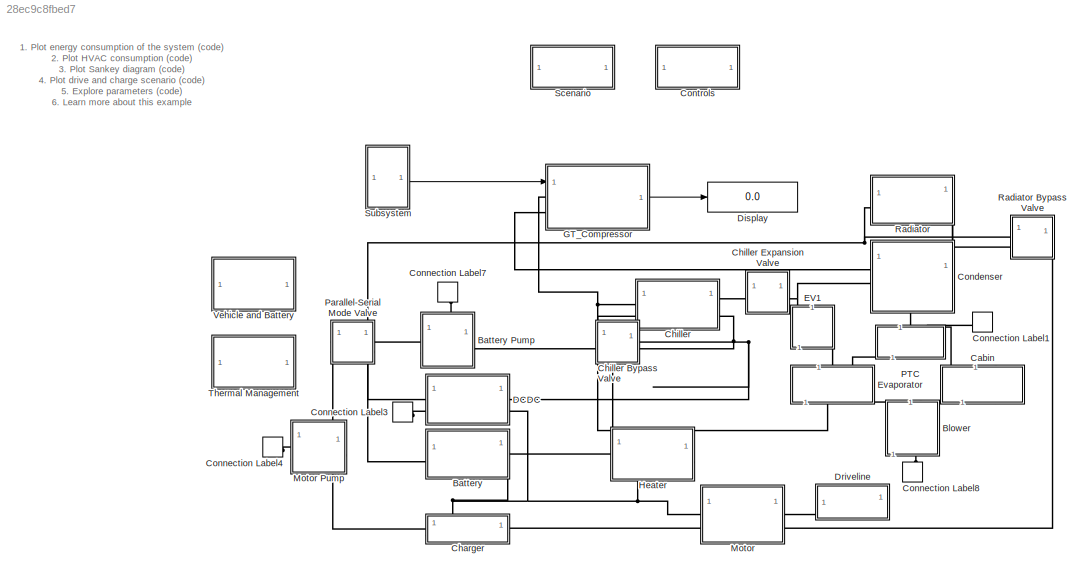
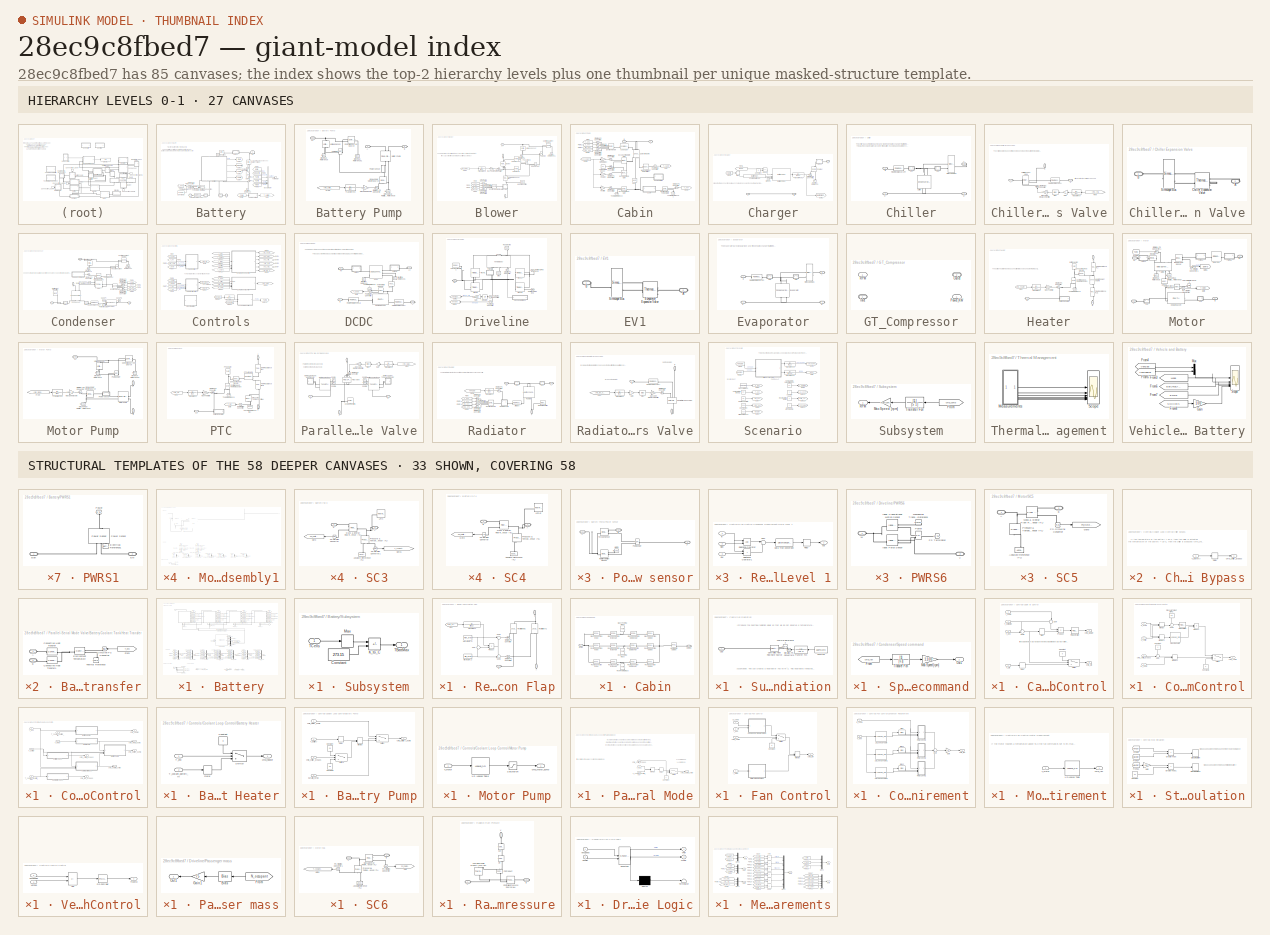
[diagram: thumbnail index - top-2 hierarchy levels (27 canvases) + 33 structural-template representatives of the remaining 58 canvases]
MODEL slx_28ec9c8fbed7
KIND model
CONFIG AbsTol = 1e-3
CONFIG EnableMultiTasking = off
CONFIG FixedStep = auto
CONFIG MaxStep = 5
CONFIG MinStep = auto
CONFIG RelTol = 1e-3
CONFIG SampleTimeConstraint = Unconstrained
CONFIG SolverName = daessc
CONFIG StartTime = 0.0
CONFIG StopTime = Inf
WORKSPACE source: external: MATLAB File  (data not in archive)
BLOCK [SubSystem] Battery
  NameLocation = top
  PortSchema = {"entries":[{"content":{"sides":[{"content":{"connectorIds":["LConn1"]},"type":"ConnectorPlacement.EquallySpacedRectSide","uuid":"d0257152-2060-4b54-a9f0-7a8eb6934377"},{"content":{"connectorIds":["RConn1"],"side":"RIGHT"},"type":"ConnectorPlacement.EquallySpacedRectSide","uuid":"d9958794-9262-4b97-905c-a420312c67f4"},{"content":{"side":"TOP"},"type":"ConnectorPlacement.EquallySpacedRectSide","uui...<+379ch>
  VariantControl = Lump
BLOCK [SubSystem] Battery Pump
  PortSchema = {"entries":[{"content":{"sides":[{"content":{"connectorIds":["LConn1"]},"type":"ConnectorPlacement.EquallySpacedRectSide","uuid":"6f564afe-534c-4fb7-ab3d-e7a67ca04849"},{"content":{"connectorIds":["RConn1"],"side":"RIGHT"},"type":"ConnectorPlacement.EquallySpacedRectSide","uuid":"159a21ca-d93c-4f03-9d58-49b012672b20"},{"content":{"connectorIds":["LConn2"],"side":"TOP"},"type":"ConnectorPlacement.E...<+253ch>
  Tag = PublishSubsystem
BLOCK [PMIOPort] Battery Pump/A
  Side = Left
BLOCK [PMIOPort] Battery Pump/B
  Port = 3
  Side = Right
BLOCK [Reference] Battery Pump/Battery Pump  REF=SimscapeFluids_lib/Thermal Liquid/Pumps & Motors/Fixed-Displacement
Pump (TL)
  NameLocation = right
  SourceBlock = SimscapeFluids_lib/Thermal Liquid/Pumps & Motors/Fixed-Displacement\nPump (TL)
  SourceType = Fixed-Displacement\nPump (TL)
BLOCK [Reference] Battery Pump/Controlled Current Source  REF=fl_lib/Electrical/Electrical Sources/Controlled Current
Source
  SourceBlock = fl_lib/Electrical/Electrical Sources/Controlled Current\nSource
  SourceType = Controlled Current\nSource
BLOCK [Reference] Battery Pump/Electrical Reference  REF=fl_lib/Electrical/Electrical Elements/Electrical Reference
  NameLocation = right
  SourceBlock = fl_lib/Electrical/Electrical Elements/Electrical Reference
  SourceType = Electrical Reference
BLOCK [Reference] Battery Pump/Electrical Reference1  REF=fl_lib/Electrical/Electrical Elements/Electrical Reference
  NameLocation = right
  SourceBlock = fl_lib/Electrical/Electrical Elements/Electrical Reference
  SourceType = Electrical Reference
BLOCK [From] Battery Pump/From
  GotoTag = cmd_battery_pump
  TagVisibility = global
BLOCK [Reference] Battery Pump/Ideal Angular Velocity Source  REF=fl_lib/Mechanical/Mechanical Sources/Ideal Angular
Velocity Source
  NameLocation = left
  SourceBlock = fl_lib/Mechanical/Mechanical Sources/Ideal Angular\nVelocity Source
  SourceType = Ideal Angular\nVelocity Source
BLOCK [PMIOPort] Battery Pump/LV
  Port = 2
  Side = Left
BLOCK [Gain] Battery Pump/Max Speed [rpm]
  Gain = pump_speed_max
BLOCK [Reference] Battery Pump/Mechanical Rotational Reference  REF=fl_lib/Mechanical/Rotational Elements/Mechanical
Rotational Reference
  NameLocation = right
  SourceBlock = fl_lib/Mechanical/Rotational Elements/Mechanical\nRotational Reference
  SourceType = Mechanical\nRotational Reference
BLOCK [Reference] Battery Pump/PS Divide  REF=fl_lib/Physical Signals/Functions/PS Divide
  SourceBlock = fl_lib/Physical Signals/Functions/PS Divide
  SourceType = PS Divide
BLOCK [SubSystem] Battery Pump/Power sensor
  NameLocation = left
  PortSchema = {"entries":[{"content":{"sides":[{"content":{"connectorIds":["LConn1"]},"type":"ConnectorPlacement.EquallySpacedRectSide","uuid":"14aacb84-4d2c-4fe3-9667-966fc9affdc2"},{"content":{"connectorIds":["RConn1"],"side":"RIGHT"},"type":"ConnectorPlacement.EquallySpacedRectSide","uuid":"5f04cc75-bf75-44ff-ad13-d2b18990cf19"},{"content":{"connectorIds":["LConn2"],"side":"TOP"},"type":"ConnectorPlacement.E...<+253ch>  <repeated x3 — deduplicated; at blocks: Power sensor>
BLOCK [PMIOPort] Battery Pump/Power sensor/A
  Side = Left
BLOCK [PMIOPort] Battery Pump/Power sensor/B
  Port = 3
  Side = Right
BLOCK [Reference] Battery Pump/Power sensor/MRR3  REF=fl_lib/Mechanical/Rotational Elements/Mechanical
Rotational Reference
  NameLocation = top
  SourceBlock = fl_lib/Mechanical/Rotational Elements/Mechanical\nRotational Reference
  SourceType = Mechanical\nRotational Reference
BLOCK [PMIOPort] Battery Pump/Power sensor/P
  NameLocation = top
  Port = 2
  Side = Left
BLOCK [Reference] Battery Pump/Power sensor/Pump power  REF=fl_lib/Physical Signals/Functions/PS Product
  SourceBlock = fl_lib/Physical Signals/Functions/PS Product
  SourceType = PS Product
BLOCK [Reference] Battery Pump/Power sensor/Rotational Motion Sensor  REF=fl_lib/Mechanical/Mechanical Sensors/Ideal Rotational
Motion Sensor
  SourceBlock = fl_lib/Mechanical/Mechanical Sensors/Ideal Rotational\nMotion Sensor
  SourceType = Ideal Rotational\nMotion Sensor
BLOCK [Reference] Battery Pump/Power sensor/Torque Sensor  REF=fl_lib/Mechanical/Mechanical Sensors/Ideal Torque Sensor
  SourceBlock = fl_lib/Mechanical/Mechanical Sensors/Ideal Torque Sensor
  SourceType = Ideal Torque Sensor
BLOCK [Reference] Battery Pump/Simulink-PS Converter  REF=nesl_utility/Simulink-PS
Converter
  SourceBlock = nesl_utility/Simulink-PS\nConverter
  SourceType = Simulink-PS\nConverter
BLOCK [TransferFcn] Battery Pump/Transfer Fcn
  Denominator = [5 1]
BLOCK [Reference] Battery Pump/Voltage Sensor  REF=fl_lib/Electrical/Electrical Sensors/Voltage Sensor
  NameLocation = left
  SourceBlock = fl_lib/Electrical/Electrical Sensors/Voltage Sensor
  SourceType = Voltage Sensor
BLOCK [PMIOPort] Battery/A
  Port = 2
  Side = Right
BLOCK [PMIOPort] Battery/B
  Side = Left
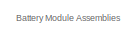
[diagram: Battery/Battery - part 1/6, top left region]
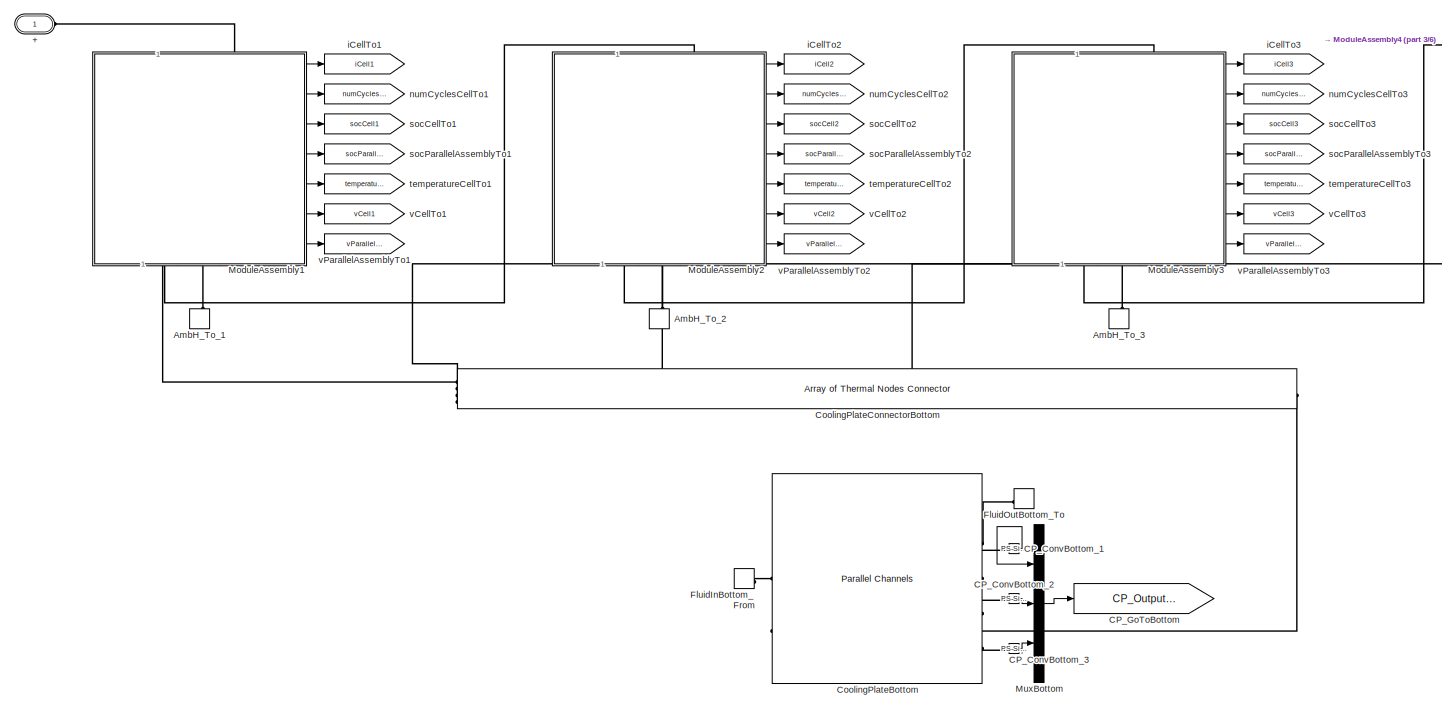
[diagram: Battery/Battery - part 2/6, central region]
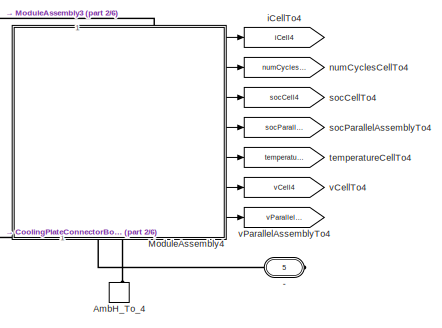
[diagram: Battery/Battery - part 3/6, top right region]
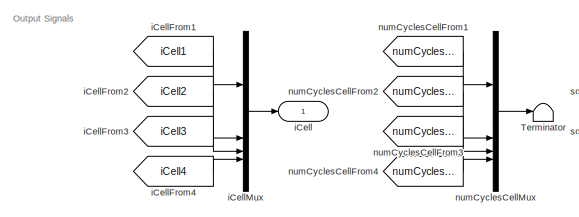
[diagram: Battery/Battery - part 4/6, bottom left region]
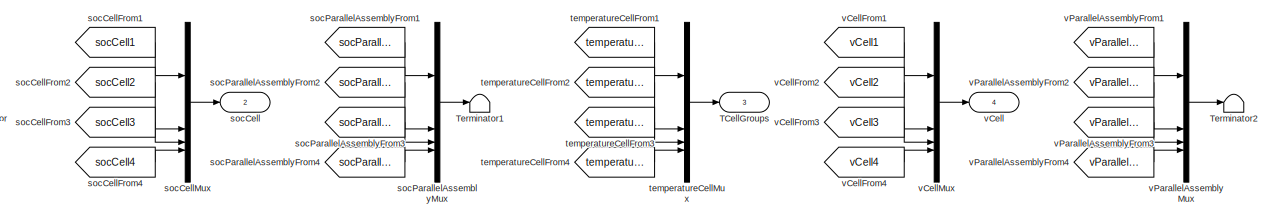
[diagram: Battery/Battery - part 5/6, bottom center region]
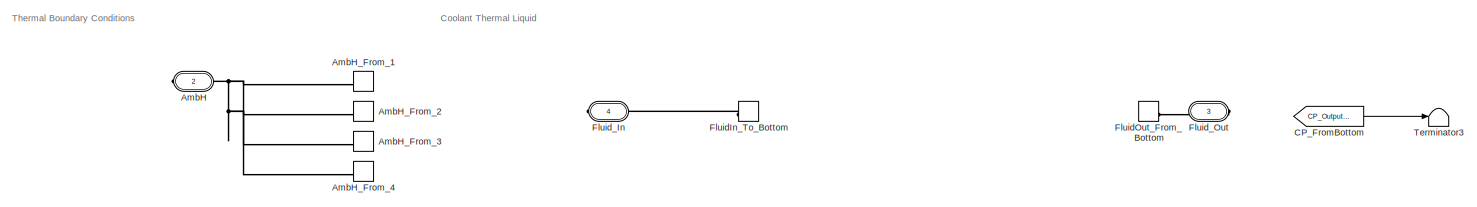
[diagram: Battery/Battery - part 6/6, bottom center region]
BLOCK [SubSystem] Battery/Battery
  CopyFcn = battery_builder_rtmsupport('copyfcn',gcbh);
  LoadFcn = battery_builder_rtmsupport('loadfcn',gcbh);
  PortSchema = {"entries":[{"content":{"sides":[{"content":{"connectorIds":["LConn1"]},"type":"ConnectorPlacement.EquallySpacedRectSide","uuid":"8a0155c1-3cd1-4aec-9003-10a53aa2331a"},{"content":{"connectorIds":["RConn1","RConn2","RConn3","RConn4"],"side":"RIGHT"},"type":"ConnectorPlacement.EquallySpacedRectSide","uuid":"2983d915-2e05-41ac-b04b-c24aafae32ed"},{"content":{"side":"TOP"},"type":"ConnectorPlacement....<+425ch>
  PreCopyFcn = battery_builder_rtmsupport('precopyfcn',gcbh);
  PreDeleteFcn = battery_builder_rtmsupport('predeletefcn',gcbh);
BLOCK [Reference] Battery/Battery Convection Outside  REF=fl_lib/Thermal/Thermal Elements/Convective Heat
Transfer
  SourceBlock = fl_lib/Thermal/Thermal Elements/Convective Heat\nTransfer
  SourceType = Convective Heat\nTransfer
BLOCK [Reference] Battery/Battery current  REF=fl_lib/Electrical/Electrical Sensors/Current Sensor
  SourceBlock = fl_lib/Electrical/Electrical Sensors/Current Sensor
  SourceType = Current Sensor
BLOCK [Reference] Battery/Battery voltage  REF=fl_lib/Electrical/Electrical Sensors/Voltage Sensor
  NameLocation = right
  SourceBlock = fl_lib/Electrical/Electrical Sensors/Voltage Sensor
  SourceType = Voltage Sensor
BLOCK [PMIOPort] Battery/Battery/+
  Side = Left
BLOCK [PMIOPort] Battery/Battery/-
  Port = 5
  Side = Right
BLOCK [PMIOPort] Battery/Battery/AmbH
  ConnectionType = Connection: foundation.thermal.thermal
  Port = 2
  Side = Right
BLOCK [ConnectionLabel] Battery/Battery/AmbH_From_1
  Label = ambH_1
BLOCK [ConnectionLabel] Battery/Battery/AmbH_From_2
  Label = ambH_2
BLOCK [ConnectionLabel] Battery/Battery/AmbH_From_3
  Label = ambH_3
BLOCK [ConnectionLabel] Battery/Battery/AmbH_From_4
  Label = ambH_4
BLOCK [ConnectionLabel] Battery/Battery/AmbH_To_1
  Label = ambH_1
  NameLocation = right
BLOCK [ConnectionLabel] Battery/Battery/AmbH_To_2
  Label = ambH_2
  NameLocation = right
BLOCK [ConnectionLabel] Battery/Battery/AmbH_To_3
  Label = ambH_3
  NameLocation = right
BLOCK [ConnectionLabel] Battery/Battery/AmbH_To_4
  Label = ambH_4
  NameLocation = right
BLOCK [Reference] Battery/Battery/CP_ConvBottom_1  REF=nesl_utility/PS-Simulink
Converter
  SourceBlock = nesl_utility/PS-Simulink\nConverter
  SourceType = PS-Simulink\nConverter
BLOCK [Reference] Battery/Battery/CP_ConvBottom_2  REF=nesl_utility/PS-Simulink
Converter
  SourceBlock = nesl_utility/PS-Simulink\nConverter
  SourceType = PS-Simulink\nConverter
BLOCK [Reference] Battery/Battery/CP_ConvBottom_3  REF=nesl_utility/PS-Simulink
Converter
  SourceBlock = nesl_utility/PS-Simulink\nConverter
  SourceType = PS-Simulink\nConverter
BLOCK [From] Battery/Battery/CP_FromBottom
  GotoTag = CP_OutputsBottom
BLOCK [Goto] Battery/Battery/CP_GoToBottom
  GotoTag = CP_OutputsBottom
BLOCK [Reference] Battery/Battery/CoolingPlateBottom  REF=batt_lib/Thermal/Parallel Channels
  SourceBlock = batt_lib/Thermal/Parallel Channels
  SourceType = Parallel Channels
BLOCK [Reference] Battery/Battery/CoolingPlateConnectorBottom  REF=batt_lib/Thermal/Array of Thermal
Nodes Connector
  SourceBlock = batt_lib/Thermal/Array of Thermal\nNodes Connector
  SourceType = Array of Thermal\nNodes Connector
BLOCK [ConnectionLabel] Battery/Battery/FluidInBottom_From
  Label = FluidIn_To_Bottom
BLOCK [ConnectionLabel] Battery/Battery/FluidIn_To_Bottom
  Label = FluidIn_To_Bottom
BLOCK [ConnectionLabel] Battery/Battery/FluidOutBottom_To
  Label = FluidOut_From_Bottom
BLOCK [ConnectionLabel] Battery/Battery/FluidOut_From_Bottom
  Label = FluidOut_From_Bottom
BLOCK [PMIOPort] Battery/Battery/Fluid_In
  ConnectionType = Connection: foundation.thermal_liquid.thermal_liquid
  Port = 4
  Side = Right
BLOCK [PMIOPort] Battery/Battery/Fluid_Out
  ConnectionType = Connection: foundation.thermal_liquid.thermal_liquid
  Port = 3
  Side = Right
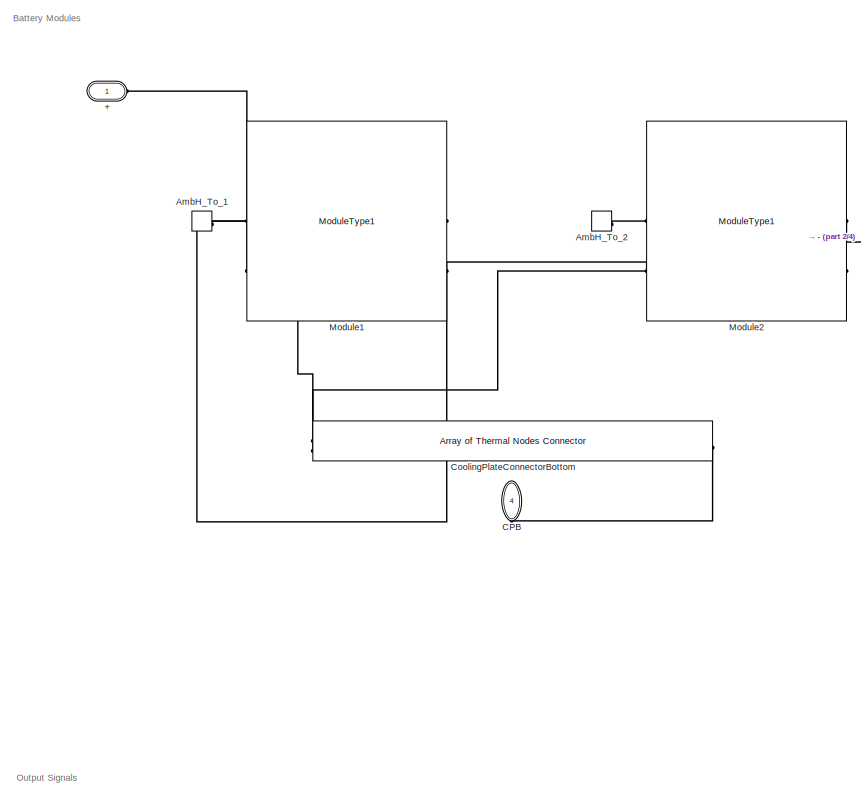
[diagram: Battery/Battery/ModuleAssembly1 - part 1/4, top left region]
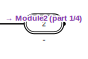
[diagram: Battery/Battery/ModuleAssembly1 - part 2/4, top right region]
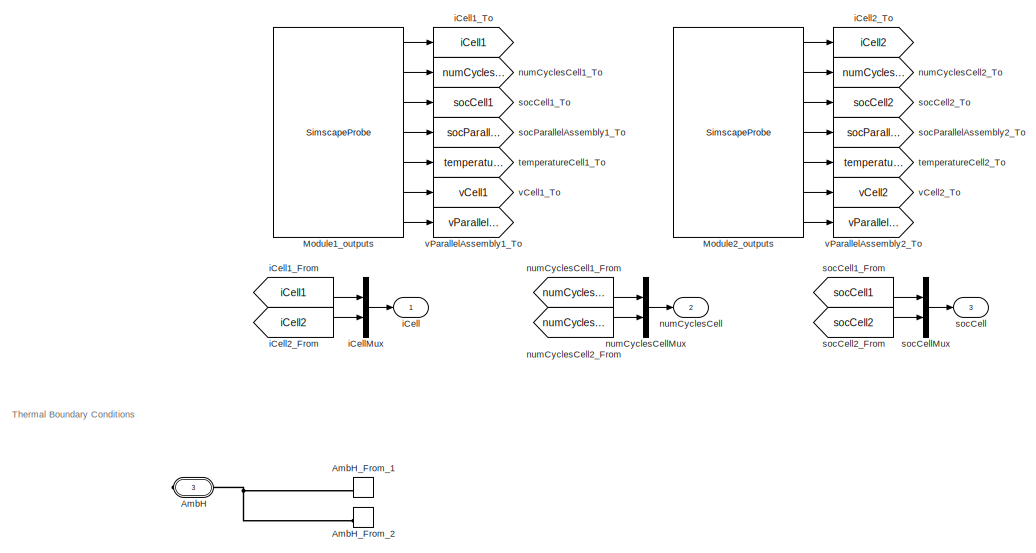
[diagram: Battery/Battery/ModuleAssembly1 - part 3/4, bottom left region]
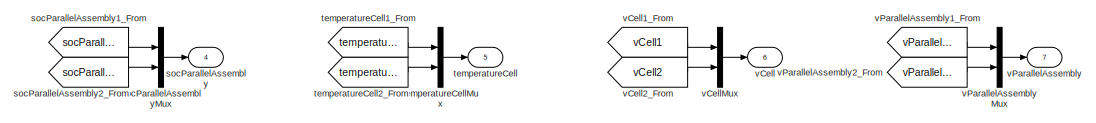
[diagram: Battery/Battery/ModuleAssembly1 - part 4/4, bottom center region]
BLOCK [SubSystem] Battery/Battery/ModuleAssembly1
  CopyFcn = battery_builder_rtmsupport('copyfcn',gcbh);
  LoadFcn = battery_builder_rtmsupport('loadfcn',gcbh);
  PortSchema = {"entries":[{"content":{"sides":[{"content":{"connectorIds":["LConn1"]},"type":"ConnectorPlacement.EquallySpacedRectSide","uuid":"45d8946d-9657-45c6-91fd-32340c22d20f"},{"content":{"connectorIds":["RConn1","RConn2","RConn3"],"side":"RIGHT"},"type":"ConnectorPlacement.EquallySpacedRectSide","uuid":"88578276-0691-4cb8-9ec5-7c9fd9430684"},{"content":{"side":"TOP"},"type":"ConnectorPlacement.EquallySp...<+437ch>  <repeated x4 — deduplicated; at blocks: ModuleAssembly1, ModuleAssembly2, ModuleAssembly3, ModuleAssembly4>
  PreCopyFcn = battery_builder_rtmsupport('precopyfcn',gcbh);
  PreDeleteFcn = battery_builder_rtmsupport('predeletefcn',gcbh);
BLOCK [PMIOPort] Battery/Battery/ModuleAssembly1/+
  Side = Left
BLOCK [PMIOPort] Battery/Battery/ModuleAssembly1/-
  Port = 2
  Side = Right
BLOCK [PMIOPort] Battery/Battery/ModuleAssembly1/AmbH
  ConnectionType = Connection: foundation.thermal.thermal
  Port = 3
  Side = Right
BLOCK [ConnectionLabel] Battery/Battery/ModuleAssembly1/AmbH_From_1
  Label = ambH_1
BLOCK [ConnectionLabel] Battery/Battery/ModuleAssembly1/AmbH_From_2
  Label = ambH_2
BLOCK [ConnectionLabel] Battery/Battery/ModuleAssembly1/AmbH_To_1
  Label = ambH_1
BLOCK [ConnectionLabel] Battery/Battery/ModuleAssembly1/AmbH_To_2
  Label = ambH_2
BLOCK [PMIOPort] Battery/Battery/ModuleAssembly1/CPB
  ConnectionType = Connection: foundation.thermal.thermal
  Port = 4
  Side = Right
BLOCK [Reference] Battery/Battery/ModuleAssembly1/CoolingPlateConnectorBottom  REF=batt_lib/Thermal/Array of Thermal
Nodes Connector
  SourceBlock = batt_lib/Thermal/Array of Thermal\nNodes Connector
  SourceType = Array of Thermal\nNodes Connector
BLOCK [Reference] Battery/Battery/ModuleAssembly1/Module1  REF=cylPackParChnlsLumped_lib/Modules/ModuleType1
  SourceBlock = cylPackParChnlsLumped_lib/Modules/ModuleType1
  SourceType = ModuleType1
BLOCK [SimscapeProbe] Battery/Battery/ModuleAssembly1/Module1_outputs
  BoundBlock = 7705
  Variables = {iCell, numCyclesCell, socCell, socParallelAssembly, temperatureCell, vCell, vParallelAssembly}
BLOCK [Reference] Battery/Battery/ModuleAssembly1/Module2  REF=cylPackParChnlsLumped_lib/Modules/ModuleType1
  SourceBlock = cylPackParChnlsLumped_lib/Modules/ModuleType1
  SourceType = ModuleType1
BLOCK [SimscapeProbe] Battery/Battery/ModuleAssembly1/Module2_outputs
  BoundBlock = 7707
  Variables = {iCell, numCyclesCell, socCell, socParallelAssembly, temperatureCell, vCell, vParallelAssembly}
BLOCK [Outport] Battery/Battery/ModuleAssembly1/iCell
BLOCK [From] Battery/Battery/ModuleAssembly1/iCell1_From
  GotoTag = iCell1
BLOCK [Goto] Battery/Battery/ModuleAssembly1/iCell1_To
  GotoTag = iCell1
BLOCK [From] Battery/Battery/ModuleAssembly1/iCell2_From
  GotoTag = iCell2
BLOCK [Goto] Battery/Battery/ModuleAssembly1/iCell2_To
  GotoTag = iCell2
BLOCK [Mux] Battery/Battery/ModuleAssembly1/iCellMux
  DisplayOption = bar
  Inputs = 2
BLOCK [Outport] Battery/Battery/ModuleAssembly1/numCyclesCell
  Port = 2
BLOCK [From] Battery/Battery/ModuleAssembly1/numCyclesCell1_From
  GotoTag = numCyclesCell1
BLOCK [Goto] Battery/Battery/ModuleAssembly1/numCyclesCell1_To
  GotoTag = numCyclesCell1
BLOCK [From] Battery/Battery/ModuleAssembly1/numCyclesCell2_From
  GotoTag = numCyclesCell2
BLOCK [Goto] Battery/Battery/ModuleAssembly1/numCyclesCell2_To
  GotoTag = numCyclesCell2
BLOCK [Mux] Battery/Battery/ModuleAssembly1/numCyclesCellMux
  DisplayOption = bar
  Inputs = 2
BLOCK [Outport] Battery/Battery/ModuleAssembly1/socCell
  Port = 3
BLOCK [From] Battery/Battery/ModuleAssembly1/socCell1_From
  GotoTag = socCell1
BLOCK [Goto] Battery/Battery/ModuleAssembly1/socCell1_To
  GotoTag = socCell1
BLOCK [From] Battery/Battery/ModuleAssembly1/socCell2_From
  GotoTag = socCell2
BLOCK [Goto] Battery/Battery/ModuleAssembly1/socCell2_To
  GotoTag = socCell2
BLOCK [Mux] Battery/Battery/ModuleAssembly1/socCellMux
  DisplayOption = bar
  Inputs = 2
BLOCK [Outport] Battery/Battery/ModuleAssembly1/socParallelAssembly
  Port = 4
BLOCK [From] Battery/Battery/ModuleAssembly1/socParallelAssembly1_From
  GotoTag = socParallelAssembly1
BLOCK [Goto] Battery/Battery/ModuleAssembly1/socParallelAssembly1_To
  GotoTag = socParallelAssembly1
BLOCK [From] Battery/Battery/ModuleAssembly1/socParallelAssembly2_From
  GotoTag = socParallelAssembly2
BLOCK [Goto] Battery/Battery/ModuleAssembly1/socParallelAssembly2_To
  GotoTag = socParallelAssembly2
BLOCK [Mux] Battery/Battery/ModuleAssembly1/socParallelAssemblyMux
  DisplayOption = bar
  Inputs = 2
BLOCK [Outport] Battery/Battery/ModuleAssembly1/temperatureCell
  Port = 5
BLOCK [From] Battery/Battery/ModuleAssembly1/temperatureCell1_From
  GotoTag = temperatureCell1
BLOCK [Goto] Battery/Battery/ModuleAssembly1/temperatureCell1_To
  GotoTag = temperatureCell1
BLOCK [From] Battery/Battery/ModuleAssembly1/temperatureCell2_From
  GotoTag = temperatureCell2
BLOCK [Goto] Battery/Battery/ModuleAssembly1/temperatureCell2_To
  GotoTag = temperatureCell2
BLOCK [Mux] Battery/Battery/ModuleAssembly1/temperatureCellMux
  DisplayOption = bar
  Inputs = 2
BLOCK [Outport] Battery/Battery/ModuleAssembly1/vCell
  Port = 6
BLOCK [From] Battery/Battery/ModuleAssembly1/vCell1_From
  GotoTag = vCell1
BLOCK [Goto] Battery/Battery/ModuleAssembly1/vCell1_To
  GotoTag = vCell1
BLOCK [From] Battery/Battery/ModuleAssembly1/vCell2_From
  GotoTag = vCell2
BLOCK [Goto] Battery/Battery/ModuleAssembly1/vCell2_To
  GotoTag = vCell2
BLOCK [Mux] Battery/Battery/ModuleAssembly1/vCellMux
  DisplayOption = bar
  Inputs = 2
BLOCK [Outport] Battery/Battery/ModuleAssembly1/vParallelAssembly
  Port = 7
BLOCK [From] Battery/Battery/ModuleAssembly1/vParallelAssembly1_From
  GotoTag = vParallelAssembly1
BLOCK [Goto] Battery/Battery/ModuleAssembly1/vParallelAssembly1_To
  GotoTag = vParallelAssembly1
BLOCK [From] Battery/Battery/ModuleAssembly1/vParallelAssembly2_From
  GotoTag = vParallelAssembly2
BLOCK [Goto] Battery/Battery/ModuleAssembly1/vParallelAssembly2_To
  GotoTag = vParallelAssembly2
BLOCK [Mux] Battery/Battery/ModuleAssembly1/vParallelAssemblyMux
  DisplayOption = bar
  Inputs = 2
BLOCK [SubSystem] Battery/Battery/ModuleAssembly2
  CopyFcn = battery_builder_rtmsupport('copyfcn',gcbh);
  LoadFcn = battery_builder_rtmsupport('loadfcn',gcbh);
  PreCopyFcn = battery_builder_rtmsupport('precopyfcn',gcbh);
  PreDeleteFcn = battery_builder_rtmsupport('predeletefcn',gcbh);
BLOCK [PMIOPort] Battery/Battery/ModuleAssembly2/+
  Side = Left
BLOCK [PMIOPort] Battery/Battery/ModuleAssembly2/-
  Port = 2
  Side = Right
BLOCK [PMIOPort] Battery/Battery/ModuleAssembly2/AmbH
  ConnectionType = Connection: foundation.thermal.thermal
  Port = 3
  Side = Right
BLOCK [ConnectionLabel] Battery/Battery/ModuleAssembly2/AmbH_From_1
  Label = ambH_1
BLOCK [ConnectionLabel] Battery/Battery/ModuleAssembly2/AmbH_From_2
  Label = ambH_2
BLOCK [ConnectionLabel] Battery/Battery/ModuleAssembly2/AmbH_To_1
  Label = ambH_1
BLOCK [ConnectionLabel] Battery/Battery/ModuleAssembly2/AmbH_To_2
  Label = ambH_2
BLOCK [PMIOPort] Battery/Battery/ModuleAssembly2/CPB
  ConnectionType = Connection: foundation.thermal.thermal
  Port = 4
  Side = Right
BLOCK [Reference] Battery/Battery/ModuleAssembly2/CoolingPlateConnectorBottom  REF=batt_lib/Thermal/Array of Thermal
Nodes Connector
  SourceBlock = batt_lib/Thermal/Array of Thermal\nNodes Connector
  SourceType = Array of Thermal\nNodes Connector
BLOCK [Reference] Battery/Battery/ModuleAssembly2/Module1  REF=cylPackParChnlsLumped_lib/Modules/ModuleType1
  SourceBlock = cylPackParChnlsLumped_lib/Modules/ModuleType1
  SourceType = ModuleType1
BLOCK [SimscapeProbe] Battery/Battery/ModuleAssembly2/Module1_outputs
  BoundBlock = 7764
  Variables = {iCell, numCyclesCell, socCell, socParallelAssembly, temperatureCell, vCell, vParallelAssembly}
BLOCK [Reference] Battery/Battery/ModuleAssembly2/Module2  REF=cylPackParChnlsLumped_lib/Modules/ModuleType1
  SourceBlock = cylPackParChnlsLumped_lib/Modules/ModuleType1
  SourceType = ModuleType1
BLOCK [SimscapeProbe] Battery/Battery/ModuleAssembly2/Module2_outputs
  BoundBlock = 7766
  Variables = {iCell, numCyclesCell, socCell, socParallelAssembly, temperatureCell, vCell, vParallelAssembly}
BLOCK [Outport] Battery/Battery/ModuleAssembly2/iCell
BLOCK [From] Battery/Battery/ModuleAssembly2/iCell1_From
  GotoTag = iCell1
BLOCK [Goto] Battery/Battery/ModuleAssembly2/iCell1_To
  GotoTag = iCell1
BLOCK [From] Battery/Battery/ModuleAssembly2/iCell2_From
  GotoTag = iCell2
BLOCK [Goto] Battery/Battery/ModuleAssembly2/iCell2_To
  GotoTag = iCell2
BLOCK [Mux] Battery/Battery/ModuleAssembly2/iCellMux
  DisplayOption = bar
  Inputs = 2
BLOCK [Outport] Battery/Battery/ModuleAssembly2/numCyclesCell
  Port = 2
BLOCK [From] Battery/Battery/ModuleAssembly2/numCyclesCell1_From
  GotoTag = numCyclesCell1
BLOCK [Goto] Battery/Battery/ModuleAssembly2/numCyclesCell1_To
  GotoTag = numCyclesCell1
BLOCK [From] Battery/Battery/ModuleAssembly2/numCyclesCell2_From
  GotoTag = numCyclesCell2
BLOCK [Goto] Battery/Battery/ModuleAssembly2/numCyclesCell2_To
  GotoTag = numCyclesCell2
BLOCK [Mux] Battery/Battery/ModuleAssembly2/numCyclesCellMux
  DisplayOption = bar
  Inputs = 2
BLOCK [Outport] Battery/Battery/ModuleAssembly2/socCell
  Port = 3
BLOCK [From] Battery/Battery/ModuleAssembly2/socCell1_From
  GotoTag = socCell1
BLOCK [Goto] Battery/Battery/ModuleAssembly2/socCell1_To
  GotoTag = socCell1
BLOCK [From] Battery/Battery/ModuleAssembly2/socCell2_From
  GotoTag = socCell2
BLOCK [Goto] Battery/Battery/ModuleAssembly2/socCell2_To
  GotoTag = socCell2
BLOCK [Mux] Battery/Battery/ModuleAssembly2/socCellMux
  DisplayOption = bar
  Inputs = 2
BLOCK [Outport] Battery/Battery/ModuleAssembly2/socParallelAssembly
  Port = 4
BLOCK [From] Battery/Battery/ModuleAssembly2/socParallelAssembly1_From
  GotoTag = socParallelAssembly1
BLOCK [Goto] Battery/Battery/ModuleAssembly2/socParallelAssembly1_To
  GotoTag = socParallelAssembly1
BLOCK [From] Battery/Battery/ModuleAssembly2/socParallelAssembly2_From
  GotoTag = socParallelAssembly2
BLOCK [Goto] Battery/Battery/ModuleAssembly2/socParallelAssembly2_To
  GotoTag = socParallelAssembly2
BLOCK [Mux] Battery/Battery/ModuleAssembly2/socParallelAssemblyMux
  DisplayOption = bar
  Inputs = 2
BLOCK [Outport] Battery/Battery/ModuleAssembly2/temperatureCell
  Port = 5
BLOCK [From] Battery/Battery/ModuleAssembly2/temperatureCell1_From
  GotoTag = temperatureCell1
BLOCK [Goto] Battery/Battery/ModuleAssembly2/temperatureCell1_To
  GotoTag = temperatureCell1
BLOCK [From] Battery/Battery/ModuleAssembly2/temperatureCell2_From
  GotoTag = temperatureCell2
BLOCK [Goto] Battery/Battery/ModuleAssembly2/temperatureCell2_To
  GotoTag = temperatureCell2
BLOCK [Mux] Battery/Battery/ModuleAssembly2/temperatureCellMux
  DisplayOption = bar
  Inputs = 2
BLOCK [Outport] Battery/Battery/ModuleAssembly2/vCell
  Port = 6
BLOCK [From] Battery/Battery/ModuleAssembly2/vCell1_From
  GotoTag = vCell1
BLOCK [Goto] Battery/Battery/ModuleAssembly2/vCell1_To
  GotoTag = vCell1
BLOCK [From] Battery/Battery/ModuleAssembly2/vCell2_From
  GotoTag = vCell2
BLOCK [Goto] Battery/Battery/ModuleAssembly2/vCell2_To
  GotoTag = vCell2
BLOCK [Mux] Battery/Battery/ModuleAssembly2/vCellMux
  DisplayOption = bar
  Inputs = 2
BLOCK [Outport] Battery/Battery/ModuleAssembly2/vParallelAssembly
  Port = 7
BLOCK [From] Battery/Battery/ModuleAssembly2/vParallelAssembly1_From
  GotoTag = vParallelAssembly1
BLOCK [Goto] Battery/Battery/ModuleAssembly2/vParallelAssembly1_To
  GotoTag = vParallelAssembly1
BLOCK [From] Battery/Battery/ModuleAssembly2/vParallelAssembly2_From
  GotoTag = vParallelAssembly2
BLOCK [Goto] Battery/Battery/ModuleAssembly2/vParallelAssembly2_To
  GotoTag = vParallelAssembly2
BLOCK [Mux] Battery/Battery/ModuleAssembly2/vParallelAssemblyMux
  DisplayOption = bar
  Inputs = 2
BLOCK [SubSystem] Battery/Battery/ModuleAssembly3
  CopyFcn = battery_builder_rtmsupport('copyfcn',gcbh);
  LoadFcn = battery_builder_rtmsupport('loadfcn',gcbh);
  PreCopyFcn = battery_builder_rtmsupport('precopyfcn',gcbh);
  PreDeleteFcn = battery_builder_rtmsupport('predeletefcn',gcbh);
BLOCK [PMIOPort] Battery/Battery/ModuleAssembly3/+
  Side = Left
BLOCK [PMIOPort] Battery/Battery/ModuleAssembly3/-
  Port = 2
  Side = Right
BLOCK [PMIOPort] Battery/Battery/ModuleAssembly3/AmbH
  ConnectionType = Connection: foundation.thermal.thermal
  Port = 3
  Side = Right
BLOCK [ConnectionLabel] Battery/Battery/ModuleAssembly3/AmbH_From_1
  Label = ambH_1
BLOCK [ConnectionLabel] Battery/Battery/ModuleAssembly3/AmbH_From_2
  Label = ambH_2
BLOCK [ConnectionLabel] Battery/Battery/ModuleAssembly3/AmbH_To_1
  Label = ambH_1
BLOCK [ConnectionLabel] Battery/Battery/ModuleAssembly3/AmbH_To_2
  Label = ambH_2
BLOCK [PMIOPort] Battery/Battery/ModuleAssembly3/CPB
  ConnectionType = Connection: foundation.thermal.thermal
  Port = 4
  Side = Right
BLOCK [Reference] Battery/Battery/ModuleAssembly3/CoolingPlateConnectorBottom  REF=batt_lib/Thermal/Array of Thermal
Nodes Connector
  SourceBlock = batt_lib/Thermal/Array of Thermal\nNodes Connector
  SourceType = Array of Thermal\nNodes Connector
BLOCK [Reference] Battery/Battery/ModuleAssembly3/Module1  REF=cylPackParChnlsLumped_lib/Modules/ModuleType1
  SourceBlock = cylPackParChnlsLumped_lib/Modules/ModuleType1
  SourceType = ModuleType1
BLOCK [SimscapeProbe] Battery/Battery/ModuleAssembly3/Module1_outputs
  BoundBlock = 7823
  Variables = {iCell, numCyclesCell, socCell, socParallelAssembly, temperatureCell, vCell, vParallelAssembly}
BLOCK [Reference] Battery/Battery/ModuleAssembly3/Module2  REF=cylPackParChnlsLumped_lib/Modules/ModuleType1
  SourceBlock = cylPackParChnlsLumped_lib/Modules/ModuleType1
  SourceType = ModuleType1
BLOCK [SimscapeProbe] Battery/Battery/ModuleAssembly3/Module2_outputs
  BoundBlock = 7825
  Variables = {iCell, numCyclesCell, socCell, socParallelAssembly, temperatureCell, vCell, vParallelAssembly}
BLOCK [Outport] Battery/Battery/ModuleAssembly3/iCell
BLOCK [From] Battery/Battery/ModuleAssembly3/iCell1_From
  GotoTag = iCell1
BLOCK [Goto] Battery/Battery/ModuleAssembly3/iCell1_To
  GotoTag = iCell1
BLOCK [From] Battery/Battery/ModuleAssembly3/iCell2_From
  GotoTag = iCell2
BLOCK [Goto] Battery/Battery/ModuleAssembly3/iCell2_To
  GotoTag = iCell2
BLOCK [Mux] Battery/Battery/ModuleAssembly3/iCellMux
  DisplayOption = bar
  Inputs = 2
BLOCK [Outport] Battery/Battery/ModuleAssembly3/numCyclesCell
  Port = 2
BLOCK [From] Battery/Battery/ModuleAssembly3/numCyclesCell1_From
  GotoTag = numCyclesCell1
BLOCK [Goto] Battery/Battery/ModuleAssembly3/numCyclesCell1_To
  GotoTag = numCyclesCell1
BLOCK [From] Battery/Battery/ModuleAssembly3/numCyclesCell2_From
  GotoTag = numCyclesCell2
BLOCK [Goto] Battery/Battery/ModuleAssembly3/numCyclesCell2_To
  GotoTag = numCyclesCell2
BLOCK [Mux] Battery/Battery/ModuleAssembly3/numCyclesCellMux
  DisplayOption = bar
  Inputs = 2
BLOCK [Outport] Battery/Battery/ModuleAssembly3/socCell
  Port = 3
BLOCK [From] Battery/Battery/ModuleAssembly3/socCell1_From
  GotoTag = socCell1
BLOCK [Goto] Battery/Battery/ModuleAssembly3/socCell1_To
  GotoTag = socCell1
BLOCK [From] Battery/Battery/ModuleAssembly3/socCell2_From
  GotoTag = socCell2
BLOCK [Goto] Battery/Battery/ModuleAssembly3/socCell2_To
  GotoTag = socCell2
BLOCK [Mux] Battery/Battery/ModuleAssembly3/socCellMux
  DisplayOption = bar
  Inputs = 2
BLOCK [Outport] Battery/Battery/ModuleAssembly3/socParallelAssembly
  Port = 4
BLOCK [From] Battery/Battery/ModuleAssembly3/socParallelAssembly1_From
  GotoTag = socParallelAssembly1
BLOCK [Goto] Battery/Battery/ModuleAssembly3/socParallelAssembly1_To
  GotoTag = socParallelAssembly1
BLOCK [From] Battery/Battery/ModuleAssembly3/socParallelAssembly2_From
  GotoTag = socParallelAssembly2
BLOCK [Goto] Battery/Battery/ModuleAssembly3/socParallelAssembly2_To
  GotoTag = socParallelAssembly2
BLOCK [Mux] Battery/Battery/ModuleAssembly3/socParallelAssemblyMux
  DisplayOption = bar
  Inputs = 2
BLOCK [Outport] Battery/Battery/ModuleAssembly3/temperatureCell
  Port = 5
BLOCK [From] Battery/Battery/ModuleAssembly3/temperatureCell1_From
  GotoTag = temperatureCell1
BLOCK [Goto] Battery/Battery/ModuleAssembly3/temperatureCell1_To
  GotoTag = temperatureCell1
BLOCK [From] Battery/Battery/ModuleAssembly3/temperatureCell2_From
  GotoTag = temperatureCell2
BLOCK [Goto] Battery/Battery/ModuleAssembly3/temperatureCell2_To
  GotoTag = temperatureCell2
BLOCK [Mux] Battery/Battery/ModuleAssembly3/temperatureCellMux
  DisplayOption = bar
  Inputs = 2
BLOCK [Outport] Battery/Battery/ModuleAssembly3/vCell
  Port = 6
BLOCK [From] Battery/Battery/ModuleAssembly3/vCell1_From
  GotoTag = vCell1
BLOCK [Goto] Battery/Battery/ModuleAssembly3/vCell1_To
  GotoTag = vCell1
BLOCK [From] Battery/Battery/ModuleAssembly3/vCell2_From
  GotoTag = vCell2
BLOCK [Goto] Battery/Battery/ModuleAssembly3/vCell2_To
  GotoTag = vCell2
BLOCK [Mux] Battery/Battery/ModuleAssembly3/vCellMux
  DisplayOption = bar
  Inputs = 2
BLOCK [Outport] Battery/Battery/ModuleAssembly3/vParallelAssembly
  Port = 7
BLOCK [From] Battery/Battery/ModuleAssembly3/vParallelAssembly1_From
  GotoTag = vParallelAssembly1
BLOCK [Goto] Battery/Battery/ModuleAssembly3/vParallelAssembly1_To
  GotoTag = vParallelAssembly1
BLOCK [From] Battery/Battery/ModuleAssembly3/vParallelAssembly2_From
  GotoTag = vParallelAssembly2
BLOCK [Goto] Battery/Battery/ModuleAssembly3/vParallelAssembly2_To
  GotoTag = vParallelAssembly2
BLOCK [Mux] Battery/Battery/ModuleAssembly3/vParallelAssemblyMux
  DisplayOption = bar
  Inputs = 2
BLOCK [SubSystem] Battery/Battery/ModuleAssembly4
  CopyFcn = battery_builder_rtmsupport('copyfcn',gcbh);
  LoadFcn = battery_builder_rtmsupport('loadfcn',gcbh);
  PreCopyFcn = battery_builder_rtmsupport('precopyfcn',gcbh);
  PreDeleteFcn = battery_builder_rtmsupport('predeletefcn',gcbh);
BLOCK [PMIOPort] Battery/Battery/ModuleAssembly4/+
  Side = Left
BLOCK [PMIOPort] Battery/Battery/ModuleAssembly4/-
  Port = 2
  Side = Right
BLOCK [PMIOPort] Battery/Battery/ModuleAssembly4/AmbH
  ConnectionType = Connection: foundation.thermal.thermal
  Port = 3
  Side = Right
BLOCK [ConnectionLabel] Battery/Battery/ModuleAssembly4/AmbH_From_1
  Label = ambH_1
BLOCK [ConnectionLabel] Battery/Battery/ModuleAssembly4/AmbH_From_2
  Label = ambH_2
BLOCK [ConnectionLabel] Battery/Battery/ModuleAssembly4/AmbH_To_1
  Label = ambH_1
BLOCK [ConnectionLabel] Battery/Battery/ModuleAssembly4/AmbH_To_2
  Label = ambH_2
BLOCK [PMIOPort] Battery/Battery/ModuleAssembly4/CPB
  ConnectionType = Connection: foundation.thermal.thermal
  Port = 4
  Side = Right
BLOCK [Reference] Battery/Battery/ModuleAssembly4/CoolingPlateConnectorBottom  REF=batt_lib/Thermal/Array of Thermal
Nodes Connector
  SourceBlock = batt_lib/Thermal/Array of Thermal\nNodes Connector
  SourceType = Array of Thermal\nNodes Connector
BLOCK [Reference] Battery/Battery/ModuleAssembly4/Module1  REF=cylPackParChnlsLumped_lib/Modules/ModuleType1
  SourceBlock = cylPackParChnlsLumped_lib/Modules/ModuleType1
  SourceType = ModuleType1
BLOCK [SimscapeProbe] Battery/Battery/ModuleAssembly4/Module1_outputs
  BoundBlock = 7882
  Variables = {iCell, numCyclesCell, socCell, socParallelAssembly, temperatureCell, vCell, vParallelAssembly}
BLOCK [Reference] Battery/Battery/ModuleAssembly4/Module2  REF=cylPackParChnlsLumped_lib/Modules/ModuleType1
  SourceBlock = cylPackParChnlsLumped_lib/Modules/ModuleType1
  SourceType = ModuleType1
BLOCK [SimscapeProbe] Battery/Battery/ModuleAssembly4/Module2_outputs
  BoundBlock = 7884
  Variables = {iCell, numCyclesCell, socCell, socParallelAssembly, temperatureCell, vCell, vParallelAssembly}
BLOCK [Outport] Battery/Battery/ModuleAssembly4/iCell
BLOCK [From] Battery/Battery/ModuleAssembly4/iCell1_From
  GotoTag = iCell1
BLOCK [Goto] Battery/Battery/ModuleAssembly4/iCell1_To
  GotoTag = iCell1
BLOCK [From] Battery/Battery/ModuleAssembly4/iCell2_From
  GotoTag = iCell2
BLOCK [Goto] Battery/Battery/ModuleAssembly4/iCell2_To
  GotoTag = iCell2
BLOCK [Mux] Battery/Battery/ModuleAssembly4/iCellMux
  DisplayOption = bar
  Inputs = 2
BLOCK [Outport] Battery/Battery/ModuleAssembly4/numCyclesCell
  Port = 2
BLOCK [From] Battery/Battery/ModuleAssembly4/numCyclesCell1_From
  GotoTag = numCyclesCell1
BLOCK [Goto] Battery/Battery/ModuleAssembly4/numCyclesCell1_To
  GotoTag = numCyclesCell1
BLOCK [From] Battery/Battery/ModuleAssembly4/numCyclesCell2_From
  GotoTag = numCyclesCell2
BLOCK [Goto] Battery/Battery/ModuleAssembly4/numCyclesCell2_To
  GotoTag = numCyclesCell2
BLOCK [Mux] Battery/Battery/ModuleAssembly4/numCyclesCellMux
  DisplayOption = bar
  Inputs = 2
BLOCK [Outport] Battery/Battery/ModuleAssembly4/socCell
  Port = 3
BLOCK [From] Battery/Battery/ModuleAssembly4/socCell1_From
  GotoTag = socCell1
BLOCK [Goto] Battery/Battery/ModuleAssembly4/socCell1_To
  GotoTag = socCell1
BLOCK [From] Battery/Battery/ModuleAssembly4/socCell2_From
  GotoTag = socCell2
BLOCK [Goto] Battery/Battery/ModuleAssembly4/socCell2_To
  GotoTag = socCell2
BLOCK [Mux] Battery/Battery/ModuleAssembly4/socCellMux
  DisplayOption = bar
  Inputs = 2
BLOCK [Outport] Battery/Battery/ModuleAssembly4/socParallelAssembly
  Port = 4
BLOCK [From] Battery/Battery/ModuleAssembly4/socParallelAssembly1_From
  GotoTag = socParallelAssembly1
BLOCK [Goto] Battery/Battery/ModuleAssembly4/socParallelAssembly1_To
  GotoTag = socParallelAssembly1
BLOCK [From] Battery/Battery/ModuleAssembly4/socParallelAssembly2_From
  GotoTag = socParallelAssembly2
BLOCK [Goto] Battery/Battery/ModuleAssembly4/socParallelAssembly2_To
  GotoTag = socParallelAssembly2
BLOCK [Mux] Battery/Battery/ModuleAssembly4/socParallelAssemblyMux
  DisplayOption = bar
  Inputs = 2
BLOCK [Outport] Battery/Battery/ModuleAssembly4/temperatureCell
  Port = 5
BLOCK [From] Battery/Battery/ModuleAssembly4/temperatureCell1_From
  GotoTag = temperatureCell1
BLOCK [Goto] Battery/Battery/ModuleAssembly4/temperatureCell1_To
  GotoTag = temperatureCell1
BLOCK [From] Battery/Battery/ModuleAssembly4/temperatureCell2_From
  GotoTag = temperatureCell2
BLOCK [Goto] Battery/Battery/ModuleAssembly4/temperatureCell2_To
  GotoTag = temperatureCell2
BLOCK [Mux] Battery/Battery/ModuleAssembly4/temperatureCellMux
  DisplayOption = bar
  Inputs = 2
BLOCK [Outport] Battery/Battery/ModuleAssembly4/vCell
  Port = 6
BLOCK [From] Battery/Battery/ModuleAssembly4/vCell1_From
  GotoTag = vCell1
BLOCK [Goto] Battery/Battery/ModuleAssembly4/vCell1_To
  GotoTag = vCell1
BLOCK [From] Battery/Battery/ModuleAssembly4/vCell2_From
  GotoTag = vCell2
BLOCK [Goto] Battery/Battery/ModuleAssembly4/vCell2_To
  GotoTag = vCell2
BLOCK [Mux] Battery/Battery/ModuleAssembly4/vCellMux
  DisplayOption = bar
  Inputs = 2
BLOCK [Outport] Battery/Battery/ModuleAssembly4/vParallelAssembly
  Port = 7
BLOCK [From] Battery/Battery/ModuleAssembly4/vParallelAssembly1_From
  GotoTag = vParallelAssembly1
BLOCK [Goto] Battery/Battery/ModuleAssembly4/vParallelAssembly1_To
  GotoTag = vParallelAssembly1
BLOCK [From] Battery/Battery/ModuleAssembly4/vParallelAssembly2_From
  GotoTag = vParallelAssembly2
BLOCK [Goto] Battery/Battery/ModuleAssembly4/vParallelAssembly2_To
  GotoTag = vParallelAssembly2
BLOCK [Mux] Battery/Battery/ModuleAssembly4/vParallelAssemblyMux
  DisplayOption = bar
  Inputs = 2
BLOCK [Mux] Battery/Battery/MuxBottom
  DisplayOption = bar
  Inputs = 3
BLOCK [Outport] Battery/Battery/TCellGroups
  Port = 3
BLOCK [Terminator] Battery/Battery/Terminator
BLOCK [Terminator] Battery/Battery/Terminator1
BLOCK [Terminator] Battery/Battery/Terminator2
BLOCK [Terminator] Battery/Battery/Terminator3
BLOCK [Outport] Battery/Battery/iCell
BLOCK [From] Battery/Battery/iCellFrom1
  GotoTag = iCell1
BLOCK [From] Battery/Battery/iCellFrom2
  GotoTag = iCell2
BLOCK [From] Battery/Battery/iCellFrom3
  GotoTag = iCell3
BLOCK [From] Battery/Battery/iCellFrom4
  GotoTag = iCell4
BLOCK [Mux] Battery/Battery/iCellMux
  DisplayOption = bar
BLOCK [Goto] Battery/Battery/iCellTo1
  GotoTag = iCell1
BLOCK [Goto] Battery/Battery/iCellTo2
  GotoTag = iCell2
BLOCK [Goto] Battery/Battery/iCellTo3
  GotoTag = iCell3
BLOCK [Goto] Battery/Battery/iCellTo4
  GotoTag = iCell4
BLOCK [From] Battery/Battery/numCyclesCellFrom1
  GotoTag = numCyclesCell1
BLOCK [From] Battery/Battery/numCyclesCellFrom2
  GotoTag = numCyclesCell2
BLOCK [From] Battery/Battery/numCyclesCellFrom3
  GotoTag = numCyclesCell3
BLOCK [From] Battery/Battery/numCyclesCellFrom4
  GotoTag = numCyclesCell4
BLOCK [Mux] Battery/Battery/numCyclesCellMux
  DisplayOption = bar
BLOCK [Goto] Battery/Battery/numCyclesCellTo1
  GotoTag = numCyclesCell1
BLOCK [Goto] Battery/Battery/numCyclesCellTo2
  GotoTag = numCyclesCell2
BLOCK [Goto] Battery/Battery/numCyclesCellTo3
  GotoTag = numCyclesCell3
BLOCK [Goto] Battery/Battery/numCyclesCellTo4
  GotoTag = numCyclesCell4
BLOCK [Outport] Battery/Battery/socCell
  Port = 2
BLOCK [From] Battery/Battery/socCellFrom1
  GotoTag = socCell1
BLOCK [From] Battery/Battery/socCellFrom2
  GotoTag = socCell2
BLOCK [From] Battery/Battery/socCellFrom3
  GotoTag = socCell3
BLOCK [From] Battery/Battery/socCellFrom4
  GotoTag = socCell4
BLOCK [Mux] Battery/Battery/socCellMux
  DisplayOption = bar
BLOCK [Goto] Battery/Battery/socCellTo1
  GotoTag = socCell1
BLOCK [Goto] Battery/Battery/socCellTo2
  GotoTag = socCell2
BLOCK [Goto] Battery/Battery/socCellTo3
  GotoTag = socCell3
BLOCK [Goto] Battery/Battery/socCellTo4
  GotoTag = socCell4
BLOCK [From] Battery/Battery/socParallelAssemblyFrom1
  GotoTag = socParallelAssembly1
BLOCK [From] Battery/Battery/socParallelAssemblyFrom2
  GotoTag = socParallelAssembly2
BLOCK [From] Battery/Battery/socParallelAssemblyFrom3
  GotoTag = socParallelAssembly3
BLOCK [From] Battery/Battery/socParallelAssemblyFrom4
  GotoTag = socParallelAssembly4
BLOCK [Mux] Battery/Battery/socParallelAssemblyMux
  DisplayOption = bar
BLOCK [Goto] Battery/Battery/socParallelAssemblyTo1
  GotoTag = socParallelAssembly1
BLOCK [Goto] Battery/Battery/socParallelAssemblyTo2
  GotoTag = socParallelAssembly2
BLOCK [Goto] Battery/Battery/socParallelAssemblyTo3
  GotoTag = socParallelAssembly3
BLOCK [Goto] Battery/Battery/socParallelAssemblyTo4
  GotoTag = socParallelAssembly4
BLOCK [From] Battery/Battery/temperatureCellFrom1
  GotoTag = temperatureCell1
BLOCK [From] Battery/Battery/temperatureCellFrom2
  GotoTag = temperatureCell2
BLOCK [From] Battery/Battery/temperatureCellFrom3
  GotoTag = temperatureCell3
BLOCK [From] Battery/Battery/temperatureCellFrom4
  GotoTag = temperatureCell4
BLOCK [Mux] Battery/Battery/temperatureCellMux
  DisplayOption = bar
BLOCK [Goto] Battery/Battery/temperatureCellTo1
  GotoTag = temperatureCell1
BLOCK [Goto] Battery/Battery/temperatureCellTo2
  GotoTag = temperatureCell2
BLOCK [Goto] Battery/Battery/temperatureCellTo3
  GotoTag = temperatureCell3
BLOCK [Goto] Battery/Battery/temperatureCellTo4
  GotoTag = temperatureCell4
BLOCK [Outport] Battery/Battery/vCell
  Port = 4
BLOCK [From] Battery/Battery/vCellFrom1
  GotoTag = vCell1
BLOCK [From] Battery/Battery/vCellFrom2
  GotoTag = vCell2
BLOCK [From] Battery/Battery/vCellFrom3
  GotoTag = vCell3
BLOCK [From] Battery/Battery/vCellFrom4
  GotoTag = vCell4
BLOCK [Mux] Battery/Battery/vCellMux
  DisplayOption = bar
BLOCK [Goto] Battery/Battery/vCellTo1
  GotoTag = vCell1
BLOCK [Goto] Battery/Battery/vCellTo2
  GotoTag = vCell2
BLOCK [Goto] Battery/Battery/vCellTo3
  GotoTag = vCell3
BLOCK [Goto] Battery/Battery/vCellTo4
  GotoTag = vCell4
BLOCK [From] Battery/Battery/vParallelAssemblyFrom1
  GotoTag = vParallelAssembly1
BLOCK [From] Battery/Battery/vParallelAssemblyFrom2
  GotoTag = vParallelAssembly2
BLOCK [From] Battery/Battery/vParallelAssemblyFrom3
  GotoTag = vParallelAssembly3
BLOCK [From] Battery/Battery/vParallelAssemblyFrom4
  GotoTag = vParallelAssembly4
BLOCK [Mux] Battery/Battery/vParallelAssemblyMux
  DisplayOption = bar
BLOCK [Goto] Battery/Battery/vParallelAssemblyTo1
  GotoTag = vParallelAssembly1
BLOCK [Goto] Battery/Battery/vParallelAssemblyTo2
  GotoTag = vParallelAssembly2
BLOCK [Goto] Battery/Battery/vParallelAssemblyTo3
  GotoTag = vParallelAssembly3
BLOCK [Goto] Battery/Battery/vParallelAssemblyTo4
  GotoTag = vParallelAssembly4
BLOCK [BusCreator] Battery/Bus Creator
  DisplayOption = bar
  InheritFromInputs = on
  Inputs = 5
BLOCK [Constant] Battery/Constant1
  Value = 273.15
BLOCK [Reference] Battery/Electrical Reference  REF=fl_lib/Electrical/Electrical Elements/Electrical Reference
  NameLocation = right
  SourceBlock = fl_lib/Electrical/Electrical Elements/Electrical Reference
  SourceType = Electrical Reference
BLOCK [Reference] Battery/Environment Temperature  REF=fl_lib/Thermal/Thermal Sources/Controlled
Temperature Source
  NameLocation = top
  SourceBlock = fl_lib/Thermal/Thermal Sources/Controlled\nTemperature Source
  SourceType = Controlled\nTemperature Source
BLOCK [Reference] Battery/Flow Resistance (TL)  REF=fl_lib/Thermal Liquid/Elements/Flow Resistance (TL)
  SourceBlock = fl_lib/Thermal Liquid/Elements/Flow Resistance (TL)
  SourceType = Flow Resistance (TL)
BLOCK [From] Battery/From
  GotoTag = T_env
  TagVisibility = global
BLOCK [From] Battery/From1
  GotoTag = ICells
BLOCK [From] Battery/From2
  GotoTag = SOCCells
  TagVisibility = global
BLOCK [From] Battery/From3
  GotoTag = TCells
BLOCK [From] Battery/From4
  GotoTag = VCells
  TagVisibility = global
BLOCK [From] Battery/From5
  GotoTag = VBatt
BLOCK [From] Battery/From6
  GotoTag = TCells
BLOCK [Goto] Battery/Goto
  GotoTag = T_battery_max
  TagVisibility = global
BLOCK [Goto] Battery/Goto1
  GotoTag = ICells
BLOCK [Goto] Battery/Goto2
  GotoTag = TCells
BLOCK [Goto] Battery/Goto3
  GotoTag = SOCCells
  TagVisibility = global
BLOCK [Goto] Battery/Goto4
  GotoTag = VCells
  TagVisibility = global
BLOCK [Goto] Battery/Goto5
  GotoTag = VBatt
  NameLocation = left
BLOCK [PMIOPort] Battery/HV
  NameLocation = top
  Port = 3
  Side = Right
BLOCK [Reference] Battery/PS-Simulink Converter  REF=nesl_utility/PS-Simulink
Converter
  NameLocation = left
  SourceBlock = nesl_utility/PS-Simulink\nConverter
  SourceType = PS-Simulink\nConverter
BLOCK [SubSystem] Battery/PWRS1
BLOCK [PMIOPort] Battery/PWRS1/Batt
  Side = Left
BLOCK [PMIOPort] Battery/PWRS1/EM
  Port = 2
  Side = Right
BLOCK [Reference] Battery/PWRS1/Electrical Reference1  REF=fl_lib/Electrical/Electrical Elements/Electrical Reference
  NameLocation = right
  SourceBlock = fl_lib/Electrical/Electrical Elements/Electrical Reference
  SourceType = Electrical Reference
BLOCK [Reference] Battery/PWRS1/Power  REF=fl_lib/Physical Signals/Sinks/PS Terminator
  NameLocation = right
  SourceBlock = fl_lib/Physical Signals/Sinks/PS Terminator
  SourceType = PS Terminator
BLOCK [Reference] Battery/PWRS1/Power Sensor  REF=ee_lib/Sensors &
Transducers/Power Sensor
  NameLocation = right
  SourceBlock = ee_lib/Sensors &\nTransducers/Power Sensor
  SourceType = Power Sensor
BLOCK [SubSystem] Battery/SC3
BLOCK [PMIOPort] Battery/SC3/A
  Port = 2
  Side = Right
BLOCK [Reference] Battery/SC3/Absolute Reference (TL)  REF=fl_lib/Thermal Liquid/Elements/Absolute Reference
(TL)
  NameLocation = right
  SourceBlock = fl_lib/Thermal Liquid/Elements/Absolute Reference\n(TL)
  SourceType = Absolute Reference\n(TL)
BLOCK [PMIOPort] Battery/SC3/B
  Side = Left
BLOCK [Goto] Battery/SC3/Goto
  GotoTag = Phi_battery_in
  TagVisibility = global
BLOCK [Goto] Battery/SC3/Goto1
  GotoTag = T_coolant_battery_in
  TagVisibility = global
BLOCK [Reference] Battery/SC3/LPIn  REF=fl_lib/Thermal Liquid/Sensors/Thermodynamic
Properties Sensor
(TL)
  SourceBlock = fl_lib/Thermal Liquid/Sensors/Thermodynamic\nProperties Sensor\n(TL)
  SourceType = Thermodynamic\nProperties Sensor\n(TL)
BLOCK [Reference] Battery/SC3/Mass & Energy Flow Rate Sensor (TL)  REF=fl_lib/Thermal Liquid/Sensors/Flow Rate Sensor
(TL)
  SourceBlock = fl_lib/Thermal Liquid/Sensors/Flow Rate Sensor\n(TL)
  SourceType = Flow Rate Sensor\n(TL)
BLOCK [Reference] Battery/SC3/PS-Simulink Converter  REF=nesl_utility/PS-Simulink
Converter
  SourceBlock = nesl_utility/PS-Simulink\nConverter
  SourceType = PS-Simulink\nConverter
BLOCK [Reference] Battery/SC3/PS-Simulink Converter1  REF=nesl_utility/PS-Simulink
Converter
  SourceBlock = nesl_utility/PS-Simulink\nConverter
  SourceType = PS-Simulink\nConverter
BLOCK [Reference] Battery/SC3/Pressure & Temperature Sensor (TL)  REF=fl_lib/Thermal Liquid/Sensors/Pressure &
Temperature Sensor
(TL)
  NameLocation = right
  SourceBlock = fl_lib/Thermal Liquid/Sensors/Pressure &\nTemperature Sensor\n(TL)
  SourceType = Pressure &\nTemperature Sensor\n(TL)
BLOCK [SubSystem] Battery/SC4
BLOCK [PMIOPort] Battery/SC4/A
  Port = 2
  Side = Right
BLOCK [Reference] Battery/SC4/Absolute Reference (TL)  REF=fl_lib/Thermal Liquid/Elements/Absolute Reference
(TL)
  NameLocation = right
  SourceBlock = fl_lib/Thermal Liquid/Elements/Absolute Reference\n(TL)
  SourceType = Absolute Reference\n(TL)
BLOCK [PMIOPort] Battery/SC4/B
  Side = Left
BLOCK [Goto] Battery/SC4/Goto
  GotoTag = Phi_battery_out
  TagVisibility = global
BLOCK [Reference] Battery/SC4/LPOut  REF=fl_lib/Thermal Liquid/Sensors/Thermodynamic
Properties Sensor
(TL)
  SourceBlock = fl_lib/Thermal Liquid/Sensors/Thermodynamic\nProperties Sensor\n(TL)
  SourceType = Thermodynamic\nProperties Sensor\n(TL)
BLOCK [Reference] Battery/SC4/Mass & Energy Flow Rate Sensor (TL)  REF=fl_lib/Thermal Liquid/Sensors/Flow Rate Sensor
(TL)
  SourceBlock = fl_lib/Thermal Liquid/Sensors/Flow Rate Sensor\n(TL)
  SourceType = Flow Rate Sensor\n(TL)
BLOCK [Reference] Battery/SC4/PS-Simulink Converter  REF=nesl_utility/PS-Simulink
Converter
  SourceBlock = nesl_utility/PS-Simulink\nConverter
  SourceType = PS-Simulink\nConverter
BLOCK [Reference] Battery/SC4/Pressure & Temperature Sensor (TL)  REF=fl_lib/Thermal Liquid/Sensors/Pressure &
Temperature Sensor
(TL)
  NameLocation = right
  SourceBlock = fl_lib/Thermal Liquid/Sensors/Pressure &\nTemperature Sensor\n(TL)
  SourceType = Pressure &\nTemperature Sensor\n(TL)
BLOCK [Reference] Battery/Simulink-PS Converter  REF=nesl_utility/Simulink-PS
Converter
  SourceBlock = nesl_utility/Simulink-PS\nConverter
  SourceType = Simulink-PS\nConverter
BLOCK [SubSystem] Battery/Subsystem
BLOCK [Constant] Battery/Subsystem/Constant
  Value = 273.15
BLOCK [Sum] Battery/Subsystem/K_to_C
  IconShape = rectangular
  Inputs = +-
BLOCK [MinMax] Battery/Subsystem/Max
  Function = max
BLOCK [Outport] Battery/Subsystem/TBattMax
BLOCK [Inport] Battery/Subsystem/TCells
BLOCK [Sum] Battery/Sum
  Inputs = |++
BLOCK [Terminator] Battery/Terminator
BLOCK [Reference] Battery/Thermal Reference  REF=fl_lib/Thermal/Thermal Elements/Thermal Reference
  SourceBlock = fl_lib/Thermal/Thermal Elements/Thermal Reference
  SourceType = Thermal Reference
BLOCK [SubSystem] Blower
  NameLocation = right
  PortSchema = {"entries":[{"content":{"sides":[{"content":{"connectorIds":["LConn1"]},"type":"ConnectorPlacement.EquallySpacedRectSide","uuid":"e68f4e4f-d2a0-4f21-a3dd-a8ccea0ce87c"},{"content":{"side":"RIGHT"},"type":"ConnectorPlacement.EquallySpacedRectSide","uuid":"01f15736-e6d7-4b17-9e84-cef8e8356dfe"},{"content":{"connectorIds":["LConn2"],"side":"TOP"},"type":"ConnectorPlacement.EquallySpacedRectSide","uui...<+505ch>
  Tag = PublishSubsystem
BLOCK [PMIOPort] Blower/A
  NameLocation = right
  Port = 3
  Side = Right
BLOCK [PMIOPort] Blower/B
  NameLocation = right
  Port = 2
  Side = Left
BLOCK [Reference] Blower/Blower  REF=fl_lib/Moist Air/Sources/Flow Rate Source
(MA)
  NameLocation = right
  SourceBlock = fl_lib/Moist Air/Sources/Flow Rate Source\n(MA)
  SourceType = Flow Rate Source\n(MA)
BLOCK [Reference] Blower/Blower power  REF=fl_lib/Physical Signals/Functions/PS Product
  SourceBlock = fl_lib/Physical Signals/Functions/PS Product
  SourceType = PS Product
BLOCK [Reference] Blower/Controlled Current Source  REF=fl_lib/Electrical/Electrical Sources/Controlled Current
Source
  NameLocation = top
  SourceBlock = fl_lib/Electrical/Electrical Sources/Controlled Current\nSource
  SourceType = Controlled Current\nSource
BLOCK [Reference] Blower/Electrical Reference  REF=fl_lib/Electrical/Electrical Elements/Electrical Reference
  NameLocation = right
  SourceBlock = fl_lib/Electrical/Electrical Elements/Electrical Reference
  SourceType = Electrical Reference
BLOCK [Reference] Blower/Electrical Reference1  REF=fl_lib/Electrical/Electrical Elements/Electrical Reference
  NameLocation = left
  SourceBlock = fl_lib/Electrical/Electrical Elements/Electrical Reference
  SourceType = Electrical Reference
BLOCK [Reference] Blower/Enthalpy in  REF=fl_lib/Moist Air/Sensors/Thermodynamic
Properties Sensor
(MA)
  SourceBlock = fl_lib/Moist Air/Sensors/Thermodynamic\nProperties Sensor\n(MA)
  SourceType = Thermodynamic\nProperties Sensor\n(MA)
BLOCK [Reference] Blower/Enthalpy out   REF=fl_lib/Moist Air/Sensors/Thermodynamic
Properties Sensor
(MA)
  SourceBlock = fl_lib/Moist Air/Sensors/Thermodynamic\nProperties Sensor\n(MA)
  SourceType = Thermodynamic\nProperties Sensor\n(MA)
BLOCK [Reference] Blower/Environment Air  REF=fl_lib/Moist Air/Elements/Controlled Reservoir
(MA)
  SourceBlock = fl_lib/Moist Air/Elements/Controlled Reservoir\n(MA)
  SourceType = Controlled Reservoir\n(MA)
BLOCK [Reference] Blower/Flow Rate Sensor (MA)  REF=fl_lib/Moist Air/Sensors/Flow Rate Sensor
(MA)
  NameLocation = right
  SourceBlock = fl_lib/Moist Air/Sensors/Flow Rate Sensor\n(MA)
  SourceType = Flow Rate Sensor\n(MA)
BLOCK [From] Blower/From
  GotoTag = T_env
  TagVisibility = global
BLOCK [From] Blower/From1
  GotoTag = p_env
  TagVisibility = global
BLOCK [From] Blower/From2
  GotoTag = RH_env
  TagVisibility = global
BLOCK [From] Blower/From3
  GotoTag = CO2_env
  TagVisibility = global
BLOCK [From] Blower/From4
  GotoTag = cmd_blower
  TagVisibility = global
BLOCK [PMIOPort] Blower/LV
  Side = Left
BLOCK [Gain] Blower/Max Flow [m^3//s]
  Gain = 0.15*2.0
BLOCK [Reference] Blower/Moist Air Properties  REF=fl_lib/Moist Air/Utilities/Moist Air Properties
(MA)
  SourceBlock = fl_lib/Moist Air/Utilities/Moist Air Properties\n(MA)
  SourceType = Moist Air Properties\n(MA)
BLOCK [Reference] Blower/PS Divide  REF=fl_lib/Physical Signals/Functions/PS Divide
  SourceBlock = fl_lib/Physical Signals/Functions/PS Divide
  SourceType = PS Divide
BLOCK [Reference] Blower/PS Subtract1  REF=fl_lib/Physical Signals/Functions/PS Subtract
  SourceBlock = fl_lib/Physical Signals/Functions/PS Subtract
  SourceType = PS Subtract
BLOCK [SubSystem] Blower/Recirculation Flap
  NameLocation = right
  PortSchema = {"entries":[{"content":{"sides":[{"content":{"connectorIds":["LConn1"]},"type":"ConnectorPlacement.EquallySpacedRectSide","uuid":"955749ca-45ab-4941-92ab-355bdf9f0774"},{"content":{"connectorIds":[],"side":"RIGHT"},"type":"ConnectorPlacement.EquallySpacedRectSide","uuid":"c92dcc5f-a0c1-47cb-824d-a6fc82e3fc14"},{"content":{"connectorIds":["LConn2"],"side":"TOP"},"type":"ConnectorPlacement.EquallySp...<+541ch>
  Tag = PublishSubsystem
BLOCK [PMIOPort] Blower/Recirculation Flap/A
  NameLocation = right
  Port = 3
  Side = Right
BLOCK [PMIOPort] Blower/Recirculation Flap/B
  Side = Left
BLOCK [PMIOPort] Blower/Recirculation Flap/C
  NameLocation = right
  Port = 2
  Side = Left
BLOCK [From] Blower/Recirculation Flap/From
  GotoTag = recirc_onoff
  TagVisibility = global
BLOCK [Constant] Blower/Recirculation Flap/Max Area [m^2]
  Value = max_area
BLOCK [Constant] Blower/Recirculation Flap/Min Area [m^2]
  Value = min_area
BLOCK [Product] Blower/Recirculation Flap/Product
BLOCK [Reference] Blower/Recirculation Flap/Restriction AC  REF=fl_lib/Moist Air/Elements/Local Restriction
(MA)
  NameLocation = right
  SourceBlock = fl_lib/Moist Air/Elements/Local Restriction\n(MA)
  SourceType = Local Restriction\n(MA)
BLOCK [Reference] Blower/Recirculation Flap/Restriction BC  REF=fl_lib/Moist Air/Elements/Local Restriction
(MA)
  NameLocation = right
  SourceBlock = fl_lib/Moist Air/Elements/Local Restriction\n(MA)
  SourceType = Local Restriction\n(MA)
BLOCK [Reference] Blower/Recirculation Flap/Simulink-PS Converter  REF=nesl_utility/Simulink-PS
Converter
  SourceBlock = nesl_utility/Simulink-PS\nConverter
  SourceType = Simulink-PS\nConverter
BLOCK [Reference] Blower/Recirculation Flap/Simulink-PS Converter1  REF=nesl_utility/Simulink-PS
Converter
  SourceBlock = nesl_utility/Simulink-PS\nConverter
  SourceType = Simulink-PS\nConverter
BLOCK [Sum] Blower/Recirculation Flap/Sum
  Inputs = +|-
BLOCK [Sum] Blower/Recirculation Flap/Sum1
  Inputs = |+-
BLOCK [Sum] Blower/Recirculation Flap/Sum2
  Inputs = ++|
BLOCK [TransferFcn] Blower/Recirculation Flap/Transfer Fcn
  Denominator = [tau 1]
BLOCK [Reference] Blower/Simulink-PS Converter  REF=nesl_utility/Simulink-PS
Converter
  SourceBlock = nesl_utility/Simulink-PS\nConverter
  SourceType = Simulink-PS\nConverter
BLOCK [Reference] Blower/Simulink-PS Converter1  REF=nesl_utility/Simulink-PS
Converter
  SourceBlock = nesl_utility/Simulink-PS\nConverter
  SourceType = Simulink-PS\nConverter
BLOCK [Reference] Blower/Simulink-PS Converter2  REF=nesl_utility/Simulink-PS
Converter
  SourceBlock = nesl_utility/Simulink-PS\nConverter
  SourceType = Simulink-PS\nConverter
BLOCK [Reference] Blower/Simulink-PS Converter3  REF=nesl_utility/Simulink-PS
Converter
  SourceBlock = nesl_utility/Simulink-PS\nConverter
  SourceType = Simulink-PS\nConverter
BLOCK [Reference] Blower/Simulink-PS Converter4  REF=nesl_utility/Simulink-PS
Converter
  SourceBlock = nesl_utility/Simulink-PS\nConverter
  SourceType = Simulink-PS\nConverter
BLOCK [TransferFcn] Blower/Transfer Fcn
  Denominator = [5 1]
BLOCK [Reference] Blower/Voltage Sensor  REF=fl_lib/Electrical/Electrical Sensors/Voltage Sensor
  NameLocation = right
  SourceBlock = fl_lib/Electrical/Electrical Sensors/Voltage Sensor
  SourceType = Voltage Sensor
BLOCK [SubSystem] Cabin
  NameLocation = right
  Tag = PublishSubsystem
BLOCK [PMIOPort] Cabin/A
  Port = 2
  Side = Right
BLOCK [PMIOPort] Cabin/B
  Side = Left
BLOCK [Gain] Cabin/CO2 [g//s]
  Gain = 0.01
BLOCK [SubSystem] Cabin/Cabin
  Tag = PublishSubsystem
BLOCK [Reference] Cabin/Cabin Air Volume  REF=fl_lib/Moist Air/Elements/Constant Volume
Chamber (MA)
  NameLocation = right
  SourceBlock = fl_lib/Moist Air/Elements/Constant Volume\nChamber (MA)
  SourceType = Constant Volume\nChamber (MA)
BLOCK [Reference] Cabin/Cabin/Doors Conduction Inside Half  REF=fl_lib/Thermal/Thermal Elements/Conductive Heat
Transfer
  SourceBlock = fl_lib/Thermal/Thermal Elements/Conductive Heat\nTransfer
  SourceType = Conductive Heat\nTransfer
BLOCK [Reference] Cabin/Cabin/Doors Conduction Outside Half  REF=fl_lib/Thermal/Thermal Elements/Conductive Heat
Transfer
  SourceBlock = fl_lib/Thermal/Thermal Elements/Conductive Heat\nTransfer
  SourceType = Conductive Heat\nTransfer
BLOCK [Reference] Cabin/Cabin/Doors Convection Inside  REF=fl_lib/Thermal/Thermal Elements/Convective Heat
Transfer
  SourceBlock = fl_lib/Thermal/Thermal Elements/Convective Heat\nTransfer
  SourceType = Convective Heat\nTransfer
BLOCK [Reference] Cabin/Cabin/Doors Convection Outside  REF=fl_lib/Thermal/Thermal Elements/Convective Heat
Transfer
  SourceBlock = fl_lib/Thermal/Thermal Elements/Convective Heat\nTransfer
  SourceType = Convective Heat\nTransfer
BLOCK [Reference] Cabin/Cabin/Doors Thermal Mass  REF=fl_lib/Thermal/Thermal Elements/Thermal Mass
  SourceBlock = fl_lib/Thermal/Thermal Elements/Thermal Mass
  SourceType = Thermal Mass
BLOCK [Reference] Cabin/Cabin/Glass Conduction Inside Half  REF=fl_lib/Thermal/Thermal Elements/Conductive Heat
Transfer
  SourceBlock = fl_lib/Thermal/Thermal Elements/Conductive Heat\nTransfer
  SourceType = Conductive Heat\nTransfer
BLOCK [Reference] Cabin/Cabin/Glass Conduction Outside Half  REF=fl_lib/Thermal/Thermal Elements/Conductive Heat
Transfer
  SourceBlock = fl_lib/Thermal/Thermal Elements/Conductive Heat\nTransfer
  SourceType = Conductive Heat\nTransfer
BLOCK [Reference] Cabin/Cabin/Glass Convection Inside  REF=fl_lib/Thermal/Thermal Elements/Convective Heat
Transfer
  SourceBlock = fl_lib/Thermal/Thermal Elements/Convective Heat\nTransfer
  SourceType = Convective Heat\nTransfer
BLOCK [Reference] Cabin/Cabin/Glass Convection Outside  REF=fl_lib/Thermal/Thermal Elements/Convective Heat
Transfer
  SourceBlock = fl_lib/Thermal/Thermal Elements/Convective Heat\nTransfer
  SourceType = Convective Heat\nTransfer
BLOCK [Reference] Cabin/Cabin/Glass Thermal Mass  REF=fl_lib/Thermal/Thermal Elements/Thermal Mass
  NameLocation = top
  SourceBlock = fl_lib/Thermal/Thermal Elements/Thermal Mass
  SourceType = Thermal Mass
BLOCK [Reference] Cabin/Cabin/Heat Flow to Outside  REF=fl_lib/Thermal/Thermal Sensors/Heat Flow Rate
Sensor
  SourceBlock = fl_lib/Thermal/Thermal Sensors/Heat Flow Rate\nSensor
  SourceType = Heat Flow Rate\nSensor
BLOCK [PMIOPort] Cabin/Cabin/Inside
  Side = Left
BLOCK [PMIOPort] Cabin/Cabin/Outside
  Port = 2
  Side = Right
BLOCK [Reference] Cabin/Cabin/Roof Conduction Inside Half  REF=fl_lib/Thermal/Thermal Elements/Conductive Heat
Transfer
  SourceBlock = fl_lib/Thermal/Thermal Elements/Conductive Heat\nTransfer
  SourceType = Conductive Heat\nTransfer
BLOCK [Reference] Cabin/Cabin/Roof Conduction Outside Half  REF=fl_lib/Thermal/Thermal Elements/Conductive Heat
Transfer
  SourceBlock = fl_lib/Thermal/Thermal Elements/Conductive Heat\nTransfer
  SourceType = Conductive Heat\nTransfer
BLOCK [Reference] Cabin/Cabin/Roof Convection Inside  REF=fl_lib/Thermal/Thermal Elements/Convective Heat
Transfer
  SourceBlock = fl_lib/Thermal/Thermal Elements/Convective Heat\nTransfer
  SourceType = Convective Heat\nTransfer
BLOCK [Reference] Cabin/Cabin/Roof Convection Outside  REF=fl_lib/Thermal/Thermal Elements/Convective Heat
Transfer
  SourceBlock = fl_lib/Thermal/Thermal Elements/Convective Heat\nTransfer
  SourceType = Convective Heat\nTransfer
BLOCK [Reference] Cabin/Cabin/Roof Thermal Mass  REF=fl_lib/Thermal/Thermal Elements/Thermal Mass
  SourceBlock = fl_lib/Thermal/Thermal Elements/Thermal Mass
  SourceType = Thermal Mass
BLOCK [Reference] Cabin/Environment Air  REF=fl_lib/Moist Air/Elements/Controlled Reservoir
(MA)
  SourceBlock = fl_lib/Moist Air/Elements/Controlled Reservoir\n(MA)
  SourceType = Controlled Reservoir\n(MA)
BLOCK [Reference] Cabin/Environment Temperature  REF=fl_lib/Thermal/Thermal Sources/Controlled
Temperature Source
  SourceBlock = fl_lib/Thermal/Thermal Sources/Controlled\nTemperature Source
  SourceType = Controlled\nTemperature Source
BLOCK [From] Cabin/From
  GotoTag = T_env
  TagVisibility = global
BLOCK [From] Cabin/From1
  GotoTag = p_env
  TagVisibility = global
BLOCK [From] Cabin/From2
  GotoTag = RH_env
  TagVisibility = global
BLOCK [From] Cabin/From3
  GotoTag = CO2_env
  TagVisibility = global
BLOCK [From] Cabin/From4
  GotoTag = T_env
  TagVisibility = global
BLOCK [From] Cabin/From5
  GotoTag = N_occupant
  TagVisibility = global
BLOCK [Goto] Cabin/Goto
  GotoTag = T_cabin
  TagVisibility = global
BLOCK [Reference] Cabin/HFR  REF=fl_lib/Thermal/Thermal Sensors/Heat Flow Rate
Sensor
  NameLocation = left
  SourceBlock = fl_lib/Thermal/Thermal Sensors/Heat Flow Rate\nSensor
  SourceType = Heat Flow Rate\nSensor
BLOCK [Gain] Cabin/Heat [W]
  Gain = 70
BLOCK [Reference] Cabin/Leakage  REF=fl_lib/Moist Air/Elements/Local Restriction
(MA)
  SourceBlock = fl_lib/Moist Air/Elements/Local Restriction\n(MA)
  SourceType = Local Restriction\n(MA)
BLOCK [Reference] Cabin/Measurement Selector (MA)  REF=fl_lib/Moist Air/Sensors/Measurement Selector
(MA)
  SourceBlock = fl_lib/Moist Air/Sensors/Measurement Selector\n(MA)
  SourceType = Measurement Selector\n(MA)
BLOCK [Gain] Cabin/Moisture [g//s]
  Gain = 0.04
BLOCK [Reference] Cabin/Occupant CO2 Gain  REF=fl_lib/Moist Air/Sources/Moisture & Trace Gas
Sources/Trace Gas Source
(MA)
  SourceBlock = fl_lib/Moist Air/Sources/Moisture & Trace Gas\nSources/Trace Gas Source\n(MA)
  SourceType = Trace Gas Source\n(MA)
BLOCK [Reference] Cabin/Occupant Heat Gain  REF=fl_lib/Thermal/Thermal Sources/Controlled Heat Flow
Rate Source
  SourceBlock = fl_lib/Thermal/Thermal Sources/Controlled Heat Flow\nRate Source
  SourceType = Controlled Heat Flow\nRate Source
BLOCK [Reference] Cabin/Occupant Moisture Gain  REF=fl_lib/Moist Air/Sources/Moisture & Trace Gas
Sources/Moisture Source (MA)
  SourceBlock = fl_lib/Moist Air/Sources/Moisture & Trace Gas\nSources/Moisture Source (MA)
  SourceType = Moisture Source (MA)
BLOCK [Reference] Cabin/PS-Simulink Converter  REF=nesl_utility/PS-Simulink
Converter
  SourceBlock = nesl_utility/PS-Simulink\nConverter
  SourceType = PS-Simulink\nConverter
BLOCK [Reference] Cabin/Simulink-PS Converter  REF=nesl_utility/Simulink-PS
Converter
  SourceBlock = nesl_utility/Simulink-PS\nConverter
  SourceType = Simulink-PS\nConverter
BLOCK [Reference] Cabin/Simulink-PS Converter1  REF=nesl_utility/Simulink-PS
Converter
  SourceBlock = nesl_utility/Simulink-PS\nConverter
  SourceType = Simulink-PS\nConverter
BLOCK [Reference] Cabin/Simulink-PS Converter2  REF=nesl_utility/Simulink-PS
Converter
  SourceBlock = nesl_utility/Simulink-PS\nConverter
  SourceType = Simulink-PS\nConverter
BLOCK [Reference] Cabin/Simulink-PS Converter3  REF=nesl_utility/Simulink-PS
Converter
  SourceBlock = nesl_utility/Simulink-PS\nConverter
  SourceType = Simulink-PS\nConverter
BLOCK [Reference] Cabin/Simulink-PS Converter4  REF=nesl_utility/Simulink-PS
Converter
  SourceBlock = nesl_utility/Simulink-PS\nConverter
  SourceType = Simulink-PS\nConverter
BLOCK [Reference] Cabin/Simulink-PS Converter5  REF=nesl_utility/Simulink-PS
Converter
  SourceBlock = nesl_utility/Simulink-PS\nConverter
  SourceType = Simulink-PS\nConverter
BLOCK [Reference] Cabin/Simulink-PS Converter6  REF=nesl_utility/Simulink-PS
Converter
  SourceBlock = nesl_utility/Simulink-PS\nConverter
  SourceType = Simulink-PS\nConverter
BLOCK [Reference] Cabin/Simulink-PS Converter7  REF=nesl_utility/Simulink-PS
Converter
  SourceBlock = nesl_utility/Simulink-PS\nConverter
  SourceType = Simulink-PS\nConverter
BLOCK [Reference] Cabin/Simulink-PS Converter8  REF=nesl_utility/Simulink-PS
Converter
  SourceBlock = nesl_utility/Simulink-PS\nConverter
  SourceType = Simulink-PS\nConverter
BLOCK [SubSystem] Cabin/Sun Radiation
BLOCK [PMIOPort] Cabin/Sun Radiation/Cab
  Side = Left
BLOCK [Constant] Cabin/Sun Radiation/Constant
  Value = 600*0.5*3
BLOCK [Reference] Cabin/Sun Radiation/Controlled Heat Flow Rate Source  REF=fl_lib/Thermal/Thermal Sources/Controlled Heat Flow
Rate Source
  NameLocation = top
  SourceBlock = fl_lib/Thermal/Thermal Sources/Controlled Heat Flow\nRate Source
  SourceType = Controlled Heat Flow\nRate Source
BLOCK [Reference] Cabin/Sun Radiation/Simulink-PS Converter9  REF=nesl_utility/Simulink-PS
Converter
  NameLocation = top
  SourceBlock = nesl_utility/Simulink-PS\nConverter
  SourceType = Simulink-PS\nConverter
BLOCK [Reference] Cabin/Sun Radiation/Thermal Reference2  REF=fl_lib/Thermal/Thermal Elements/Thermal Reference
  NameLocation = top
  SourceBlock = fl_lib/Thermal/Thermal Elements/Thermal Reference
  SourceType = Thermal Reference
BLOCK [TransferFcn] Cabin/Sun Radiation/Transfer Fcn
  Denominator = [30 1]
BLOCK [Constant] Cabin/Temperature [degC]
  Value = 30
BLOCK [Reference] Cabin/Thermal Reference  REF=fl_lib/Thermal/Thermal Elements/Thermal Reference
  NameLocation = right
  SourceBlock = fl_lib/Thermal/Thermal Elements/Thermal Reference
  SourceType = Thermal Reference
BLOCK [Reference] Cabin/Thermal Reference1  REF=fl_lib/Thermal/Thermal Elements/Thermal Reference
  NameLocation = right
  SourceBlock = fl_lib/Thermal/Thermal Elements/Thermal Reference
  SourceType = Thermal Reference
BLOCK [SubSystem] Charger
  PortSchema = {"entries":[{"content":{"sides":[{"content":{"connectorIds":["LConn1"]},"type":"ConnectorPlacement.EquallySpacedRectSide","uuid":"d0257152-2060-4b54-a9f0-7a8eb6934377"},{"content":{"connectorIds":["RConn1"],"side":"RIGHT"},"type":"ConnectorPlacement.EquallySpacedRectSide","uuid":"d9958794-9262-4b97-905c-a420312c67f4"},{"content":{"connectorIds":["LConn2"],"side":"TOP"},"type":"ConnectorPlacement.E...<+253ch>
  Tag = PublishSubsystem
BLOCK [PMIOPort] Charger/A
  Side = Left
BLOCK [PMIOPort] Charger/B
  Port = 3
  Side = Right
BLOCK [Reference] Charger/Battery CC-CV  REF=BatteryCurrentManagement/Battery CC-CV
  LibrarySourceBlock = batt_sl_lib/Current Management/Battery CC-CV
  SourceBlock = BatteryCurrentManagement/Battery CC-CV
  SourceType = Battery CC-CV
BLOCK [Reference] Charger/Charger  REF=fl_lib/Electrical/Electrical Sources/Controlled Current
Source
  NameLocation = right
  SourceBlock = fl_lib/Electrical/Electrical Sources/Controlled Current\nSource
  SourceType = Controlled Current\nSource
BLOCK [Constant] Charger/Charging with 1.5C
  Value = Battery.Np*Battery.cellAh*1.5
BLOCK [Constant] Charger/Constant
  Value = 5
BLOCK [Reference] Charger/Electrical Reference  REF=fl_lib/Electrical/Electrical Elements/Electrical Reference
  NameLocation = right
  SourceBlock = fl_lib/Electrical/Electrical Elements/Electrical Reference
  SourceType = Electrical Reference
BLOCK [RelationalOperator] Charger/Equal
  InputSameDT = off
  Operator = ==
  OutDataTypeStr = boolean
  RndMeth = Simplest
BLOCK [From] Charger/From1
  GotoTag = Mode
  TagVisibility = global
BLOCK [From] Charger/From2
  GotoTag = VCells
  TagVisibility = global
BLOCK [Goto] Charger/Goto1
  GotoTag = BatChrgCrnt
  TagVisibility = global
BLOCK [Ground] Charger/Ground
BLOCK [PMIOPort] Charger/HV
  Port = 2
  Side = Left
BLOCK [MinMax] Charger/Max
  Function = max
  ZeroCross = off
BLOCK [SubSystem] Charger/PWRS2
BLOCK [PMIOPort] Charger/PWRS2/Batt
  Port = 2
  Side = Right
BLOCK [PMIOPort] Charger/PWRS2/Chrg
  Side = Left
BLOCK [Reference] Charger/PWRS2/Electrical Reference1  REF=fl_lib/Electrical/Electrical Elements/Electrical Reference
  NameLocation = right
  SourceBlock = fl_lib/Electrical/Electrical Elements/Electrical Reference
  SourceType = Electrical Reference
BLOCK [Reference] Charger/PWRS2/Power  REF=fl_lib/Physical Signals/Sinks/PS Terminator
  NameLocation = right
  SourceBlock = fl_lib/Physical Signals/Sinks/PS Terminator
  SourceType = PS Terminator
BLOCK [Reference] Charger/PWRS2/Power Sensor  REF=ee_lib/Sensors &
Transducers/Power Sensor
  NameLocation = right
  SourceBlock = ee_lib/Sensors &\nTransducers/Power Sensor
  SourceType = Power Sensor
BLOCK [Reference] Charger/Simulink-PS Converter1  REF=nesl_utility/Simulink-PS
Converter
  SourceBlock = nesl_utility/Simulink-PS\nConverter
  SourceType = Simulink-PS\nConverter
BLOCK [TransferFcn] Charger/Transfer Fcn1
  Denominator = [0.1 1]
BLOCK [SubSystem] Chiller
  Tag = PublishSubsystem
BLOCK [SubSystem] Chiller Bypass Valve
  PortSchema = {"entries":[{"content":{"sides":[{"content":{"connectorIds":["LConn1"]},"type":"ConnectorPlacement.EquallySpacedRectSide","uuid":"c08eba77-a229-49ef-96a6-5debb89bda6a"},{"content":{"connectorIds":["RConn1"],"side":"RIGHT"},"type":"ConnectorPlacement.EquallySpacedRectSide","uuid":"bf1c3c92-2d76-498b-aaec-772d925127f1"},{"content":{"connectorIds":["LConn2"],"side":"TOP"},"type":"ConnectorPlacement.E...<+397ch>
  Tag = PublishSubsystem
BLOCK [PMIOPort] Chiller Bypass Valve/A
  Side = Left
BLOCK [PMIOPort] Chiller Bypass Valve/B
  Port = 3
  Side = Right
BLOCK [Bias] Chiller Bypass Valve/Bias
  Bias = -1
  SaturateOnIntegerOverflow = off
BLOCK [PMIOPort] Chiller Bypass Valve/C
  NameLocation = right
  Port = 2
  Side = Left
BLOCK [Reference] Chiller Bypass Valve/Chiller Bypass Valve  REF=SimscapeFluids_lib/Thermal Liquid/Valves & Orifices/Directional Control
Valves/3-Way Directional
Valve (TL)
  SourceBlock = SimscapeFluids_lib/Thermal Liquid/Valves & Orifices/Directional Control\nValves/3-Way Directional\nValve (TL)
  SourceType = 3-Way Directional\nValve (TL)
BLOCK [Reference] Chiller Bypass Valve/Flow Resistance (TL)  REF=fl_lib/Thermal Liquid/Elements/Flow Resistance (TL)
  SourceBlock = fl_lib/Thermal Liquid/Elements/Flow Resistance (TL)
  SourceType = Flow Resistance (TL)
BLOCK [From] Chiller Bypass Valve/From
  GotoTag = cmd_chiller_bypass
  TagVisibility = global
BLOCK [Gain] Chiller Bypass Valve/Gain
  Gain = 2
BLOCK [Gain] Chiller Bypass Valve/Max Valve Displacement [m]
  Gain = coolant_valve_displacement
BLOCK [Reference] Chiller Bypass Valve/Simulink-PS Converter  REF=nesl_utility/Simulink-PS
Converter
  NameLocation = right
  SourceBlock = nesl_utility/Simulink-PS\nConverter
  SourceType = Simulink-PS\nConverter
BLOCK [TransferFcn] Chiller Bypass Valve/Transfer Fcn
  Denominator = [1 1]
BLOCK [SubSystem] Chiller Expansion Valve
  Tag = PublishSubsystem
BLOCK [PMIOPort] Chiller Expansion Valve/A
  Port = 2
  Side = Right
BLOCK [PMIOPort] Chiller Expansion Valve/B
  Side = Left
BLOCK [Reference] Chiller Expansion Valve/Chiller Expansion Valve  REF=SimscapeFluids_lib/Two-Phase Fluid/Valves & Orifices/Flow Control Valves/Thermostatic
Expansion Valve (2P)
  SourceBlock = SimscapeFluids_lib/Two-Phase Fluid/Valves & Orifices/Flow Control Valves/Thermostatic\nExpansion Valve (2P)
  SourceType = Thermostatic\nExpansion Valve (2P)
BLOCK [SimscapeBus] Chiller Expansion Valve/Simscape Bus
  HierarchyStrings = bulb;outlet
BLOCK [PMIOPort] Chiller/A
  Port = 2
  Side = Right
BLOCK [PMIOPort] Chiller/B
  Side = Left
BLOCK [PMIOPort] Chiller/C
  Port = 3
  Side = Left
BLOCK [Reference] Chiller/Chiller  REF=SimscapeFluids_lib/Heat Exchangers/Two-Phase Fluid -
Thermal Liquid/Condenser Evaporator
(TL-2P)
  NameLocation = left
  SourceBlock = SimscapeFluids_lib/Heat Exchangers/Two-Phase Fluid -\nThermal Liquid/Condenser Evaporator\n(TL-2P)
  SourceType = Condenser Evaporator\n(TL-2P)
BLOCK [PMIOPort] Chiller/D
  Port = 4
  Side = Right
BLOCK [Reference] Chiller/Flow Resistance (2P)  REF=fl_lib/Two-Phase Fluid/Elements/Flow Resistance (2P)
  SourceBlock = fl_lib/Two-Phase Fluid/Elements/Flow Resistance (2P)
  SourceType = Flow Resistance (2P)
BLOCK [SubSystem] Chiller/SR3
BLOCK [PMIOPort] Chiller/SR3/A
  Port = 2
  Side = Right
BLOCK [Reference] Chiller/SR3/Absolute Reference (2P)  REF=fl_lib/Two-Phase Fluid/Elements/Absolute Reference
(2P)
  NameLocation = right
  SourceBlock = fl_lib/Two-Phase Fluid/Elements/Absolute Reference\n(2P)
  SourceType = Absolute Reference\n(2P)
BLOCK [PMIOPort] Chiller/SR3/B
  Side = Left
BLOCK [Goto] Chiller/SR3/Goto
  GotoTag = Phi_chiller_in
  TagVisibility = global
BLOCK [Reference] Chiller/SR3/Mass & Energy Flow Rate Sensor (2P)  REF=fl_lib/Two-Phase Fluid/Sensors/Flow Rate Sensor
(2P)
  SourceBlock = fl_lib/Two-Phase Fluid/Sensors/Flow Rate Sensor\n(2P)
  SourceType = Flow Rate Sensor\n(2P)
BLOCK [Reference] Chiller/SR3/PS-Simulink Converter  REF=nesl_utility/PS-Simulink
Converter
  SourceBlock = nesl_utility/PS-Simulink\nConverter
  SourceType = PS-Simulink\nConverter
BLOCK [Reference] Chiller/SR3/Pressure & Internal Energy Sensor (2P)  REF=fl_lib/Two-Phase Fluid/Sensors/Pressure,
Temperature &
Internal Energy
Sensor (2P)
  NameLocation = right
  SourceBlock = fl_lib/Two-Phase Fluid/Sensors/Pressure,\nTemperature &\nInternal Energy\nSensor (2P)
  SourceType = Pressure,\nTemperature &\nInternal Energy\nSensor (2P)
BLOCK [Reference] Chiller/SR3/Thermodynamic Properties Sensor (2P)  REF=fl_lib/Two-Phase Fluid/Sensors/Thermodynamic
Properties Sensor
(2P)
  NameLocation = right
  SourceBlock = fl_lib/Two-Phase Fluid/Sensors/Thermodynamic\nProperties Sensor\n(2P)
  SourceType = Thermodynamic\nProperties Sensor\n(2P)
BLOCK [SubSystem] Chiller/SR4
BLOCK [PMIOPort] Chiller/SR4/A
  Port = 2
  Side = Right
BLOCK [Reference] Chiller/SR4/Absolute Reference (2P)  REF=fl_lib/Two-Phase Fluid/Elements/Absolute Reference
(2P)
  NameLocation = right
  SourceBlock = fl_lib/Two-Phase Fluid/Elements/Absolute Reference\n(2P)
  SourceType = Absolute Reference\n(2P)
BLOCK [PMIOPort] Chiller/SR4/B
  Side = Left
BLOCK [Goto] Chiller/SR4/Goto
  GotoTag = Phi_chiller_out
  TagVisibility = global
BLOCK [Goto] Chiller/SR4/Goto1
  GotoTag = p_chiller
  TagVisibility = global
BLOCK [Reference] Chiller/SR4/Mass & Energy Flow Rate Sensor (2P)  REF=fl_lib/Two-Phase Fluid/Sensors/Flow Rate Sensor
(2P)
  SourceBlock = fl_lib/Two-Phase Fluid/Sensors/Flow Rate Sensor\n(2P)
  SourceType = Flow Rate Sensor\n(2P)
BLOCK [Reference] Chiller/SR4/PS-Simulink Converter  REF=nesl_utility/PS-Simulink
Converter
  SourceBlock = nesl_utility/PS-Simulink\nConverter
  SourceType = PS-Simulink\nConverter
BLOCK [Reference] Chiller/SR4/PS-Simulink Converter1  REF=nesl_utility/PS-Simulink
Converter
  SourceBlock = nesl_utility/PS-Simulink\nConverter
  SourceType = PS-Simulink\nConverter
BLOCK [Reference] Chiller/SR4/Pressure & Internal Energy Sensor (2P)  REF=fl_lib/Two-Phase Fluid/Sensors/Pressure,
Temperature &
Internal Energy
Sensor (2P)
  NameLocation = right
  SourceBlock = fl_lib/Two-Phase Fluid/Sensors/Pressure,\nTemperature &\nInternal Energy\nSensor (2P)
  SourceType = Pressure,\nTemperature &\nInternal Energy\nSensor (2P)
BLOCK [Reference] Chiller/SR4/Thermodynamic Properties Sensor (2P)1  REF=fl_lib/Two-Phase Fluid/Sensors/Thermodynamic
Properties Sensor
(2P)
  NameLocation = right
  SourceBlock = fl_lib/Two-Phase Fluid/Sensors/Thermodynamic\nProperties Sensor\n(2P)
  SourceType = Thermodynamic\nProperties Sensor\n(2P)
BLOCK [SimscapeBus] Chiller/Simscape Bus
  HierarchyStrings = bulb;outlet
BLOCK [SubSystem] Condenser
  PortSchema = {"entries":[{"content":{"sides":[{"content":{"connectorIds":["LConn1","LConn2"]},"type":"ConnectorPlacement.EquallySpacedRectSide","uuid":"1c8aa983-a374-4f1b-b303-31d972477bc1"},{"content":{"side":"RIGHT"},"type":"ConnectorPlacement.EquallySpacedRectSide","uuid":"9470a7c4-8d01-4f33-b281-130c1633b9af"},{"content":{"connectorIds":["LConn3"],"side":"TOP"},"type":"ConnectorPlacement.EquallySpacedRectS...<+514ch>
  Tag = PublishSubsystem
BLOCK [PMIOPort] Condenser/A
  Side = Left
BLOCK [PMIOPort] Condenser/B
  Port = 2
  Side = Left
BLOCK [Reference] Condenser/Battery voltage  REF=fl_lib/Electrical/Electrical Sensors/Voltage Sensor
  NameLocation = right
  SourceBlock = fl_lib/Electrical/Electrical Sensors/Voltage Sensor
  SourceType = Voltage Sensor
BLOCK [Reference] Condenser/Cap (2P)  REF=fl_lib/Two-Phase Fluid/Elements/Cap (2P)
  SourceBlock = fl_lib/Two-Phase Fluid/Elements/Cap (2P)
  SourceType = Cap (2P)
BLOCK [Reference] Condenser/Cap (2P)1  REF=fl_lib/Two-Phase Fluid/Elements/Cap (2P)
  SourceBlock = fl_lib/Two-Phase Fluid/Elements/Cap (2P)
  SourceType = Cap (2P)
BLOCK [Reference] Condenser/Condenser  REF=SimscapeFluids_lib/Heat Exchangers/Two-Phase Fluid -
Moist Air/Condenser Evaporator
(2P-MA)
  NameLocation = right
  SourceBlock = SimscapeFluids_lib/Heat Exchangers/Two-Phase Fluid -\nMoist Air/Condenser Evaporator\n(2P-MA)
  SourceType = Condenser Evaporator\n(2P-MA)
BLOCK [Reference] Condenser/Controlled Current Source  REF=fl_lib/Electrical/Electrical Sources/Controlled Current
Source
  NameLocation = top
  SourceBlock = fl_lib/Electrical/Electrical Sources/Controlled Current\nSource
  SourceType = Controlled Current\nSource
BLOCK [Reference] Condenser/Electrical Reference  REF=fl_lib/Electrical/Electrical Elements/Electrical Reference
  NameLocation = right
  SourceBlock = fl_lib/Electrical/Electrical Elements/Electrical Reference
  SourceType = Electrical Reference
BLOCK [Reference] Condenser/Electrical Reference1  REF=fl_lib/Electrical/Electrical Elements/Electrical Reference
  NameLocation = right
  SourceBlock = fl_lib/Electrical/Electrical Elements/Electrical Reference
  SourceType = Electrical Reference
BLOCK [Reference] Condenser/Environment Air  REF=fl_lib/Moist Air/Elements/Controlled Reservoir
(MA)
  SourceBlock = fl_lib/Moist Air/Elements/Controlled Reservoir\n(MA)
  SourceType = Controlled Reservoir\n(MA)
BLOCK [Reference] Condenser/Fan  REF=SimscapeFluids_lib/Moist Air/Turbomachinery/Fan (MA)
  SourceBlock = SimscapeFluids_lib/Moist Air/Turbomachinery/Fan (MA)
  SourceType = Fan (MA)
BLOCK [Reference] Condenser/Flow Resistance (2P)  REF=fl_lib/Two-Phase Fluid/Elements/Flow Resistance (2P)
  SourceBlock = fl_lib/Two-Phase Fluid/Elements/Flow Resistance (2P)
  SourceType = Flow Resistance (2P)
BLOCK [From] Condenser/From1
  GotoTag = T_env
  TagVisibility = global
BLOCK [From] Condenser/From2
  GotoTag = p_env
  TagVisibility = global
BLOCK [From] Condenser/From3
  GotoTag = RH_env
  TagVisibility = global
BLOCK [From] Condenser/From4
  GotoTag = CO2_env
  TagVisibility = global
BLOCK [Reference] Condenser/Ideal Angular Velocity Source  REF=fl_lib/Mechanical/Mechanical Sources/Ideal Angular
Velocity Source
  SourceBlock = fl_lib/Mechanical/Mechanical Sources/Ideal Angular\nVelocity Source
  SourceType = Ideal Angular\nVelocity Source
BLOCK [PMIOPort] Condenser/LV
  Port = 4
  Side = Right
BLOCK [Reference] Condenser/Mechanical Rotational Reference  REF=fl_lib/Mechanical/Rotational Elements/Mechanical
Rotational Reference
  SourceBlock = fl_lib/Mechanical/Rotational Elements/Mechanical\nRotational Reference
  SourceType = Mechanical\nRotational Reference
BLOCK [Reference] Condenser/Perfect Insulator  REF=fl_lib/Thermal/Thermal Elements/Perfect Insulator
  SourceBlock = fl_lib/Thermal/Thermal Elements/Perfect Insulator
  SourceType = Perfect Insulator
BLOCK [SubSystem] Condenser/Power sensor
BLOCK [PMIOPort] Condenser/Power sensor/A
  Side = Left
BLOCK [PMIOPort] Condenser/Power sensor/B
  Port = 3
  Side = Right
BLOCK [Reference] Condenser/Power sensor/MRR3  REF=fl_lib/Mechanical/Rotational Elements/Mechanical
Rotational Reference
  NameLocation = top
  SourceBlock = fl_lib/Mechanical/Rotational Elements/Mechanical\nRotational Reference
  SourceType = Mechanical\nRotational Reference
BLOCK [PMIOPort] Condenser/Power sensor/P
  NameLocation = top
  Port = 2
  Side = Left
BLOCK [Reference] Condenser/Power sensor/Pump power  REF=fl_lib/Physical Signals/Functions/PS Product
  SourceBlock = fl_lib/Physical Signals/Functions/PS Product
  SourceType = PS Product
BLOCK [Reference] Condenser/Power sensor/Rotational Motion Sensor  REF=fl_lib/Mechanical/Mechanical Sensors/Ideal Rotational
Motion Sensor
  SourceBlock = fl_lib/Mechanical/Mechanical Sensors/Ideal Rotational\nMotion Sensor
  SourceType = Ideal Rotational\nMotion Sensor
BLOCK [Reference] Condenser/Power sensor/Torque Sensor  REF=fl_lib/Mechanical/Mechanical Sensors/Ideal Torque Sensor
  SourceBlock = fl_lib/Mechanical/Mechanical Sensors/Ideal Torque Sensor
  SourceType = Ideal Torque Sensor
BLOCK [Reference] Condenser/Receiver  REF=SimscapeFluids_lib/Two-Phase Fluid/Tanks & Accumulators/Receiver Accumulator
(2P)
  SourceBlock = SimscapeFluids_lib/Two-Phase Fluid/Tanks & Accumulators/Receiver Accumulator\n(2P)
  SourceType = Receiver Accumulator\n(2P)
BLOCK [Reference] Condenser/Refrigerant Properties  REF=SimscapeFluids_lib/Two-Phase Fluid/Utilities/Two-Phase Fluid
Predefined
Properties (2P)
  NameLocation = left
  SourceBlock = SimscapeFluids_lib/Two-Phase Fluid/Utilities/Two-Phase Fluid\nPredefined\nProperties (2P)
  SourceType = Two-Phase Fluid\nPredefined\nProperties (2P)
BLOCK [Reference] Condenser/Required current  REF=fl_lib/Physical Signals/Functions/PS Divide
  SourceBlock = fl_lib/Physical Signals/Functions/PS Divide
  SourceType = PS Divide
BLOCK [SubSystem] Condenser/SR1
BLOCK [PMIOPort] Condenser/SR1/A
  Side = Left
BLOCK [Reference] Condenser/SR1/Absolute Reference (2P)  REF=fl_lib/Two-Phase Fluid/Elements/Absolute Reference
(2P)
  NameLocation = right
  SourceBlock = fl_lib/Two-Phase Fluid/Elements/Absolute Reference\n(2P)
  SourceType = Absolute Reference\n(2P)
BLOCK [PMIOPort] Condenser/SR1/B
  Port = 2
  Side = Right
BLOCK [Goto] Condenser/SR1/Goto
  GotoTag = Phi_cond_in
  TagVisibility = global
BLOCK [Reference] Condenser/SR1/Mass & Energy Flow Rate Sensor (2P)  REF=fl_lib/Two-Phase Fluid/Sensors/Flow Rate Sensor
(2P)
  SourceBlock = fl_lib/Two-Phase Fluid/Sensors/Flow Rate Sensor\n(2P)
  SourceType = Flow Rate Sensor\n(2P)
BLOCK [Reference] Condenser/SR1/PS-Simulink Converter  REF=nesl_utility/PS-Simulink
Converter
  SourceBlock = nesl_utility/PS-Simulink\nConverter
  SourceType = PS-Simulink\nConverter
BLOCK [Reference] Condenser/SR1/Pressure & Internal Energy Sensor (2P)  REF=fl_lib/Two-Phase Fluid/Sensors/Pressure,
Temperature &
Internal Energy
Sensor (2P)
  NameLocation = left
  SourceBlock = fl_lib/Two-Phase Fluid/Sensors/Pressure,\nTemperature &\nInternal Energy\nSensor (2P)
  SourceType = Pressure,\nTemperature &\nInternal Energy\nSensor (2P)
BLOCK [Reference] Condenser/SR1/Thermodynamic Properties Sensor (2P)  REF=fl_lib/Two-Phase Fluid/Sensors/Thermodynamic
Properties Sensor
(2P)
  NameLocation = right
  SourceBlock = fl_lib/Two-Phase Fluid/Sensors/Thermodynamic\nProperties Sensor\n(2P)
  SourceType = Thermodynamic\nProperties Sensor\n(2P)
BLOCK [SubSystem] Condenser/SR2
BLOCK [PMIOPort] Condenser/SR2/A
  Side = Left
BLOCK [Reference] Condenser/SR2/Absolute Reference (2P)  REF=fl_lib/Two-Phase Fluid/Elements/Absolute Reference
(2P)
  NameLocation = right
  SourceBlock = fl_lib/Two-Phase Fluid/Elements/Absolute Reference\n(2P)
  SourceType = Absolute Reference\n(2P)
BLOCK [PMIOPort] Condenser/SR2/B
  Port = 2
  Side = Right
BLOCK [Goto] Condenser/SR2/Goto
  GotoTag = Phi_cond_out
  TagVisibility = global
BLOCK [Goto] Condenser/SR2/Goto1
  GotoTag = p_cond
  TagVisibility = global
BLOCK [Reference] Condenser/SR2/Mass & Energy Flow Rate Sensor (2P)  REF=fl_lib/Two-Phase Fluid/Sensors/Flow Rate Sensor
(2P)
  SourceBlock = fl_lib/Two-Phase Fluid/Sensors/Flow Rate Sensor\n(2P)
  SourceType = Flow Rate Sensor\n(2P)
BLOCK [Reference] Condenser/SR2/PS-Simulink Converter  REF=nesl_utility/PS-Simulink
Converter
  SourceBlock = nesl_utility/PS-Simulink\nConverter
  SourceType = PS-Simulink\nConverter
BLOCK [Reference] Condenser/SR2/PS-Simulink Converter1  REF=nesl_utility/PS-Simulink
Converter
  SourceBlock = nesl_utility/PS-Simulink\nConverter
  SourceType = PS-Simulink\nConverter
BLOCK [Reference] Condenser/SR2/Pressure & Internal Energy Sensor (2P)  REF=fl_lib/Two-Phase Fluid/Sensors/Pressure,
Temperature &
Internal Energy
Sensor (2P)
  NameLocation = left
  SourceBlock = fl_lib/Two-Phase Fluid/Sensors/Pressure,\nTemperature &\nInternal Energy\nSensor (2P)
  SourceType = Pressure,\nTemperature &\nInternal Energy\nSensor (2P)
BLOCK [Reference] Condenser/SR2/Thermodynamic Properties Sensor (2P)  REF=fl_lib/Two-Phase Fluid/Sensors/Thermodynamic
Properties Sensor
(2P)
  NameLocation = right
  SourceBlock = fl_lib/Two-Phase Fluid/Sensors/Thermodynamic\nProperties Sensor\n(2P)
  SourceType = Thermodynamic\nProperties Sensor\n(2P)
BLOCK [Reference] Condenser/Simulink-PS Converter  REF=nesl_utility/Simulink-PS
Converter
  SourceBlock = nesl_utility/Simulink-PS\nConverter
  SourceType = Simulink-PS\nConverter
BLOCK [Reference] Condenser/Simulink-PS Converter1  REF=nesl_utility/Simulink-PS
Converter
  SourceBlock = nesl_utility/Simulink-PS\nConverter
  SourceType = Simulink-PS\nConverter
BLOCK [Reference] Condenser/Simulink-PS Converter2  REF=nesl_utility/Simulink-PS
Converter
  SourceBlock = nesl_utility/Simulink-PS\nConverter
  SourceType = Simulink-PS\nConverter
BLOCK [Reference] Condenser/Simulink-PS Converter3  REF=nesl_utility/Simulink-PS
Converter
  SourceBlock = nesl_utility/Simulink-PS\nConverter
  SourceType = Simulink-PS\nConverter
BLOCK [Reference] Condenser/Simulink-PS Converter4  REF=nesl_utility/Simulink-PS
Converter
  SourceBlock = nesl_utility/Simulink-PS\nConverter
  SourceType = Simulink-PS\nConverter
BLOCK [SubSystem] Condenser/Speed command
BLOCK [From] Condenser/Speed command/From
  GotoTag = cmd_fan
  TagVisibility = global
BLOCK [Gain] Condenser/Speed command/Max Speed [rpm]
  Gain = 1100
BLOCK [Outport] Condenser/Speed command/Out1
BLOCK [TransferFcn] Condenser/Speed command/Transfer Fcn
  Denominator = [5 1]
BLOCK [PMIOPort] Condenser/T
  NameLocation = right
  Port = 3
  Side = Left
BLOCK [ConnectionLabel] Connection Label1
  Label = LV
BLOCK [ConnectionLabel] Connection Label3
  Label = LV
  NameLocation = top
BLOCK [ConnectionLabel] Connection Label4
  Label = LV
  NameLocation = top
BLOCK [ConnectionLabel] Connection Label7
  Label = LV
  NameLocation = right
BLOCK [ConnectionLabel] Connection Label8
  Label = LV
  NameLocation = left
BLOCK [SubSystem] Controls
  Tag = PublishSubsystem
BLOCK [SubSystem] Controls/Cabin Air Control
BLOCK [Constant] Controls/Cabin Air Control/Constant
  NameLocation = right
  Value = 0
BLOCK [Reference] Controls/Cabin Air Control/PID Controller  REF=slpidlib/PID Controller
  SourceBlock = slpidlib/PID Controller
  SourceType = PID 1dof
BLOCK [Product] Controls/Cabin Air Control/Product
BLOCK [Relay] Controls/Cabin Air Control/Relay
  OffOutputValue = 1
  OffSwitchValue = 35
  OnOutputValue = 0
  OnSwitchValue = 45
  ZeroCross = off
BLOCK [Signum] Controls/Cabin Air Control/Sign
BLOCK [Sum] Controls/Cabin Air Control/Sum
  Inputs = -+|
  NameLocation = right
BLOCK [Sum] Controls/Cabin Air Control/Sum1
  Inputs = -+|
BLOCK [Switch] Controls/Cabin Air Control/Switch
  InputSameDT = off
  SaturateOnIntegerOverflow = off
BLOCK [Inport] Controls/Cabin Air Control/T_cabin
BLOCK [Inport] Controls/Cabin Air Control/T_env
  Port = 3
BLOCK [Inport] Controls/Cabin Air Control/T_ptc
  Port = 4
BLOCK [Inport] Controls/Cabin Air Control/T_setpoint
  Port = 2
BLOCK [Outport] Controls/Cabin Air Control/cmd_blower
BLOCK [Outport] Controls/Cabin Air Control/cmd_ptc
  Port = 2
BLOCK [SubSystem] Controls/Compressor Control
BLOCK [Constant] Controls/Compressor Control/Constant
  NameLocation = right
BLOCK [Constant] Controls/Compressor Control/Constant1
  NameLocation = right
  Value = 0
BLOCK [Lookup_n-D] Controls/Compressor Control/Freezing Cutoff
  BeginIndexSearchUsingPreviousIndexResult = on
  BreakpointsForDimension1 = [0 0.15 0.25 0.4]
  IndexSearchMethod = Linear search
  InputPortMap = u0
  InternalRulePriority = Speed
  NumberOfTableDimensions = 1
  RndMeth = Simplest
  Table = [0 0 1 1]
BLOCK [MinMax] Controls/Compressor Control/MinMax
  Function = max
  Inputs = 2
  ZeroCross = off
BLOCK [MinMax] Controls/Compressor Control/MinMax1
  Inputs = 2
  ZeroCross = off
BLOCK [MinMax] Controls/Compressor Control/MinMax2
  Function = max
  Inputs = 2
BLOCK [Reference] Controls/Compressor Control/PID Controller  REF=slpidlib/PID Controller
  SourceBlock = slpidlib/PID Controller
  SourceType = PID 1dof
BLOCK [Constant] Controls/Compressor Control/Pressure Target [MPa]
  NameLocation = right
  Value = 0.3
BLOCK [Product] Controls/Compressor Control/Product
BLOCK [Sum] Controls/Compressor Control/Sum
  Inputs = +-|
BLOCK [Sum] Controls/Compressor Control/Sum1
  Inputs = -+|
BLOCK [Switch] Controls/Compressor Control/Switch
  Criteria = u2 > Threshold
  InputSameDT = off
  SaturateOnIntegerOverflow = off
  Threshold = 0.5
BLOCK [Inport] Controls/Compressor Control/ac_onoff
  Port = 4
BLOCK [Inport] Controls/Compressor Control/cmd_chiller_bypass
  Port = 3
BLOCK [Outport] Controls/Compressor Control/cmd_comp
BLOCK [Inport] Controls/Compressor Control/p_chiller
  Port = 2
BLOCK [Inport] Controls/Compressor Control/p_evap
BLOCK [SubSystem] Controls/Coolant Loop Control
BLOCK [SubSystem] Controls/Coolant Loop Control/Battery Heater
BLOCK [Constant] Controls/Coolant Loop Control/Battery Heater/Constant
  NameLocation = right
  Value = 0
BLOCK [Relay] Controls/Coolant Loop Control/Battery Heater/Relay
  OffOutputValue = 1
  OffSwitchValue = 5
  OnOutputValue = 0
  OnSwitchValue = 15
  ZeroCross = off
BLOCK [Switch] Controls/Coolant Loop Control/Battery Heater/Switch
  Criteria = u2 > Threshold
  InputSameDT = off
  SaturateOnIntegerOverflow = off
  Threshold = 5
BLOCK [Inport] Controls/Coolant Loop Control/Battery Heater/T_coolant_battery_in
  Port = 2
BLOCK [Inport] Controls/Coolant Loop Control/Battery Heater/T_env
BLOCK [Outport] Controls/Coolant Loop Control/Battery Heater/cmd_heater
BLOCK [SubSystem] Controls/Coolant Loop Control/Battery Pump
BLOCK [Constant] Controls/Coolant Loop Control/Battery Pump/Constant
  NameLocation = right
  Value = 0.3
BLOCK [Constant] Controls/Coolant Loop Control/Battery Pump/Constant1
  NameLocation = right
  Value = 0.5
BLOCK [MinMax] Controls/Coolant Loop Control/Battery Pump/MinMax
  Function = max
  Inputs = 2
BLOCK [Relay] Controls/Coolant Loop Control/Battery Pump/Relay
  OffSwitchValue = 45
  OnSwitchValue = 50
BLOCK [Switch] Controls/Coolant Loop Control/Battery Pump/Switch
  Criteria = u2 > Threshold
  InputSameDT = off
  SaturateOnIntegerOverflow = off
  Threshold = 0.5
BLOCK [Switch] Controls/Coolant Loop Control/Battery Pump/Switch1
  Criteria = u2 > Threshold
  InputSameDT = off
  SaturateOnIntegerOverflow = off
  Threshold = 0.5
BLOCK [Inport] Controls/Coolant Loop Control/Battery Pump/T_battery
  Port = 2
BLOCK [Outport] Controls/Coolant Loop Control/Battery Pump/cmd_battery_pump
BLOCK [Inport] Controls/Coolant Loop Control/Battery Pump/cmd_chiller_bypass
  Port = 3
BLOCK [Inport] Controls/Coolant Loop Control/Battery Pump/cmd_motor_pump
BLOCK [Inport] Controls/Coolant Loop Control/Battery Pump/parallel_serial
  Port = 4
BLOCK [SubSystem] Controls/Coolant Loop Control/Chiller Bypass
BLOCK [Relay] Controls/Coolant Loop Control/Chiller Bypass/Relay
  OffOutputValue = 1
  OffSwitchValue = 30
  OnOutputValue = 0
  OnSwitchValue = 35
BLOCK [Inport] Controls/Coolant Loop Control/Chiller Bypass/T_battery
BLOCK [Outport] Controls/Coolant Loop Control/Chiller Bypass/cmd_chiller_bypass
BLOCK [SubSystem] Controls/Coolant Loop Control/Motor Pump
BLOCK [Lookup_n-D] Controls/Coolant Loop Control/Motor Pump/1-D Lookup Table
  BeginIndexSearchUsingPreviousIndexResult = on
  BreakpointsForDimension1 = [-50 45 48 52 58 60 75 130]
  IndexSearchMethod = Linear search
  InputPortMap = u0
  InternalRulePriority = Speed
  NumberOfTableDimensions = 1
  RndMeth = Simplest
  Table = [0 0 0.1 0.3 0.5 0.7 1 1]
BLOCK [Saturate] Controls/Coolant Loop Control/Motor Pump/Saturation
  LowerLimit = 0.3
  UpperLimit = 1
BLOCK [Inport] Controls/Coolant Loop Control/Motor Pump/T_motor
BLOCK [Outport] Controls/Coolant Loop Control/Motor Pump/cmd_motor_pump
BLOCK [SubSystem] Controls/Coolant Loop Control/Parallel-Serial Mode
BLOCK [Constant] Controls/Coolant Loop Control/Parallel-Serial Mode/Constant
  NameLocation = right
  Value = 0
BLOCK [MinMax] Controls/Coolant Loop Control/Parallel-Serial Mode/MinMax
  Function = max
  Inputs = 2
BLOCK [Relay] Controls/Coolant Loop Control/Parallel-Serial Mode/Relay
  OffOutputValue = 1
  OffSwitchValue = 30
  OnOutputValue = 0
  OnSwitchValue = 35
BLOCK [Switch] Controls/Coolant Loop Control/Parallel-Serial Mode/Switch
  Criteria = u2 > Threshold
  InputSameDT = off
  SaturateOnIntegerOverflow = off
  Threshold = 0.5
BLOCK [Inport] Controls/Coolant Loop Control/Parallel-Serial Mode/T_coolant_inverter_out
  Port = 3
BLOCK [Inport] Controls/Coolant Loop Control/Parallel-Serial Mode/T_env
  Port = 2
BLOCK [Inport] Controls/Coolant Loop Control/Parallel-Serial Mode/cmd_chiller_bypass
BLOCK [Outport] Controls/Coolant Loop Control/Parallel-Serial Mode/cmd_parallel_serial
BLOCK [SubSystem] Controls/Coolant Loop Control/Radiator Bypass
BLOCK [Relay] Controls/Coolant Loop Control/Radiator Bypass/Relay
  OffOutputValue = 1
  OffSwitchValue = 20
  OnOutputValue = 0
  OnSwitchValue = 25
BLOCK [Inport] Controls/Coolant Loop Control/Radiator Bypass/T_coolant_inverter_out
BLOCK [Outport] Controls/Coolant Loop Control/Radiator Bypass/cmd_rad_bypass
BLOCK [Inport] Controls/Coolant Loop Control/T_battery
  Port = 4
BLOCK [Inport] Controls/Coolant Loop Control/T_coolant_battery_in
  Port = 2
BLOCK [Inport] Controls/Coolant Loop Control/T_coolant_inverter_out
  Port = 5
BLOCK [Inport] Controls/Coolant Loop Control/T_env
BLOCK [Inport] Controls/Coolant Loop Control/T_motor
  Port = 3
BLOCK [Outport] Controls/Coolant Loop Control/cmd_battery_pump
  Port = 3
BLOCK [Outport] Controls/Coolant Loop Control/cmd_chiller_bypass
  Port = 4
BLOCK [Outport] Controls/Coolant Loop Control/cmd_heater
BLOCK [Outport] Controls/Coolant Loop Control/cmd_motor_pump
  Port = 2
BLOCK [Outport] Controls/Coolant Loop Control/cmd_parallel_serial
  Port = 5
BLOCK [Outport] Controls/Coolant Loop Control/cmd_rad_bypass
  Port = 6
BLOCK [SubSystem] Controls/Fan Control
BLOCK [SubSystem] Controls/Fan Control/Condenser Requirement
BLOCK [Lookup_n-D] Controls/Fan Control/Condenser Requirement/1-D Lookup Table
  BeginIndexSearchUsingPreviousIndexResult = on
  BreakpointsForDimension1 = [0 20 30 40 50]
  IndexSearchMethod = Linear search
  InputPortMap = u0
  InternalRulePriority = Speed
  NumberOfTableDimensions = 1
  RndMeth = Simplest
  Table = [2.0 2.0 1.8 1.5 1.3]
BLOCK [Lookup_n-D] Controls/Fan Control/Condenser Requirement/1-D Lookup Table1
  BeginIndexSearchUsingPreviousIndexResult = on
  BreakpointsForDimension1 = [0 20 30 40 50]
  IndexSearchMethod = Linear search
  InputPortMap = u0
  InternalRulePriority = Speed
  NumberOfTableDimensions = 1
  RndMeth = Simplest
  Table = [1.4 1.4 1.3 1.2 1.1]
BLOCK [Lookup_n-D] Controls/Fan Control/Condenser Requirement/1-D Lookup Table2
  BeginIndexSearchUsingPreviousIndexResult = on
  BreakpointsForDimension1 = [0 20 30 40 50]
  IndexSearchMethod = Linear search
  InputPortMap = u0
  InternalRulePriority = Speed
  NumberOfTableDimensions = 1
  RndMeth = Simplest
  Table = [0.8 0.8 0.8 0.8 0.8]
BLOCK [Bias] Controls/Fan Control/Condenser Requirement/Bias
  Bias = 0.4
  SaturateOnIntegerOverflow = off
BLOCK [Bias] Controls/Fan Control/Condenser Requirement/Bias1
  Bias = 0.4
  SaturateOnIntegerOverflow = off
BLOCK [Bias] Controls/Fan Control/Condenser Requirement/Bias2
  Bias = 0.3
  SaturateOnIntegerOverflow = off
BLOCK [Gain] Controls/Fan Control/Condenser Requirement/Gain
  Gain = 1/3
BLOCK [SubSystem] Controls/Fan Control/Condenser Requirement/Relay Level 1
BLOCK [DataTypeConversion] Controls/Fan Control/Condenser Requirement/Relay Level 1/Data Type Conversion
  RndMeth = Floor
  SaturateOnIntegerOverflow = off
BLOCK [RelationalOperator] Controls/Fan Control/Condenser Requirement/Relay Level 1/Relational Operator
  InputSameDT = off
  OutDataTypeStr = boolean
  RndMeth = Simplest
BLOCK [RelationalOperator] Controls/Fan Control/Condenser Requirement/Relay Level 1/Relational Operator1
  InputSameDT = off
  Operator = >
  OutDataTypeStr = boolean
  RndMeth = Simplest
  ZeroCross = off
BLOCK [Relay] Controls/Fan Control/Condenser Requirement/Relay Level 1/Relay
  OffSwitchValue = 0.5
  OnSwitchValue = 1.5
BLOCK [Sum] Controls/Fan Control/Condenser Requirement/Relay Level 1/Sum
  Inputs = |++
BLOCK [Inport] Controls/Fan Control/Condenser Requirement/Relay Level 1/high
  Port = 2
BLOCK [Inport] Controls/Fan Control/Condenser Requirement/Relay Level 1/in
BLOCK [Inport] Controls/Fan Control/Condenser Requirement/Relay Level 1/low
  Port = 3
BLOCK [Outport] Controls/Fan Control/Condenser Requirement/Relay Level 1/out
BLOCK [SubSystem] Controls/Fan Control/Condenser Requirement/Relay Level 2
BLOCK [DataTypeConversion] Controls/Fan Control/Condenser Requirement/Relay Level 2/Data Type Conversion
  RndMeth = Floor
  SaturateOnIntegerOverflow = off
BLOCK [RelationalOperator] Controls/Fan Control/Condenser Requirement/Relay Level 2/Relational Operator
  InputSameDT = off
  OutDataTypeStr = boolean
  RndMeth = Simplest
BLOCK [RelationalOperator] Controls/Fan Control/Condenser Requirement/Relay Level 2/Relational Operator1
  InputSameDT = off
  Operator = >
  OutDataTypeStr = boolean
  RndMeth = Simplest
BLOCK [Relay] Controls/Fan Control/Condenser Requirement/Relay Level 2/Relay
  OffSwitchValue = 0.5
  OnSwitchValue = 1.5
BLOCK [Sum] Controls/Fan Control/Condenser Requirement/Relay Level 2/Sum
  Inputs = |++
BLOCK [Inport] Controls/Fan Control/Condenser Requirement/Relay Level 2/high
  Port = 2
BLOCK [Inport] Controls/Fan Control/Condenser Requirement/Relay Level 2/in
BLOCK [Inport] Controls/Fan Control/Condenser Requirement/Relay Level 2/low
  Port = 3
BLOCK [Outport] Controls/Fan Control/Condenser Requirement/Relay Level 2/out
BLOCK [SubSystem] Controls/Fan Control/Condenser Requirement/Relay Level 3
BLOCK [DataTypeConversion] Controls/Fan Control/Condenser Requirement/Relay Level 3/Data Type Conversion
  RndMeth = Floor
  SaturateOnIntegerOverflow = off
BLOCK [RelationalOperator] Controls/Fan Control/Condenser Requirement/Relay Level 3/Relational Operator
  InputSameDT = off
  OutDataTypeStr = boolean
  RndMeth = Simplest
BLOCK [RelationalOperator] Controls/Fan Control/Condenser Requirement/Relay Level 3/Relational Operator1
  InputSameDT = off
  Operator = >
  OutDataTypeStr = boolean
  RndMeth = Simplest
  ZeroCross = off
BLOCK [Relay] Controls/Fan Control/Condenser Requirement/Relay Level 3/Relay
  OffSwitchValue = 0.5
  OnSwitchValue = 1.5
BLOCK [Sum] Controls/Fan Control/Condenser Requirement/Relay Level 3/Sum
  Inputs = |++
BLOCK [Inport] Controls/Fan Control/Condenser Requirement/Relay Level 3/high
  Port = 2
BLOCK [Inport] Controls/Fan Control/Condenser Requirement/Relay Level 3/in
BLOCK [Inport] Controls/Fan Control/Condenser Requirement/Relay Level 3/low
  Port = 3
BLOCK [Outport] Controls/Fan Control/Condenser Requirement/Relay Level 3/out
BLOCK [Sum] Controls/Fan Control/Condenser Requirement/Sum
  Inputs = +++
BLOCK [Inport] Controls/Fan Control/Condenser Requirement/T_env
  Port = 2
BLOCK [Outport] Controls/Fan Control/Condenser Requirement/cmd_fan
BLOCK [Inport] Controls/Fan Control/Condenser Requirement/p_cond
BLOCK [Constant] Controls/Fan Control/Constant
  NameLocation = right
  Value = 0
BLOCK [MinMax] Controls/Fan Control/MinMax
  Function = max
  Inputs = 2
BLOCK [SubSystem] Controls/Fan Control/Motor Requirement
BLOCK [Lookup_n-D] Controls/Fan Control/Motor Requirement/1-D Lookup Table
  BeginIndexSearchUsingPreviousIndexResult = on
  BreakpointsForDimension1 = [-50 45 48 52 58 60 75 130]
  IndexSearchMethod = Linear search
  InputPortMap = u0
  InternalRulePriority = Speed
  NumberOfTableDimensions = 1
  RndMeth = Simplest
  Table = [0 0 0.1 0.3 0.5 0.7 1 1]
BLOCK [Inport] Controls/Fan Control/Motor Requirement/T_motor
BLOCK [Outport] Controls/Fan Control/Motor Requirement/cmd_fan
BLOCK [Switch] Controls/Fan Control/Switch
  Criteria = u2 > Threshold
  InputSameDT = off
  SaturateOnIntegerOverflow = off
BLOCK [Inport] Controls/Fan Control/T_env
  Port = 2
BLOCK [Inport] Controls/Fan Control/T_motor
  Port = 4
BLOCK [Inport] Controls/Fan Control/cmd_comp
  Port = 3
BLOCK [Outport] Controls/Fan Control/cmd_fan
BLOCK [Inport] Controls/Fan Control/p_cond
BLOCK [From] Controls/From
  GotoTag = p_cond
  TagVisibility = global
BLOCK [From] Controls/From1
  GotoTag = T_env
  TagVisibility = global
BLOCK [From] Controls/From10
  GotoTag = T_coolant_battery_in
  TagVisibility = global
BLOCK [From] Controls/From11
  GotoTag = T_motor
  TagVisibility = global
BLOCK [From] Controls/From12
  GotoTag = VehSpd
  TagVisibility = global
BLOCK [From] Controls/From13
  GotoTag = VehSpdRef
  TagVisibility = global
BLOCK [From] Controls/From16
  GotoTag = T_coolant_motor_out
  TagVisibility = global
BLOCK [From] Controls/From17
  GotoTag = p_evap
  TagVisibility = global
BLOCK [From] Controls/From18
  GotoTag = p_chiller
  TagVisibility = global
BLOCK [From] Controls/From19
  GotoTag = cmd_chiller_bypass
  TagVisibility = global
BLOCK [From] Controls/From2
  GotoTag = cmd_comp
  TagVisibility = global
BLOCK [From] Controls/From20
  GotoTag = ac_onoff
  TagVisibility = global
BLOCK [From] Controls/From21
  GotoTag = T_battery_max
  TagVisibility = global
BLOCK [From] Controls/From4
  GotoTag = T_motor
  TagVisibility = global
BLOCK [From] Controls/From5
  GotoTag = T_cabin
  TagVisibility = global
BLOCK [From] Controls/From6
  GotoTag = T_setpoint
  TagVisibility = global
BLOCK [From] Controls/From7
  GotoTag = T_env
  TagVisibility = global
BLOCK [From] Controls/From8
  GotoTag = T_ptc
  TagVisibility = global
BLOCK [From] Controls/From9
  GotoTag = T_env
  TagVisibility = global
BLOCK [Goto] Controls/Goto
  GotoTag = cmd_fan
  TagVisibility = global
BLOCK [Goto] Controls/Goto1
  GotoTag = cmd_blower
  TagVisibility = global
BLOCK [Goto] Controls/Goto10
  GotoTag = TCmd
  TagVisibility = global
BLOCK [Goto] Controls/Goto2
  GotoTag = cmd_ptc
  TagVisibility = global
BLOCK [Goto] Controls/Goto3
  GotoTag = cmd_heater
  TagVisibility = global
BLOCK [Goto] Controls/Goto4
  GotoTag = cmd_motor_pump
  TagVisibility = global
BLOCK [Goto] Controls/Goto5
  GotoTag = cmd_battery_pump
  TagVisibility = global
BLOCK [Goto] Controls/Goto6
  GotoTag = cmd_chiller_bypass
  TagVisibility = global
BLOCK [Goto] Controls/Goto7
  GotoTag = cmd_parallel_serial
  TagVisibility = global
BLOCK [Goto] Controls/Goto8
  GotoTag = cmd_rad_bypass
  TagVisibility = global
BLOCK [Goto] Controls/Goto9
  GotoTag = cmd_comp
  TagVisibility = global
BLOCK [SubSystem] Controls/Stop Simulation
BLOCK [Constant] Controls/Stop Simulation/Constant
  Value = 0.1
BLOCK [From] Controls/Stop Simulation/From14
  GotoTag = MaxDist
  TagVisibility = global
BLOCK [From] Controls/Stop Simulation/From15
  GotoTag = MaxDist
  TagVisibility = global
BLOCK [From] Controls/Stop Simulation/From3
  GotoTag = VehDst
  TagVisibility = global
BLOCK [Gain] Controls/Stop Simulation/Gain
  Gain = 100
BLOCK [RelationalOperator] Controls/Stop Simulation/GreaterThan
  InputSameDT = off
  Operator = >
  OutDataTypeStr = boolean
  RndMeth = Simplest
BLOCK [RelationalOperator] Controls/Stop Simulation/GreaterThan1
  InputSameDT = off
  Operator = <
  OutDataTypeStr = boolean
  RndMeth = Simplest
BLOCK [Stop] Controls/Stop Simulation/Stop Simulation
BLOCK [Stop] Controls/Stop Simulation/Stop Simulation1
BLOCK [TransferFcn] Controls/Transfer Fcn1
  Denominator = [0.1 1]
BLOCK [SubSystem] Controls/Vehicle Control
BLOCK [Sum] Controls/Vehicle Control/Add
  IconShape = rectangular
  Inputs = +-
BLOCK [Reference] Controls/Vehicle Control/PID Controller  REF=slpidlib/PID Controller
  LibrarySourceBlock = simulink/Continuous/PID Controller
  SourceBlock = slpidlib/PID Controller
  SourceType = PID 1dof
BLOCK [Outport] Controls/Vehicle Control/TrqCmd
BLOCK [Inport] Controls/Vehicle Control/VehSpd
BLOCK [Inport] Controls/Vehicle Control/VehSpdRef
  NameLocation = top
  Port = 2
BLOCK [SubSystem] DCDC
  ShowPortLabels = none
  Tag = PublishSubsystem
BLOCK [PMIOPort] DCDC/A
  Port = 3
  Side = Right
BLOCK [PMIOPort] DCDC/B
  Side = Left
BLOCK [Reference] DCDC/Coolant Jacket  REF=SimscapeFluids_lib/Thermal Liquid/Pipes & Fittings/Pipe (TL)
  SourceBlock = SimscapeFluids_lib/Thermal Liquid/Pipes & Fittings/Pipe (TL)
  SourceType = Pipe (TL)
BLOCK [Reference] DCDC/DCDC   REF=ee_lib/Semiconductors &
Converters/Converters/DC-DC Converter
  SourceBlock = ee_lib/Semiconductors &\nConverters/Converters/DC-DC Converter
  SourceType = DC-DC Converter
BLOCK [Reference] DCDC/Electrical Reference  REF=fl_lib/Electrical/Electrical Elements/Electrical Reference
  NameLocation = right
  SourceBlock = fl_lib/Electrical/Electrical Elements/Electrical Reference
  SourceType = Electrical Reference
BLOCK [Reference] DCDC/Electrical Reference1  REF=fl_lib/Electrical/Electrical Elements/Electrical Reference
  NameLocation = right
  SourceBlock = fl_lib/Electrical/Electrical Elements/Electrical Reference
  SourceType = Electrical Reference
BLOCK [Reference] DCDC/Flow Resistance (TL)  REF=fl_lib/Thermal Liquid/Elements/Flow Resistance (TL)
  SourceBlock = fl_lib/Thermal Liquid/Elements/Flow Resistance (TL)
  SourceType = Flow Resistance (TL)
BLOCK [Reference] DCDC/Flow Resistance (TL)1  REF=fl_lib/Thermal Liquid/Elements/Flow Resistance (TL)
  SourceBlock = fl_lib/Thermal Liquid/Elements/Flow Resistance (TL)
  SourceType = Flow Resistance (TL)
BLOCK [Goto] DCDC/Goto
  GotoTag = T_dcdc
  TagVisibility = global
BLOCK [Reference] DCDC/HFR  REF=fl_lib/Thermal/Thermal Sensors/Heat Flow Rate
Sensor
  NameLocation = left
  SourceBlock = fl_lib/Thermal/Thermal Sensors/Heat Flow Rate\nSensor
  SourceType = Heat Flow Rate\nSensor
BLOCK [PMIOPort] DCDC/HV
  Port = 4
  Side = Right
BLOCK [PMIOPort] DCDC/LV
  NameLocation = top
  Port = 2
  Side = Left
BLOCK [Reference] DCDC/PS-Simulink Converter  REF=nesl_utility/PS-Simulink
Converter
  SourceBlock = nesl_utility/PS-Simulink\nConverter
  SourceType = PS-Simulink\nConverter
BLOCK [SubSystem] DCDC/PWRS7
BLOCK [PMIOPort] DCDC/PWRS7/DCDC
  Port = 2
  Side = Right
BLOCK [Reference] DCDC/PWRS7/Electrical Reference1  REF=fl_lib/Electrical/Electrical Elements/Electrical Reference
  NameLocation = right
  SourceBlock = fl_lib/Electrical/Electrical Elements/Electrical Reference
  SourceType = Electrical Reference
BLOCK [PMIOPort] DCDC/PWRS7/HV
  Side = Left
BLOCK [Reference] DCDC/PWRS7/Power  REF=fl_lib/Physical Signals/Sinks/PS Terminator
  NameLocation = right
  SourceBlock = fl_lib/Physical Signals/Sinks/PS Terminator
  SourceType = PS Terminator
BLOCK [Reference] DCDC/PWRS7/Power Sensor  REF=ee_lib/Sensors &
Transducers/Power Sensor
  NameLocation = right
  SourceBlock = ee_lib/Sensors &\nTransducers/Power Sensor
  SourceType = Power Sensor
BLOCK [SubSystem] DCDC/PWRS8
BLOCK [PMIOPort] DCDC/PWRS8/DCDC
  Side = Left
BLOCK [Reference] DCDC/PWRS8/Electrical Reference1  REF=fl_lib/Electrical/Electrical Elements/Electrical Reference
  NameLocation = right
  SourceBlock = fl_lib/Electrical/Electrical Elements/Electrical Reference
  SourceType = Electrical Reference
BLOCK [PMIOPort] DCDC/PWRS8/LV
  Port = 2
  Side = Right
BLOCK [Reference] DCDC/PWRS8/Power  REF=fl_lib/Physical Signals/Sinks/PS Terminator
  NameLocation = right
  SourceBlock = fl_lib/Physical Signals/Sinks/PS Terminator
  SourceType = PS Terminator
BLOCK [Reference] DCDC/PWRS8/Power Sensor  REF=ee_lib/Sensors &
Transducers/Power Sensor
  NameLocation = right
  SourceBlock = ee_lib/Sensors &\nTransducers/Power Sensor
  SourceType = Power Sensor
BLOCK [Reference] DCDC/Temperature Sensor  REF=fl_lib/Thermal/Thermal Sensors/Temperature Sensor
  SourceBlock = fl_lib/Thermal/Thermal Sensors/Temperature Sensor
  SourceType = Temperature Sensor
BLOCK [Reference] DCDC/Thermal Reference1  REF=fl_lib/Thermal/Thermal Elements/Thermal Reference
  SourceBlock = fl_lib/Thermal/Thermal Elements/Thermal Reference
  SourceType = Thermal Reference
BLOCK [Display] Display
  Decimation = 1
BLOCK [SubSystem] Driveline
  NameLocation = top
BLOCK [Gain] Driveline/Gain
  Gain = 1/1000
BLOCK [Goto] Driveline/Goto1
  GotoTag = VehDst
  TagVisibility = global
BLOCK [Goto] Driveline/Goto3
  GotoTag = VehSpd
  TagVisibility = global
BLOCK [Integrator] Driveline/Integrator
BLOCK [Reference] Driveline/PS-Simulink Converter  REF=nesl_utility/PS-Simulink
Converter
  SourceBlock = nesl_utility/PS-Simulink\nConverter
  SourceType = PS-Simulink\nConverter
BLOCK [Reference] Driveline/PS-Simulink Converter1  REF=nesl_utility/PS-Simulink
Converter
  SourceBlock = nesl_utility/PS-Simulink\nConverter
  SourceType = PS-Simulink\nConverter
BLOCK [SubSystem] Driveline/PWRS6
  NameLocation = right
BLOCK [Reference] Driveline/PWRS6/Ideal Force Sensor  REF=fl_lib/Mechanical/Mechanical Sensors/Ideal Force Sensor
  SourceBlock = fl_lib/Mechanical/Mechanical Sensors/Ideal Force Sensor
  SourceType = Ideal Force Sensor
BLOCK [Reference] Driveline/PWRS6/Ideal Translational Motion Sensor  REF=fl_lib/Mechanical/Mechanical Sensors/Ideal Translational
Motion Sensor
  SourceBlock = fl_lib/Mechanical/Mechanical Sensors/Ideal Translational\nMotion Sensor
  SourceType = Ideal Translational\nMotion Sensor
BLOCK [Reference] Driveline/PWRS6/Mechanical Translational Reference  REF=fl_lib/Mechanical/Translational
Elements/Mechanical
Translational
Reference
  NameLocation = top
  SourceBlock = fl_lib/Mechanical/Translational\nElements/Mechanical\nTranslational\nReference
  SourceType = Mechanical\nTranslational\nReference
BLOCK [Reference] Driveline/PWRS6/PS Terminator  REF=fl_lib/Physical Signals/Sinks/PS Terminator
  SourceBlock = fl_lib/Physical Signals/Sinks/PS Terminator
  SourceType = PS Terminator
BLOCK [Reference] Driveline/PWRS6/Power  REF=fl_lib/Physical Signals/Functions/PS Product
  SourceBlock = fl_lib/Physical Signals/Functions/PS Product
  SourceType = PS Product
BLOCK [PMIOPort] Driveline/PWRS6/V
  Port = 2
  Side = Right
BLOCK [PMIOPort] Driveline/PWRS6/W
  NameLocation = top
  Side = Left
BLOCK [SubSystem] Driveline/Passenger mass
BLOCK [Bias] Driveline/Passenger mass/Bias
  Bias = -1
  SaturateOnIntegerOverflow = off
BLOCK [From] Driveline/Passenger mass/From
  GotoTag = N_occupant
  NameLocation = top
  TagVisibility = global
BLOCK [Gain] Driveline/Passenger mass/Gain1
  Gain = 75
  NameLocation = top
BLOCK [Outport] Driveline/Passenger mass/Out1
BLOCK [PMIOPort] Driveline/RA
  Side = Right
BLOCK [Reference] Driveline/Road Incline  REF=fl_lib/Physical Signals/Sources/PS Constant
  NameLocation = right
  SourceBlock = fl_lib/Physical Signals/Sources/PS Constant
  SourceType = PS Constant
BLOCK [Reference] Driveline/Rotational Free End  REF=fl_lib/Mechanical/Rotational Elements/Rotational Free End
  NameLocation = top
  SourceBlock = fl_lib/Mechanical/Rotational Elements/Rotational Free End
  SourceType = Rotational Free End
BLOCK [Reference] Driveline/Rotational Free End1  REF=fl_lib/Mechanical/Rotational Elements/Rotational Free End
  NameLocation = top
  SourceBlock = fl_lib/Mechanical/Rotational Elements/Rotational Free End
  SourceType = Rotational Free End
BLOCK [Reference] Driveline/Simulink-PS Converter  REF=nesl_utility/Simulink-PS
Converter
  NameLocation = left
  SourceBlock = nesl_utility/Simulink-PS\nConverter
  SourceType = Simulink-PS\nConverter
BLOCK [Reference] Driveline/Solver Configuration  REF=nesl_utility/Solver
Configuration
  SourceBlock = nesl_utility/Solver\nConfiguration
  SourceType = Solver\nConfiguration
BLOCK [Reference] Driveline/Tires FL  REF=sdl_lib/Tires & Vehicles/Tire (Magic Formula)
  SourceBlock = sdl_lib/Tires & Vehicles/Tire (Magic Formula)
  SourceType = Tire (Magic Formula)
BLOCK [Reference] Driveline/Tires FR  REF=sdl_lib/Tires & Vehicles/Tire (Magic Formula)
  SourceBlock = sdl_lib/Tires & Vehicles/Tire (Magic Formula)
  SourceType = Tire (Magic Formula)
BLOCK [Reference] Driveline/Tires RL  REF=sdl_lib/Tires & Vehicles/Tire (Magic Formula)
  SourceBlock = sdl_lib/Tires & Vehicles/Tire (Magic Formula)
  SourceType = Tire (Magic Formula)
BLOCK [Reference] Driveline/Tires RR  REF=sdl_lib/Tires & Vehicles/Tire (Magic Formula)
  SourceBlock = sdl_lib/Tires & Vehicles/Tire (Magic Formula)
  SourceType = Tire (Magic Formula)
BLOCK [Reference] Driveline/Vehicle  REF=sdl_lib/Tires & Vehicles/Vehicle Body
  NameLocation = right
  SourceBlock = sdl_lib/Tires & Vehicles/Vehicle Body
  SourceType = Vehicle Body
BLOCK [Reference] Driveline/Wind  REF=fl_lib/Physical Signals/Sources/PS Constant
  SourceBlock = fl_lib/Physical Signals/Sources/PS Constant
  SourceType = PS Constant
BLOCK [SubSystem] EV1
  NameLocation = left
  Tag = PublishSubsystem
BLOCK [PMIOPort] EV1/A
  Port = 2
  Side = Right
BLOCK [PMIOPort] EV1/B
  Side = Left
BLOCK [Reference] EV1/Evaporator Expansion Valve  REF=SimscapeFluids_lib/Two-Phase Fluid/Valves & Orifices/Flow Control Valves/Thermostatic
Expansion Valve (2P)
  SourceBlock = SimscapeFluids_lib/Two-Phase Fluid/Valves & Orifices/Flow Control Valves/Thermostatic\nExpansion Valve (2P)
  SourceType = Thermostatic\nExpansion Valve (2P)
BLOCK [SimscapeBus] EV1/Simscape Bus
  HierarchyStrings = bulb;outlet
BLOCK [SubSystem] Evaporator
  NameLocation = right
  Tag = PublishSubsystem
BLOCK [PMIOPort] Evaporator/A
  Port = 3
  Side = Right
BLOCK [PMIOPort] Evaporator/B
  Side = Left
BLOCK [PMIOPort] Evaporator/C
  Port = 2
  Side = Left
BLOCK [PMIOPort] Evaporator/D
  Port = 4
  Side = Right
BLOCK [Reference] Evaporator/Evaporator  REF=SimscapeFluids_lib/Heat Exchangers/Two-Phase Fluid -
Moist Air/Condenser Evaporator
(2P-MA)
  NameLocation = right
  SourceBlock = SimscapeFluids_lib/Heat Exchangers/Two-Phase Fluid -\nMoist Air/Condenser Evaporator\n(2P-MA)
  SourceType = Condenser Evaporator\n(2P-MA)
BLOCK [Reference] Evaporator/Flow Resistance (2P)  REF=fl_lib/Two-Phase Fluid/Elements/Flow Resistance (2P)
  SourceBlock = fl_lib/Two-Phase Fluid/Elements/Flow Resistance (2P)
  SourceType = Flow Resistance (2P)
BLOCK [SubSystem] Evaporator/SR5
BLOCK [PMIOPort] Evaporator/SR5/A
  Port = 2
  Side = Right
BLOCK [Reference] Evaporator/SR5/Absolute Reference (2P)  REF=fl_lib/Two-Phase Fluid/Elements/Absolute Reference
(2P)
  NameLocation = right
  SourceBlock = fl_lib/Two-Phase Fluid/Elements/Absolute Reference\n(2P)
  SourceType = Absolute Reference\n(2P)
BLOCK [PMIOPort] Evaporator/SR5/B
  Side = Left
BLOCK [Goto] Evaporator/SR5/Goto
  GotoTag = Phi_evap_in
  TagVisibility = global
BLOCK [Reference] Evaporator/SR5/Mass & Energy Flow Rate Sensor (2P)  REF=fl_lib/Two-Phase Fluid/Sensors/Flow Rate Sensor
(2P)
  SourceBlock = fl_lib/Two-Phase Fluid/Sensors/Flow Rate Sensor\n(2P)
  SourceType = Flow Rate Sensor\n(2P)
BLOCK [Reference] Evaporator/SR5/PS-Simulink Converter  REF=nesl_utility/PS-Simulink
Converter
  SourceBlock = nesl_utility/PS-Simulink\nConverter
  SourceType = PS-Simulink\nConverter
BLOCK [Reference] Evaporator/SR5/Pressure & Internal Energy Sensor (2P)  REF=fl_lib/Two-Phase Fluid/Sensors/Pressure,
Temperature &
Internal Energy
Sensor (2P)
  NameLocation = right
  SourceBlock = fl_lib/Two-Phase Fluid/Sensors/Pressure,\nTemperature &\nInternal Energy\nSensor (2P)
  SourceType = Pressure,\nTemperature &\nInternal Energy\nSensor (2P)
BLOCK [Reference] Evaporator/SR5/Thermodynamic Properties Sensor (2P)1  REF=fl_lib/Two-Phase Fluid/Sensors/Thermodynamic
Properties Sensor
(2P)
  NameLocation = right
  SourceBlock = fl_lib/Two-Phase Fluid/Sensors/Thermodynamic\nProperties Sensor\n(2P)
  SourceType = Thermodynamic\nProperties Sensor\n(2P)
BLOCK [SubSystem] Evaporator/SR6
BLOCK [PMIOPort] Evaporator/SR6/A
  Port = 2
  Side = Right
BLOCK [Reference] Evaporator/SR6/Absolute Reference (2P)  REF=fl_lib/Two-Phase Fluid/Elements/Absolute Reference
(2P)
  NameLocation = right
  SourceBlock = fl_lib/Two-Phase Fluid/Elements/Absolute Reference\n(2P)
  SourceType = Absolute Reference\n(2P)
BLOCK [PMIOPort] Evaporator/SR6/B
  Side = Left
BLOCK [Goto] Evaporator/SR6/Goto
  GotoTag = Phi_evap_out
  TagVisibility = global
BLOCK [Goto] Evaporator/SR6/Goto1
  GotoTag = p_evap
  TagVisibility = global
BLOCK [Reference] Evaporator/SR6/Mass & Energy Flow Rate Sensor (2P)  REF=fl_lib/Two-Phase Fluid/Sensors/Flow Rate Sensor
(2P)
  SourceBlock = fl_lib/Two-Phase Fluid/Sensors/Flow Rate Sensor\n(2P)
  SourceType = Flow Rate Sensor\n(2P)
BLOCK [Reference] Evaporator/SR6/PS-Simulink Converter  REF=nesl_utility/PS-Simulink
Converter
  SourceBlock = nesl_utility/PS-Simulink\nConverter
  SourceType = PS-Simulink\nConverter
BLOCK [Reference] Evaporator/SR6/PS-Simulink Converter1  REF=nesl_utility/PS-Simulink
Converter
  SourceBlock = nesl_utility/PS-Simulink\nConverter
  SourceType = PS-Simulink\nConverter
BLOCK [Reference] Evaporator/SR6/Pressure & Internal Energy Sensor (2P)  REF=fl_lib/Two-Phase Fluid/Sensors/Pressure,
Temperature &
Internal Energy
Sensor (2P)
  NameLocation = right
  SourceBlock = fl_lib/Two-Phase Fluid/Sensors/Pressure,\nTemperature &\nInternal Energy\nSensor (2P)
  SourceType = Pressure,\nTemperature &\nInternal Energy\nSensor (2P)
BLOCK [Reference] Evaporator/SR6/Thermodynamic Properties Sensor (2P)1  REF=fl_lib/Two-Phase Fluid/Sensors/Thermodynamic
Properties Sensor
(2P)
  NameLocation = right
  SourceBlock = fl_lib/Two-Phase Fluid/Sensors/Thermodynamic\nProperties Sensor\n(2P)
  SourceType = Thermodynamic\nProperties Sensor\n(2P)
BLOCK [SimscapeBus] Evaporator/Simscape Bus
  HierarchyStrings = bulb;outlet
BLOCK [SubSystem] GT_Compressor
BLOCK [PMIOPort] GT_Compressor/Inlet
  Side = Left
BLOCK [PMIOPort] GT_Compressor/Outlet
  Port = 2
  Side = Left
BLOCK [Outport] GT_Compressor/Power_KW
BLOCK [Inport] GT_Compressor/RPM
BLOCK [SubSystem] Heater
  PortSchema = {"entries":[{"content":{"sides":[{"content":{"connectorIds":["LConn1"]},"type":"ConnectorPlacement.EquallySpacedRectSide","uuid":"242981e2-c710-4315-ad4c-e5e316a25c36"},{"content":{"side":"RIGHT"},"type":"ConnectorPlacement.EquallySpacedRectSide","uuid":"85751834-55aa-4759-94a3-05602d1676d8"},{"content":{"connectorIds":["LConn2"],"side":"TOP"},"type":"ConnectorPlacement.EquallySpacedRectSide","uui...<+379ch>
  Tag = PublishSubsystem
BLOCK [PMIOPort] Heater/A
  NameLocation = right
  Port = 2
  Side = Left
BLOCK [PMIOPort] Heater/B
  NameLocation = right
  Side = Left
BLOCK [Reference] Heater/Battery Heater  REF=fl_lib/Thermal/Thermal Elements/Thermal Mass
  NameLocation = right
  SourceBlock = fl_lib/Thermal/Thermal Elements/Thermal Mass
  SourceType = Thermal Mass
BLOCK [Reference] Heater/Controlled Heat Flow Rate Source  REF=fl_lib/Thermal/Thermal Sources/Controlled Heat Flow
Rate Source
  NameLocation = left
  SourceBlock = fl_lib/Thermal/Thermal Sources/Controlled Heat Flow\nRate Source
  SourceType = Controlled Heat Flow\nRate Source
BLOCK [Reference] Heater/Convective Heat Transfer  REF=fl_lib/Thermal/Thermal Elements/Convective Heat
Transfer
  SourceBlock = fl_lib/Thermal/Thermal Elements/Convective Heat\nTransfer
  SourceType = Convective Heat\nTransfer
BLOCK [SubSystem] Heater/Current calculator
  PortSchema = {"entries":[{"content":{"sides":[{"content":{"connectorIds":["LConn1"]},"type":"ConnectorPlacement.EquallySpacedRectSide","uuid":"170b43eb-52b0-4cc5-ac2d-ab73c42b55a5"},{"content":{"side":"RIGHT"},"type":"ConnectorPlacement.EquallySpacedRectSide","uuid":"0f0abf3e-a1f4-4f38-850a-d970da92bf07"},{"content":{"connectorIds":["LConn2"],"side":"TOP"},"type":"ConnectorPlacement.EquallySpacedRectSide","uui...<+227ch>
BLOCK [PMIOPort] Heater/Current calculator/Conn1
  Port = 2
  Side = Left
BLOCK [PMIOPort] Heater/Current calculator/Conn2
  Side = Left
BLOCK [Reference] Heater/Current calculator/Controlled Current Source  REF=fl_lib/Electrical/Electrical Sources/Controlled Current
Source
  SourceBlock = fl_lib/Electrical/Electrical Sources/Controlled Current\nSource
  SourceType = Controlled Current\nSource
BLOCK [Reference] Heater/Current calculator/Electrical Reference  REF=fl_lib/Electrical/Electrical Elements/Electrical Reference
  NameLocation = right
  SourceBlock = fl_lib/Electrical/Electrical Elements/Electrical Reference
  SourceType = Electrical Reference
BLOCK [Reference] Heater/Current calculator/Electrical Reference1  REF=fl_lib/Electrical/Electrical Elements/Electrical Reference
  NameLocation = right
  SourceBlock = fl_lib/Electrical/Electrical Elements/Electrical Reference
  SourceType = Electrical Reference
BLOCK [Reference] Heater/Current calculator/PS Divide  REF=fl_lib/Physical Signals/Functions/PS Divide
  SourceBlock = fl_lib/Physical Signals/Functions/PS Divide
  SourceType = PS Divide
BLOCK [Reference] Heater/Current calculator/Voltage Sensor  REF=fl_lib/Electrical/Electrical Sensors/Voltage Sensor
  NameLocation = left
  SourceBlock = fl_lib/Electrical/Electrical Sensors/Voltage Sensor
  SourceType = Voltage Sensor
BLOCK [Reference] Heater/Flow Resistance (TL)  REF=fl_lib/Thermal Liquid/Elements/Flow Resistance (TL)
  NameLocation = right
  SourceBlock = fl_lib/Thermal Liquid/Elements/Flow Resistance (TL)
  SourceType = Flow Resistance (TL)
BLOCK [Reference] Heater/Flow Resistance (TL)1  REF=fl_lib/Thermal Liquid/Elements/Flow Resistance (TL)
  NameLocation = right
  SourceBlock = fl_lib/Thermal Liquid/Elements/Flow Resistance (TL)
  SourceType = Flow Resistance (TL)
BLOCK [From] Heater/From
  GotoTag = cmd_heater
  TagVisibility = global
BLOCK [PMIOPort] Heater/HV
  Port = 3
  Side = Right
BLOCK [Reference] Heater/Heater Coolant Volume  REF=fl_lib/Thermal Liquid/Elements/Constant Volume
Chamber (TL)
  NameLocation = right
  SourceBlock = fl_lib/Thermal Liquid/Elements/Constant Volume\nChamber (TL)
  SourceType = Constant Volume\nChamber (TL)
BLOCK [Gain] Heater/Max Power [W]
  Gain = 4000
BLOCK [Reference] Heater/Simulink-PS Converter  REF=nesl_utility/Simulink-PS
Converter
  SourceBlock = nesl_utility/Simulink-PS\nConverter
  SourceType = Simulink-PS\nConverter
BLOCK [Reference] Heater/Thermal Reference  REF=fl_lib/Thermal/Thermal Elements/Thermal Reference
  NameLocation = right
  SourceBlock = fl_lib/Thermal/Thermal Elements/Thermal Reference
  SourceType = Thermal Reference
BLOCK [TransferFcn] Heater/Transfer Fcn
  Denominator = [1 1]
BLOCK [SubSystem] Motor
  Tag = PublishSubsystem
BLOCK [SubSystem] Motor Pump
  PortSchema = {"entries":[{"content":{"sides":[{"content":{"connectorIds":["LConn1"]},"type":"ConnectorPlacement.EquallySpacedRectSide","uuid":"e68f4e4f-d2a0-4f21-a3dd-a8ccea0ce87c"},{"content":{"side":"RIGHT"},"type":"ConnectorPlacement.EquallySpacedRectSide","uuid":"01f15736-e6d7-4b17-9e84-cef8e8356dfe"},{"content":{"connectorIds":["LConn2"],"side":"TOP"},"type":"ConnectorPlacement.EquallySpacedRectSide","uui...<+505ch>
  Tag = PublishSubsystem
BLOCK [PMIOPort] Motor Pump/A
  NameLocation = right
  Port = 2
  Side = Left
BLOCK [PMIOPort] Motor Pump/B
  NameLocation = right
  Port = 3
  Side = Right
BLOCK [Reference] Motor Pump/Controlled Current Source  REF=fl_lib/Electrical/Electrical Sources/Controlled Current
Source
  SourceBlock = fl_lib/Electrical/Electrical Sources/Controlled Current\nSource
  SourceType = Controlled Current\nSource
BLOCK [Reference] Motor Pump/Electrical Reference  REF=fl_lib/Electrical/Electrical Elements/Electrical Reference
  NameLocation = right
  SourceBlock = fl_lib/Electrical/Electrical Elements/Electrical Reference
  SourceType = Electrical Reference
BLOCK [Reference] Motor Pump/Electrical Reference1  REF=fl_lib/Electrical/Electrical Elements/Electrical Reference
  NameLocation = right
  SourceBlock = fl_lib/Electrical/Electrical Elements/Electrical Reference
  SourceType = Electrical Reference
BLOCK [From] Motor Pump/From
  GotoTag = cmd_motor_pump
  TagVisibility = global
BLOCK [Reference] Motor Pump/Ideal Angular Velocity Source  REF=fl_lib/Mechanical/Mechanical Sources/Ideal Angular
Velocity Source
  SourceBlock = fl_lib/Mechanical/Mechanical Sources/Ideal Angular\nVelocity Source
  SourceType = Ideal Angular\nVelocity Source
BLOCK [PMIOPort] Motor Pump/LV
  Side = Left
BLOCK [Gain] Motor Pump/Max Speed [rpm]
  Gain = pump_speed_max
BLOCK [Reference] Motor Pump/Mechanical Rotational Reference  REF=fl_lib/Mechanical/Rotational Elements/Mechanical
Rotational Reference
  NameLocation = right
  SourceBlock = fl_lib/Mechanical/Rotational Elements/Mechanical\nRotational Reference
  SourceType = Mechanical\nRotational Reference
BLOCK [Reference] Motor Pump/Motor Pump  REF=SimscapeFluids_lib/Thermal Liquid/Pumps & Motors/Fixed-Displacement
Pump (TL)
  SourceBlock = SimscapeFluids_lib/Thermal Liquid/Pumps & Motors/Fixed-Displacement\nPump (TL)
  SourceType = Fixed-Displacement\nPump (TL)
BLOCK [SubSystem] Motor Pump/Power sensor
BLOCK [PMIOPort] Motor Pump/Power sensor/A
  Side = Left
BLOCK [PMIOPort] Motor Pump/Power sensor/B
  Port = 3
  Side = Right
BLOCK [Reference] Motor Pump/Power sensor/MRR3  REF=fl_lib/Mechanical/Rotational Elements/Mechanical
Rotational Reference
  NameLocation = top
  SourceBlock = fl_lib/Mechanical/Rotational Elements/Mechanical\nRotational Reference
  SourceType = Mechanical\nRotational Reference
BLOCK [PMIOPort] Motor Pump/Power sensor/P
  NameLocation = top
  Port = 2
  Side = Left
BLOCK [Reference] Motor Pump/Power sensor/Pump power  REF=fl_lib/Physical Signals/Functions/PS Product
  SourceBlock = fl_lib/Physical Signals/Functions/PS Product
  SourceType = PS Product
BLOCK [Reference] Motor Pump/Power sensor/Rotational Motion Sensor  REF=fl_lib/Mechanical/Mechanical Sensors/Ideal Rotational
Motion Sensor
  SourceBlock = fl_lib/Mechanical/Mechanical Sensors/Ideal Rotational\nMotion Sensor
  SourceType = Ideal Rotational\nMotion Sensor
BLOCK [Reference] Motor Pump/Power sensor/Torque Sensor  REF=fl_lib/Mechanical/Mechanical Sensors/Ideal Torque Sensor
  SourceBlock = fl_lib/Mechanical/Mechanical Sensors/Ideal Torque Sensor
  SourceType = Ideal Torque Sensor
BLOCK [Reference] Motor Pump/Pump power  REF=fl_lib/Physical Signals/Functions/PS Divide
  SourceBlock = fl_lib/Physical Signals/Functions/PS Divide
  SourceType = PS Divide
BLOCK [Reference] Motor Pump/Simulink-PS Converter  REF=nesl_utility/Simulink-PS
Converter
  SourceBlock = nesl_utility/Simulink-PS\nConverter
  SourceType = Simulink-PS\nConverter
BLOCK [TransferFcn] Motor Pump/Transfer Fcn
  Denominator = [5 1]
BLOCK [Reference] Motor Pump/Voltage Sensor  REF=fl_lib/Electrical/Electrical Sensors/Voltage Sensor
  NameLocation = left
  SourceBlock = fl_lib/Electrical/Electrical Sensors/Voltage Sensor
  SourceType = Voltage Sensor
BLOCK [PMIOPort] Motor/A
  Port = 2
  Side = Left
BLOCK [PMIOPort] Motor/B
  Port = 4
  Side = Right
BLOCK [Reference] Motor/Coolant Jacket  REF=SimscapeFluids_lib/Thermal Liquid/Pipes & Fittings/Pipe (TL)
  SourceBlock = SimscapeFluids_lib/Thermal Liquid/Pipes & Fittings/Pipe (TL)
  SourceType = Pipe (TL)
BLOCK [Reference] Motor/Electrical Reference  REF=fl_lib/Electrical/Electrical Elements/Electrical Reference
  NameLocation = right
  SourceBlock = fl_lib/Electrical/Electrical Elements/Electrical Reference
  SourceType = Electrical Reference
BLOCK [From] Motor/From1
  GotoTag = TCmd
  TagVisibility = global
BLOCK [Reference] Motor/Gearbox  REF=sdl_lib/Gears/Simple Gear
  SourceBlock = sdl_lib/Gears/Simple Gear
  SourceType = Simple Gear
BLOCK [Goto] Motor/Goto
  GotoTag = T_motor
  TagVisibility = global
BLOCK [Goto] Motor/Goto1
  GotoTag = EMTrq
  TagVisibility = global
BLOCK [Reference] Motor/HFR  REF=fl_lib/Thermal/Thermal Sensors/Heat Flow Rate
Sensor
  NameLocation = left
  SourceBlock = fl_lib/Thermal/Thermal Sensors/Heat Flow Rate\nSensor
  SourceType = Heat Flow Rate\nSensor
BLOCK [PMIOPort] Motor/HV
  Side = Left
BLOCK [Reference] Motor/Ideal Torque Sensor  REF=fl_lib/Mechanical/Mechanical Sensors/Ideal Torque Sensor
  SourceBlock = fl_lib/Mechanical/Mechanical Sensors/Ideal Torque Sensor
  SourceType = Ideal Torque Sensor
BLOCK [Reference] Motor/Mechanical Rotational Reference  REF=fl_lib/Mechanical/Rotational Elements/Mechanical
Rotational Reference
  NameLocation = right
  SourceBlock = fl_lib/Mechanical/Rotational Elements/Mechanical\nRotational Reference
  SourceType = Mechanical\nRotational Reference
BLOCK [Reference] Motor/Motor  REF=ee_lib/Electromechanical/Motor & Drive
(System Level)
  NameLocation = right
  SourceBlock = ee_lib/Electromechanical/Motor & Drive\n(System Level)
  SourceType = Motor & Drive\n(System Level)
BLOCK [Reference] Motor/PS-Simulink Converter  REF=nesl_utility/PS-Simulink
Converter
  SourceBlock = nesl_utility/PS-Simulink\nConverter
  SourceType = PS-Simulink\nConverter
BLOCK [Reference] Motor/PS-Simulink Converter1  REF=nesl_utility/PS-Simulink
Converter
  SourceBlock = nesl_utility/PS-Simulink\nConverter
  SourceType = PS-Simulink\nConverter
BLOCK [SubSystem] Motor/PWRS3
BLOCK [PMIOPort] Motor/PWRS3/EM
  NameLocation = top
  Port = 2
  Side = Right
BLOCK [Reference] Motor/PWRS3/Electrical Reference  REF=fl_lib/Electrical/Electrical Elements/Electrical Reference
  NameLocation = right
  SourceBlock = fl_lib/Electrical/Electrical Elements/Electrical Reference
  SourceType = Electrical Reference
BLOCK [PMIOPort] Motor/PWRS3/HV
  Side = Left
BLOCK [Reference] Motor/PWRS3/PS Terminator  REF=fl_lib/Physical Signals/Sinks/PS Terminator
  NameLocation = right
  SourceBlock = fl_lib/Physical Signals/Sinks/PS Terminator
  SourceType = PS Terminator
BLOCK [Reference] Motor/PWRS3/Power Sensor  REF=ee_lib/Sensors &
Transducers/Power Sensor
  NameLocation = right
  SourceBlock = ee_lib/Sensors &\nTransducers/Power Sensor
  SourceType = Power Sensor
BLOCK [SubSystem] Motor/PWRS4
BLOCK [PMIOPort] Motor/PWRS4/B
  Port = 2
  Side = Right
BLOCK [PMIOPort] Motor/PWRS4/C
  Side = Left
BLOCK [Reference] Motor/PWRS4/Mechanical Rotational Reference  REF=fl_lib/Mechanical/Rotational Elements/Mechanical
Rotational Reference
  NameLocation = right
  SourceBlock = fl_lib/Mechanical/Rotational Elements/Mechanical\nRotational Reference
  SourceType = Mechanical\nRotational Reference
BLOCK [Reference] Motor/PWRS4/PS Terminator  REF=fl_lib/Physical Signals/Sinks/PS Terminator
  NameLocation = right
  SourceBlock = fl_lib/Physical Signals/Sinks/PS Terminator
  SourceType = PS Terminator
BLOCK [Reference] Motor/PWRS4/Power  REF=sdl_lib/Sensors/Rotational Power
Sensor
  NameLocation = right
  SourceBlock = sdl_lib/Sensors/Rotational Power\nSensor
  SourceType = Rotational Power\nSensor
BLOCK [SubSystem] Motor/PWRS5
BLOCK [PMIOPort] Motor/PWRS5/F
  Side = Left
BLOCK [Reference] Motor/PWRS5/Mechanical Rotational Reference  REF=fl_lib/Mechanical/Rotational Elements/Mechanical
Rotational Reference
  NameLocation = right
  SourceBlock = fl_lib/Mechanical/Rotational Elements/Mechanical\nRotational Reference
  SourceType = Mechanical\nRotational Reference
BLOCK [Reference] Motor/PWRS5/PS Terminator  REF=fl_lib/Physical Signals/Sinks/PS Terminator
  NameLocation = right
  SourceBlock = fl_lib/Physical Signals/Sinks/PS Terminator
  SourceType = PS Terminator
BLOCK [Reference] Motor/PWRS5/Power  REF=sdl_lib/Sensors/Rotational Power
Sensor
  NameLocation = right
  SourceBlock = sdl_lib/Sensors/Rotational Power\nSensor
  SourceType = Rotational Power\nSensor
BLOCK [PMIOPort] Motor/PWRS5/RA
  Port = 2
  Side = Right
BLOCK [PMIOPort] Motor/RA
  Port = 3
  Side = Right
BLOCK [Reference] Motor/Resistor  REF=fl_lib/Electrical/Electrical Elements/Resistor
  SourceBlock = fl_lib/Electrical/Electrical Elements/Resistor
  SourceType = Resistor
BLOCK [SubSystem] Motor/SC5
BLOCK [PMIOPort] Motor/SC5/A
  Side = Left
BLOCK [Reference] Motor/SC5/Absolute Reference (TL)  REF=fl_lib/Thermal Liquid/Elements/Absolute Reference
(TL)
  NameLocation = right
  SourceBlock = fl_lib/Thermal Liquid/Elements/Absolute Reference\n(TL)
  SourceType = Absolute Reference\n(TL)
BLOCK [PMIOPort] Motor/SC5/B
  Port = 2
  Side = Right
BLOCK [Goto] Motor/SC5/Goto
  GotoTag = Phi_motor_in
  TagVisibility = global
BLOCK [Reference] Motor/SC5/Mass & Energy Flow Rate Sensor (TL)  REF=fl_lib/Thermal Liquid/Sensors/Flow Rate Sensor
(TL)
  SourceBlock = fl_lib/Thermal Liquid/Sensors/Flow Rate Sensor\n(TL)
  SourceType = Flow Rate Sensor\n(TL)
BLOCK [Reference] Motor/SC5/PS-Simulink Converter  REF=nesl_utility/PS-Simulink
Converter
  SourceBlock = nesl_utility/PS-Simulink\nConverter
  SourceType = PS-Simulink\nConverter
BLOCK [Reference] Motor/SC5/Pressure & Temperature Sensor (TL)  REF=fl_lib/Thermal Liquid/Sensors/Pressure &
Temperature Sensor
(TL)
  NameLocation = right
  SourceBlock = fl_lib/Thermal Liquid/Sensors/Pressure &\nTemperature Sensor\n(TL)
  SourceType = Pressure &\nTemperature Sensor\n(TL)
BLOCK [SubSystem] Motor/SC6
BLOCK [PMIOPort] Motor/SC6/A
  Side = Left
BLOCK [Reference] Motor/SC6/Absolute Reference (TL)  REF=fl_lib/Thermal Liquid/Elements/Absolute Reference
(TL)
  NameLocation = right
  SourceBlock = fl_lib/Thermal Liquid/Elements/Absolute Reference\n(TL)
  SourceType = Absolute Reference\n(TL)
BLOCK [PMIOPort] Motor/SC6/B
  Port = 2
  Side = Right
BLOCK [Goto] Motor/SC6/Goto
  GotoTag = Phi_motor_out
  TagVisibility = global
BLOCK [Goto] Motor/SC6/Goto1
  GotoTag = T_coolant_motor_out
  TagVisibility = global
BLOCK [Reference] Motor/SC6/Mass & Energy Flow Rate Sensor (TL)  REF=fl_lib/Thermal Liquid/Sensors/Flow Rate Sensor
(TL)
  SourceBlock = fl_lib/Thermal Liquid/Sensors/Flow Rate Sensor\n(TL)
  SourceType = Flow Rate Sensor\n(TL)
BLOCK [Reference] Motor/SC6/PS-Simulink Converter  REF=nesl_utility/PS-Simulink
Converter
  SourceBlock = nesl_utility/PS-Simulink\nConverter
  SourceType = PS-Simulink\nConverter
BLOCK [Reference] Motor/SC6/PS-Simulink Converter1  REF=nesl_utility/PS-Simulink
Converter
  SourceBlock = nesl_utility/PS-Simulink\nConverter
  SourceType = PS-Simulink\nConverter
BLOCK [Reference] Motor/SC6/Pressure & Temperature Sensor (TL)  REF=fl_lib/Thermal Liquid/Sensors/Pressure &
Temperature Sensor
(TL)
  NameLocation = right
  SourceBlock = fl_lib/Thermal Liquid/Sensors/Pressure &\nTemperature Sensor\n(TL)
  SourceType = Pressure &\nTemperature Sensor\n(TL)
BLOCK [Reference] Motor/Simulink-PS Converter1  REF=nesl_utility/Simulink-PS
Converter
  SourceBlock = nesl_utility/Simulink-PS\nConverter
  SourceType = Simulink-PS\nConverter
BLOCK [Reference] Motor/Temperature Sensor  REF=fl_lib/Thermal/Thermal Sensors/Temperature Sensor
  SourceBlock = fl_lib/Thermal/Thermal Sensors/Temperature Sensor
  SourceType = Temperature Sensor
BLOCK [Reference] Motor/Thermal Reference1  REF=fl_lib/Thermal/Thermal Elements/Thermal Reference
  SourceBlock = fl_lib/Thermal/Thermal Elements/Thermal Reference
  SourceType = Thermal Reference
BLOCK [SubSystem] PTC
  NameLocation = right
  PortSchema = {"entries":[{"content":{"sides":[{"content":{},"type":"ConnectorPlacement.EquallySpacedRectSide","uuid":"e68f4e4f-d2a0-4f21-a3dd-a8ccea0ce87c"},{"content":{"connectorIds":["RConn1"],"side":"RIGHT"},"type":"ConnectorPlacement.EquallySpacedRectSide","uuid":"01f15736-e6d7-4b17-9e84-cef8e8356dfe"},{"content":{"connectorIds":["LConn1"],"side":"TOP"},"type":"ConnectorPlacement.EquallySpacedRectSide","uu...<+506ch>
  Tag = PublishSubsystem
BLOCK [PMIOPort] PTC/A
  NameLocation = right
  Side = Left
BLOCK [Reference] PTC/Absolute Reference (MA)  REF=fl_lib/Moist Air/Elements/Absolute Reference
(MA)
  NameLocation = right
  SourceBlock = fl_lib/Moist Air/Elements/Absolute Reference\n(MA)
  SourceType = Absolute Reference\n(MA)
BLOCK [PMIOPort] PTC/B
  NameLocation = right
  Port = 3
  Side = Right
BLOCK [Reference] PTC/Controlled Heat Flow Rate Source  REF=fl_lib/Thermal/Thermal Sources/Controlled Heat Flow
Rate Source
  NameLocation = left
  SourceBlock = fl_lib/Thermal/Thermal Sources/Controlled Heat Flow\nRate Source
  SourceType = Controlled Heat Flow\nRate Source
BLOCK [Reference] PTC/Convective Heat Transfer  REF=fl_lib/Thermal/Thermal Elements/Convective Heat
Transfer
  SourceBlock = fl_lib/Thermal/Thermal Elements/Convective Heat\nTransfer
  SourceType = Convective Heat\nTransfer
BLOCK [SubSystem] PTC/Current calculator
  PortSchema = {"entries":[{"content":{"sides":[{"content":{"connectorIds":["LConn1"]},"type":"ConnectorPlacement.EquallySpacedRectSide","uuid":"170b43eb-52b0-4cc5-ac2d-ab73c42b55a5"},{"content":{"side":"RIGHT"},"type":"ConnectorPlacement.EquallySpacedRectSide","uuid":"0f0abf3e-a1f4-4f38-850a-d970da92bf07"},{"content":{"connectorIds":["LConn2"],"side":"TOP"},"type":"ConnectorPlacement.EquallySpacedRectSide","uui...<+227ch>
BLOCK [PMIOPort] PTC/Current calculator/Conn1
  Port = 2
  Side = Left
BLOCK [PMIOPort] PTC/Current calculator/Conn2
  Side = Left
BLOCK [Reference] PTC/Current calculator/Controlled Current Source  REF=fl_lib/Electrical/Electrical Sources/Controlled Current
Source
  SourceBlock = fl_lib/Electrical/Electrical Sources/Controlled Current\nSource
  SourceType = Controlled Current\nSource
BLOCK [Reference] PTC/Current calculator/Electrical Reference  REF=fl_lib/Electrical/Electrical Elements/Electrical Reference
  NameLocation = right
  SourceBlock = fl_lib/Electrical/Electrical Elements/Electrical Reference
  SourceType = Electrical Reference
BLOCK [Reference] PTC/Current calculator/Electrical Reference1  REF=fl_lib/Electrical/Electrical Elements/Electrical Reference
  NameLocation = right
  SourceBlock = fl_lib/Electrical/Electrical Elements/Electrical Reference
  SourceType = Electrical Reference
BLOCK [Reference] PTC/Current calculator/PS Divide  REF=fl_lib/Physical Signals/Functions/PS Divide
  SourceBlock = fl_lib/Physical Signals/Functions/PS Divide
  SourceType = PS Divide
BLOCK [Reference] PTC/Current calculator/Voltage Sensor  REF=fl_lib/Electrical/Electrical Sensors/Voltage Sensor
  NameLocation = left
  SourceBlock = fl_lib/Electrical/Electrical Sensors/Voltage Sensor
  SourceType = Voltage Sensor
BLOCK [Reference] PTC/Flow Resistance (MA)  REF=fl_lib/Moist Air/Elements/Flow Resistance (MA)
  NameLocation = right
  SourceBlock = fl_lib/Moist Air/Elements/Flow Resistance (MA)
  SourceType = Flow Resistance (MA)
BLOCK [Reference] PTC/Flow Resistance (MA)1  REF=fl_lib/Moist Air/Elements/Flow Resistance (MA)
  NameLocation = right
  SourceBlock = fl_lib/Moist Air/Elements/Flow Resistance (MA)
  SourceType = Flow Resistance (MA)
BLOCK [From] PTC/From
  GotoTag = cmd_ptc
  TagVisibility = global
BLOCK [Goto] PTC/Goto
  GotoTag = T_ptc
  TagVisibility = global
BLOCK [PMIOPort] PTC/LV
  Port = 2
  Side = Right
BLOCK [Gain] PTC/Max Power [W]
  Gain = 2500
BLOCK [Reference] PTC/PS-Simulink Converter  REF=nesl_utility/PS-Simulink
Converter
  SourceBlock = nesl_utility/PS-Simulink\nConverter
  SourceType = PS-Simulink\nConverter
BLOCK [Reference] PTC/PTC Air Volume  REF=fl_lib/Moist Air/Elements/Constant Volume
Chamber (MA)
  SourceBlock = fl_lib/Moist Air/Elements/Constant Volume\nChamber (MA)
  SourceType = Constant Volume\nChamber (MA)
BLOCK [Reference] PTC/PTC Heater  REF=fl_lib/Thermal/Thermal Elements/Thermal Mass
  NameLocation = right
  SourceBlock = fl_lib/Thermal/Thermal Elements/Thermal Mass
  SourceType = Thermal Mass
BLOCK [Reference] PTC/Pressure & Temperature Sensor (MA)  REF=fl_lib/Moist Air/Sensors/Pressure &
Temperature Sensor
(MA)
  NameLocation = right
  SourceBlock = fl_lib/Moist Air/Sensors/Pressure &\nTemperature Sensor\n(MA)
  SourceType = Pressure &\nTemperature Sensor\n(MA)
BLOCK [Reference] PTC/Simulink-PS Converter  REF=nesl_utility/Simulink-PS
Converter
  SourceBlock = nesl_utility/Simulink-PS\nConverter
  SourceType = Simulink-PS\nConverter
BLOCK [Reference] PTC/Thermal Reference  REF=fl_lib/Thermal/Thermal Elements/Thermal Reference
  NameLocation = right
  SourceBlock = fl_lib/Thermal/Thermal Elements/Thermal Reference
  SourceType = Thermal Reference
BLOCK [TransferFcn] PTC/Transfer Fcn
  Denominator = [1 1]
BLOCK [SubSystem] Parallel-Serial Mode Valve
  PortSchema = {"entries":[{"content":{"sides":[{"content":{"connectorIds":["LConn1"]},"type":"ConnectorPlacement.EquallySpacedRectSide","uuid":"769cdae0-dc58-4cfd-92d9-ac32508c6b10"},{"content":{"connectorIds":["RConn1"],"side":"RIGHT"},"type":"ConnectorPlacement.EquallySpacedRectSide","uuid":"df63fb06-baf4-4717-a479-9d23ab47f4aa"},{"content":{"connectorIds":["LConn2"],"side":"TOP"},"type":"ConnectorPlacement.E...<+549ch>
  Tag = PublishSubsystem
BLOCK [Reference] Parallel-Serial Mode Valve/4-Way Valve  REF=SimscapeFluids_lib/Thermal Liquid/Valves & Orifices/Directional Control
Valves/4-Way 3-Position
Directional Valve
(TL)
  NameLocation = right
  SourceBlock = SimscapeFluids_lib/Thermal Liquid/Valves & Orifices/Directional Control\nValves/4-Way 3-Position\nDirectional Valve\n(TL)
  SourceType = 4-Way 3-Position\nDirectional Valve\n(TL)
BLOCK [PMIOPort] Parallel-Serial Mode Valve/A
  NameLocation = right
  Port = 2
  Side = Left
BLOCK [PMIOPort] Parallel-Serial Mode Valve/B
  Port = 3
  Side = Right
BLOCK [Reference] Parallel-Serial Mode Valve/Battery Coolant Tank  REF=SimscapeFluids_lib/Thermal Liquid/Tanks & Accumulators/Tank (G-TL)
  SourceBlock = SimscapeFluids_lib/Thermal Liquid/Tanks & Accumulators/Tank (G-TL)
  SourceType = Tank (G-TL)
BLOCK [SubSystem] Parallel-Serial Mode Valve/Battery Coolant Tank Heat Transfer
BLOCK [PMIOPort] Parallel-Serial Mode Valve/Battery Coolant Tank Heat Transfer/A
  Side = Left
BLOCK [PMIOPort] Parallel-Serial Mode Valve/Battery Coolant Tank Heat Transfer/B
  Port = 2
  Side = Left
BLOCK [Reference] Parallel-Serial Mode Valve/Battery Coolant Tank Heat Transfer/Convective Heat Transfer  REF=fl_lib/Thermal/Thermal Elements/Convective Heat
Transfer
  SourceBlock = fl_lib/Thermal/Thermal Elements/Convective Heat\nTransfer
  SourceType = Convective Heat\nTransfer
BLOCK [Reference] Parallel-Serial Mode Valve/Battery Coolant Tank Heat Transfer/Convective Heat Transfer1  REF=fl_lib/Thermal/Thermal Elements/Convective Heat
Transfer
  SourceBlock = fl_lib/Thermal/Thermal Elements/Convective Heat\nTransfer
  SourceType = Convective Heat\nTransfer
BLOCK [Reference] Parallel-Serial Mode Valve/Battery Coolant Tank Heat Transfer/Environment Temperature  REF=fl_lib/Thermal/Thermal Sources/Controlled
Temperature Source
  SourceBlock = fl_lib/Thermal/Thermal Sources/Controlled\nTemperature Source
  SourceType = Controlled\nTemperature Source
BLOCK [From] Parallel-Serial Mode Valve/Battery Coolant Tank Heat Transfer/From
  GotoTag = T_env
  TagVisibility = global
BLOCK [Reference] Parallel-Serial Mode Valve/Battery Coolant Tank Heat Transfer/Simulink-PS Converter  REF=nesl_utility/Simulink-PS
Converter
  SourceBlock = nesl_utility/Simulink-PS\nConverter
  SourceType = Simulink-PS\nConverter
BLOCK [Reference] Parallel-Serial Mode Valve/Battery Coolant Tank Heat Transfer/Thermal Reference  REF=fl_lib/Thermal/Thermal Elements/Thermal Reference
  NameLocation = right
  SourceBlock = fl_lib/Thermal/Thermal Elements/Thermal Reference
  SourceType = Thermal Reference
BLOCK [Bias] Parallel-Serial Mode Valve/Bias
  Bias = -1
  SaturateOnIntegerOverflow = off
BLOCK [PMIOPort] Parallel-Serial Mode Valve/C
  NameLocation = right
  Port = 4
  Side = Right
BLOCK [Reference] Parallel-Serial Mode Valve/Cap (G)  REF=fl_lib/Gas/Elements/Cap (G)
  SourceBlock = fl_lib/Gas/Elements/Cap (G)
  SourceType = Cap (G)
BLOCK [Reference] Parallel-Serial Mode Valve/Cap (G)1  REF=fl_lib/Gas/Elements/Cap (G)
  SourceBlock = fl_lib/Gas/Elements/Cap (G)
  SourceType = Cap (G)
BLOCK [Reference] Parallel-Serial Mode Valve/Cap (G)2  REF=fl_lib/Gas/Elements/Cap (G)
  SourceBlock = fl_lib/Gas/Elements/Cap (G)
  SourceType = Cap (G)
BLOCK [Reference] Parallel-Serial Mode Valve/Cap (G)3  REF=fl_lib/Gas/Elements/Cap (G)
  SourceBlock = fl_lib/Gas/Elements/Cap (G)
  SourceType = Cap (G)
BLOCK [Reference] Parallel-Serial Mode Valve/Coolant Properties  REF=SimscapeFluids_lib/Thermal Liquid/Utilities/Thermal Liquid
Properties (TL)
  SourceBlock = SimscapeFluids_lib/Thermal Liquid/Utilities/Thermal Liquid\nProperties (TL)
  SourceType = Thermal Liquid\nProperties (TL)
BLOCK [PMIOPort] Parallel-Serial Mode Valve/D
  Side = Left
BLOCK [From] Parallel-Serial Mode Valve/From
  GotoTag = cmd_parallel_serial
  TagVisibility = global
BLOCK [Gain] Parallel-Serial Mode Valve/Gain
  Gain = 2
BLOCK [Gain] Parallel-Serial Mode Valve/Max Valve Displacement [m]
  Gain = coolant_valve_displacement
BLOCK [Reference] Parallel-Serial Mode Valve/Motor Coolant Tank  REF=SimscapeFluids_lib/Thermal Liquid/Tanks & Accumulators/Tank (G-TL)
  SourceBlock = SimscapeFluids_lib/Thermal Liquid/Tanks & Accumulators/Tank (G-TL)
  SourceType = Tank (G-TL)
BLOCK [SubSystem] Parallel-Serial Mode Valve/Motor Coolant Tank Heat Transfer
BLOCK [PMIOPort] Parallel-Serial Mode Valve/Motor Coolant Tank Heat Transfer/A
  Side = Right
BLOCK [PMIOPort] Parallel-Serial Mode Valve/Motor Coolant Tank Heat Transfer/B
  Port = 2
  Side = Right
BLOCK [Reference] Parallel-Serial Mode Valve/Motor Coolant Tank Heat Transfer/Convective Heat Transfer  REF=fl_lib/Thermal/Thermal Elements/Convective Heat
Transfer
  SourceBlock = fl_lib/Thermal/Thermal Elements/Convective Heat\nTransfer
  SourceType = Convective Heat\nTransfer
BLOCK [Reference] Parallel-Serial Mode Valve/Motor Coolant Tank Heat Transfer/Convective Heat Transfer1  REF=fl_lib/Thermal/Thermal Elements/Convective Heat
Transfer
  SourceBlock = fl_lib/Thermal/Thermal Elements/Convective Heat\nTransfer
  SourceType = Convective Heat\nTransfer
BLOCK [Reference] Parallel-Serial Mode Valve/Motor Coolant Tank Heat Transfer/Environment Temperature  REF=fl_lib/Thermal/Thermal Sources/Controlled
Temperature Source
  SourceBlock = fl_lib/Thermal/Thermal Sources/Controlled\nTemperature Source
  SourceType = Controlled\nTemperature Source
BLOCK [From] Parallel-Serial Mode Valve/Motor Coolant Tank Heat Transfer/From
  GotoTag = T_env
  TagVisibility = global
BLOCK [Reference] Parallel-Serial Mode Valve/Motor Coolant Tank Heat Transfer/Simulink-PS Converter  REF=nesl_utility/Simulink-PS
Converter
  SourceBlock = nesl_utility/Simulink-PS\nConverter
  SourceType = Simulink-PS\nConverter
BLOCK [Reference] Parallel-Serial Mode Valve/Motor Coolant Tank Heat Transfer/Thermal Reference  REF=fl_lib/Thermal/Thermal Elements/Thermal Reference
  NameLocation = right
  SourceBlock = fl_lib/Thermal/Thermal Elements/Thermal Reference
  SourceType = Thermal Reference
BLOCK [Reference] Parallel-Serial Mode Valve/Simulink-PS Converter  REF=nesl_utility/Simulink-PS
Converter
  NameLocation = right
  SourceBlock = nesl_utility/Simulink-PS\nConverter
  SourceType = Simulink-PS\nConverter
BLOCK [TransferFcn] Parallel-Serial Mode Valve/Transfer Fcn
  Denominator = [1 1]
BLOCK [SubSystem] Radiator
  PortSchema = {"entries":[{"content":{"sides":[{"content":{"connectorIds":["LConn1"]},"type":"ConnectorPlacement.EquallySpacedRectSide","uuid":"c41edd26-4d41-4ef4-bf36-0d7d2de0fe84"},{"content":{"connectorIds":["RConn1"],"side":"RIGHT"},"type":"ConnectorPlacement.EquallySpacedRectSide","uuid":"d74127b5-b0c6-43ff-8d29-bbb0795bdd4e"},{"content":{"connectorIds":[],"side":"TOP"},"type":"ConnectorPlacement.EquallySp...<+541ch>
  Tag = PublishSubsystem
BLOCK [SubSystem] Radiator Bypass Valve
  PortSchema = {"entries":[{"content":{"sides":[{"content":{"connectorIds":["LConn1"]},"type":"ConnectorPlacement.EquallySpacedRectSide","uuid":"1991dfbd-c304-4807-b100-246bfad34882"},{"content":{"connectorIds":[],"side":"RIGHT"},"type":"ConnectorPlacement.EquallySpacedRectSide","uuid":"8dd83d3e-3811-40e7-af6b-04929d024ef5"},{"content":{"connectorIds":["LConn2"],"side":"TOP"},"type":"ConnectorPlacement.EquallySp...<+541ch>
  Tag = PublishSubsystem
BLOCK [PMIOPort] Radiator Bypass Valve/A
  NameLocation = right
  Port = 3
  Side = Right
BLOCK [PMIOPort] Radiator Bypass Valve/B
  Side = Left
BLOCK [Bias] Radiator Bypass Valve/Bias
  Bias = -1
  SaturateOnIntegerOverflow = off
BLOCK [PMIOPort] Radiator Bypass Valve/C
  NameLocation = right
  Port = 2
  Side = Left
BLOCK [Reference] Radiator Bypass Valve/Flow Resistance (TL)  REF=fl_lib/Thermal Liquid/Elements/Flow Resistance (TL)
  SourceBlock = fl_lib/Thermal Liquid/Elements/Flow Resistance (TL)
  SourceType = Flow Resistance (TL)
BLOCK [From] Radiator Bypass Valve/From
  GotoTag = cmd_rad_bypass
  TagVisibility = global
BLOCK [Gain] Radiator Bypass Valve/Gain
  Gain = 2
BLOCK [Gain] Radiator Bypass Valve/Max Valve Displacement [m]
  Gain = coolant_valve_displacement
BLOCK [Reference] Radiator Bypass Valve/Radiator Bypass Valve  REF=SimscapeFluids_lib/Thermal Liquid/Valves & Orifices/Directional Control
Valves/3-Way Directional
Valve (TL)
  NameLocation = right
  SourceBlock = SimscapeFluids_lib/Thermal Liquid/Valves & Orifices/Directional Control\nValves/3-Way Directional\nValve (TL)
  SourceType = 3-Way Directional\nValve (TL)
BLOCK [Reference] Radiator Bypass Valve/Simulink-PS Converter  REF=nesl_utility/Simulink-PS
Converter
  SourceBlock = nesl_utility/Simulink-PS\nConverter
  SourceType = Simulink-PS\nConverter
BLOCK [TransferFcn] Radiator Bypass Valve/Transfer Fcn
  Denominator = [1 1]
BLOCK [PMIOPort] Radiator/A
  Port = 2
  Side = Right
BLOCK [Reference] Radiator/Air Intake  REF=fl_lib/Moist Air/Elements/Flow Resistance (MA)
  SourceBlock = fl_lib/Moist Air/Elements/Flow Resistance (MA)
  SourceType = Flow Resistance (MA)
BLOCK [PMIOPort] Radiator/B
  Side = Left
BLOCK [Reference] Radiator/Environment Air  REF=fl_lib/Moist Air/Elements/Controlled Reservoir
(MA)
  SourceBlock = fl_lib/Moist Air/Elements/Controlled Reservoir\n(MA)
  SourceType = Controlled Reservoir\n(MA)
BLOCK [From] Radiator/From
  GotoTag = T_env
  TagVisibility = global
BLOCK [From] Radiator/From1
  GotoTag = p_env
  TagVisibility = global
BLOCK [From] Radiator/From2
  GotoTag = RH_env
  TagVisibility = global
BLOCK [From] Radiator/From3
  GotoTag = CO2_env
  TagVisibility = global
BLOCK [From] Radiator/From5
  GotoTag = VehSpd
  TagVisibility = global
BLOCK [Reference] Radiator/Moist Air Properties  REF=fl_lib/Moist Air/Utilities/Moist Air Properties
(MA)
  SourceBlock = fl_lib/Moist Air/Utilities/Moist Air Properties\n(MA)
  SourceType = Moist Air Properties\n(MA)
BLOCK [Reference] Radiator/Radiator  REF=SimscapeFluids_lib/Heat Exchangers/Thermal Liquid -
Moist Air/Heat Exchanger
(TL-MA)
  NameLocation = left
  SourceBlock = SimscapeFluids_lib/Heat Exchangers/Thermal Liquid -\nMoist Air/Heat Exchanger\n(TL-MA)
  SourceType = Heat Exchanger\n(TL-MA)
BLOCK [SubSystem] Radiator/Ram Pressure
  PortSchema = {"entries":[{"content":{"sides":[{"content":{"connectorIds":["LConn1"]},"type":"ConnectorPlacement.EquallySpacedRectSide","uuid":"75e3029b-49fb-4aa2-a270-5647ec8f7cc2"},{"content":{"connectorIds":["RConn1"],"side":"RIGHT"},"type":"ConnectorPlacement.EquallySpacedRectSide","uuid":"a5773782-5ea1-4526-866f-91c4aa99dd69"},{"content":{"connectorIds":["LConn2"],"side":"TOP"},"type":"ConnectorPlacement.E...<+253ch>
BLOCK [Reference] Radiator/Ram Pressure/1//2  REF=fl_lib/Physical Signals/Functions/PS Gain
  NameLocation = right
  SourceBlock = fl_lib/Physical Signals/Functions/PS Gain
  SourceType = PS Gain
BLOCK [PMIOPort] Radiator/Ram Pressure/A
  Side = Left
BLOCK [PMIOPort] Radiator/Ram Pressure/B
  Port = 3
  Side = Right
BLOCK [Reference] Radiator/Ram Pressure/Controlled Pressure Source (MA)  REF=fl_lib/Moist Air/Sources/Pressure Source (MA)
  SourceBlock = fl_lib/Moist Air/Sources/Pressure Source (MA)
  SourceType = Pressure Source (MA)
BLOCK [Reference] Radiator/Ram Pressure/PS Product  REF=fl_lib/Physical Signals/Functions/PS Product
  NameLocation = right
  SourceBlock = fl_lib/Physical Signals/Functions/PS Product
  SourceType = PS Product
BLOCK [Reference] Radiator/Ram Pressure/Thermodynamic Properties Sensor (MA)  REF=fl_lib/Moist Air/Sensors/Thermodynamic
Properties Sensor
(MA)
  NameLocation = right
  SourceBlock = fl_lib/Moist Air/Sensors/Thermodynamic\nProperties Sensor\n(MA)
  SourceType = Thermodynamic\nProperties Sensor\n(MA)
BLOCK [PMIOPort] Radiator/Ram Pressure/V
  NameLocation = right
  Port = 2
  Side = Left
BLOCK [Reference] Radiator/Ram Pressure/sqr  REF=fl_lib/Physical Signals/Functions/PS Math Function
  NameLocation = right
  SourceBlock = fl_lib/Physical Signals/Functions/PS Math Function
  SourceType = PS Math Function
BLOCK [SubSystem] Radiator/SC1
BLOCK [PMIOPort] Radiator/SC1/A
  Port = 2
  Side = Right
BLOCK [Reference] Radiator/SC1/Absolute Reference (TL)  REF=fl_lib/Thermal Liquid/Elements/Absolute Reference
(TL)
  NameLocation = right
  SourceBlock = fl_lib/Thermal Liquid/Elements/Absolute Reference\n(TL)
  SourceType = Absolute Reference\n(TL)
BLOCK [PMIOPort] Radiator/SC1/B
  Side = Left
BLOCK [Goto] Radiator/SC1/Goto
  GotoTag = Phi_rad_in
  TagVisibility = global
BLOCK [Reference] Radiator/SC1/Mass & Energy Flow Rate Sensor (TL)  REF=fl_lib/Thermal Liquid/Sensors/Flow Rate Sensor
(TL)
  SourceBlock = fl_lib/Thermal Liquid/Sensors/Flow Rate Sensor\n(TL)
  SourceType = Flow Rate Sensor\n(TL)
BLOCK [Reference] Radiator/SC1/PS-Simulink Converter  REF=nesl_utility/PS-Simulink
Converter
  SourceBlock = nesl_utility/PS-Simulink\nConverter
  SourceType = PS-Simulink\nConverter
BLOCK [Reference] Radiator/SC1/Pressure & Temperature Sensor (TL)  REF=fl_lib/Thermal Liquid/Sensors/Pressure &
Temperature Sensor
(TL)
  NameLocation = right
  SourceBlock = fl_lib/Thermal Liquid/Sensors/Pressure &\nTemperature Sensor\n(TL)
  SourceType = Pressure &\nTemperature Sensor\n(TL)
BLOCK [SubSystem] Radiator/SC2
BLOCK [PMIOPort] Radiator/SC2/A
  Port = 2
  Side = Right
BLOCK [Reference] Radiator/SC2/Absolute Reference (TL)  REF=fl_lib/Thermal Liquid/Elements/Absolute Reference
(TL)
  NameLocation = right
  SourceBlock = fl_lib/Thermal Liquid/Elements/Absolute Reference\n(TL)
  SourceType = Absolute Reference\n(TL)
BLOCK [PMIOPort] Radiator/SC2/B
  Side = Left
BLOCK [Goto] Radiator/SC2/Goto
  GotoTag = Phi_rad_out
  TagVisibility = global
BLOCK [Reference] Radiator/SC2/Mass & Energy Flow Rate Sensor (TL)  REF=fl_lib/Thermal Liquid/Sensors/Flow Rate Sensor
(TL)
  SourceBlock = fl_lib/Thermal Liquid/Sensors/Flow Rate Sensor\n(TL)
  SourceType = Flow Rate Sensor\n(TL)
BLOCK [Reference] Radiator/SC2/PS-Simulink Converter  REF=nesl_utility/PS-Simulink
Converter
  SourceBlock = nesl_utility/PS-Simulink\nConverter
  SourceType = PS-Simulink\nConverter
BLOCK [Reference] Radiator/SC2/Pressure & Temperature Sensor (TL)  REF=fl_lib/Thermal Liquid/Sensors/Pressure &
Temperature Sensor
(TL)
  NameLocation = right
  SourceBlock = fl_lib/Thermal Liquid/Sensors/Pressure &\nTemperature Sensor\n(TL)
  SourceType = Pressure &\nTemperature Sensor\n(TL)
BLOCK [Reference] Radiator/Simulink-PS Converter  REF=nesl_utility/Simulink-PS
Converter
  SourceBlock = nesl_utility/Simulink-PS\nConverter
  SourceType = Simulink-PS\nConverter
BLOCK [Reference] Radiator/Simulink-PS Converter1  REF=nesl_utility/Simulink-PS
Converter
  SourceBlock = nesl_utility/Simulink-PS\nConverter
  SourceType = Simulink-PS\nConverter
BLOCK [Reference] Radiator/Simulink-PS Converter2  REF=nesl_utility/Simulink-PS
Converter
  SourceBlock = nesl_utility/Simulink-PS\nConverter
  SourceType = Simulink-PS\nConverter
BLOCK [Reference] Radiator/Simulink-PS Converter3  REF=nesl_utility/Simulink-PS
Converter
  SourceBlock = nesl_utility/Simulink-PS\nConverter
  SourceType = Simulink-PS\nConverter
BLOCK [Reference] Radiator/Simulink-PS Converter4  REF=nesl_utility/Simulink-PS
Converter
  SourceBlock = nesl_utility/Simulink-PS\nConverter
  SourceType = Simulink-PS\nConverter
BLOCK [PMIOPort] Radiator/T
  NameLocation = right
  Port = 3
  Side = Right
BLOCK [TransferFcn] Radiator/Transfer Fcn
  Denominator = [1 1]
BLOCK [SubSystem] Scenario
BLOCK [Constant] Scenario/AC On//Off
BLOCK [Constant] Scenario/CO2 Fraction
  Value = 4e-4
BLOCK [SubSystem] Scenario/Drive Cycle Logic
  ErrorFcn = Stateflow.Translate.translate
  PermitHierarchicalResolution = ExplicitOnly
  SFBlockType = Chart
  TreatAsAtomicUnit = on
BLOCK [Demux] Scenario/Drive Cycle Logic/ Demux 
  Outputs = 1
BLOCK [S-Function] Scenario/Drive Cycle Logic/ SFunction 
  EnableBusSupport = on
  FunctionName = sf_sfun
  PortCounts = [2 3]
  SFcnIsStateOwnerBlock = off
  SFunctionDeploymentMode = off
  Tag = Stateflow S-Function 1
BLOCK [Terminator] Scenario/Drive Cycle Logic/ Terminator 
BLOCK [Outport] Scenario/Drive Cycle Logic/Mode
  Port = 2
BLOCK [Inport] Scenario/Drive Cycle Logic/VehDist
  Port = 2
BLOCK [Inport] Scenario/Drive Cycle Logic/VehSpeed
BLOCK [Outport] Scenario/Drive Cycle Logic/vRef
BLOCK [Constant] Scenario/Driving Distance
  Value = 700
BLOCK [From] Scenario/From4
  GotoTag = VehSpd
  TagVisibility = global
BLOCK [From] Scenario/From5
  GotoTag = VehDst
  TagVisibility = global
BLOCK [Goto] Scenario/Goto
  GotoTag = Mode
  TagVisibility = global
BLOCK [Goto] Scenario/Goto1
  GotoTag = VehSpdRef
  TagVisibility = global
BLOCK [Goto] Scenario/Goto10
  GotoTag = ac_onoff
  TagVisibility = global
BLOCK [Goto] Scenario/Goto11
  GotoTag = recirc_onoff
  TagVisibility = global
BLOCK [Goto] Scenario/Goto13
  GotoTag = N_occupant
  TagVisibility = global
BLOCK [Goto] Scenario/Goto2
  GotoTag = MaxDist
  TagVisibility = global
BLOCK [Goto] Scenario/Goto5
  GotoTag = p_env
  TagVisibility = global
BLOCK [Goto] Scenario/Goto6
  GotoTag = T_env
  TagVisibility = global
BLOCK [Goto] Scenario/Goto7
  GotoTag = RH_env
  TagVisibility = global
BLOCK [Goto] Scenario/Goto8
  GotoTag = CO2_env
  TagVisibility = global
BLOCK [Goto] Scenario/Goto9
  GotoTag = T_setpoint
  TagVisibility = global
BLOCK [Constant] Scenario/Number of Occupants
BLOCK [Constant] Scenario/Pressure [MPa]
  Value = 0.101325
BLOCK [Constant] Scenario/Recirculation On//Off
BLOCK [Constant] Scenario/Relative Humidity
  Value = 0.5
BLOCK [Constant] Scenario/Temperature Setpoint [degC]
  Value = 22
BLOCK [Constant] Scenario/Temperature [degC]
  Value = 40
BLOCK [TransferFcn] Scenario/Transfer Fcn2
  Denominator = [0.01 1]
BLOCK [TransferFcn] Scenario/Transfer Fcn3
  Denominator = [0.1 1]
BLOCK [SubSystem] Subsystem
BLOCK [From] Subsystem/From
  GotoTag = cmd_comp
  TagVisibility = global
BLOCK [Gain] Subsystem/Max Speed [rpm]
  Gain = max(compressor_rpm_LUT)
BLOCK [Outport] Subsystem/RPM
BLOCK [TransferFcn] Subsystem/Transfer Fcn
  Denominator = [5 1]
BLOCK [SubSystem] Thermal Management
  OpenFcn = scopePath = [gcb '/Scope'];\nopen_system(scopePath);
BLOCK [SubSystem] Thermal Management/Measurements
BLOCK [Sum] Thermal Management/Measurements/Add
  IconShape = rectangular
  Inputs = -+
BLOCK [Sum] Thermal Management/Measurements/Add1
  IconShape = rectangular
  Inputs = -+
BLOCK [Sum] Thermal Management/Measurements/Add2
  IconShape = rectangular
  Inputs = +-
BLOCK [Sum] Thermal Management/Measurements/Add3
  IconShape = rectangular
  Inputs = -+
BLOCK [Sum] Thermal Management/Measurements/Add4
  IconShape = rectangular
  Inputs = -+
BLOCK [Sum] Thermal Management/Measurements/Add5
  IconShape = rectangular
  Inputs = +-
BLOCK [From] Thermal Management/Measurements/From
  GotoTag = VehSpdRef
  TagVisibility = global
BLOCK [From] Thermal Management/Measurements/From1
  GotoTag = T_cabin
  TagVisibility = global
BLOCK [From] Thermal Management/Measurements/From10
  GotoTag = Phi_motor_out
  TagVisibility = global
BLOCK [From] Thermal Management/Measurements/From11
  GotoTag = Phi_cond_in
  TagVisibility = global
BLOCK [From] Thermal Management/Measurements/From12
  GotoTag = Phi_cond_out
  TagVisibility = global
BLOCK [From] Thermal Management/Measurements/From13
  GotoTag = Phi_chiller_in
  TagVisibility = global
BLOCK [From] Thermal Management/Measurements/From14
  GotoTag = Phi_chiller_out
  TagVisibility = global
BLOCK [From] Thermal Management/Measurements/From15
  GotoTag = Phi_evap_in
  TagVisibility = global
BLOCK [From] Thermal Management/Measurements/From16
  GotoTag = Phi_evap_out
  TagVisibility = global
BLOCK [From] Thermal Management/Measurements/From17
  GotoTag = Phi_rad_in
  TagVisibility = global
BLOCK [From] Thermal Management/Measurements/From18
  GotoTag = Phi_rad_out
  TagVisibility = global
BLOCK [From] Thermal Management/Measurements/From2
  GotoTag = T_env
  TagVisibility = global
BLOCK [From] Thermal Management/Measurements/From20
  GotoTag = VehSpd
  TagVisibility = global
BLOCK [From] Thermal Management/Measurements/From23
  GotoTag = T_dcdc
  TagVisibility = global
BLOCK [From] Thermal Management/Measurements/From25
  GotoTag = T_motor
  TagVisibility = global
BLOCK [From] Thermal Management/Measurements/From27
  GotoTag = cmd_fan
  TagVisibility = global
BLOCK [From] Thermal Management/Measurements/From28
  GotoTag = cmd_comp
  TagVisibility = global
BLOCK [From] Thermal Management/Measurements/From29
  GotoTag = cmd_motor_pump
  TagVisibility = global
BLOCK [From] Thermal Management/Measurements/From3
  GotoTag = T_setpoint
  TagVisibility = global
BLOCK [From] Thermal Management/Measurements/From30
  GotoTag = cmd_battery_pump
  TagVisibility = global
BLOCK [From] Thermal Management/Measurements/From31
  GotoTag = cmd_blower
  TagVisibility = global
BLOCK [From] Thermal Management/Measurements/From32
  GotoTag = T_battery_max
  TagVisibility = global
BLOCK [From] Thermal Management/Measurements/From4
  GotoTag = cmd_parallel_serial
  TagVisibility = global
BLOCK [From] Thermal Management/Measurements/From5
  GotoTag = cmd_chiller_bypass
  TagVisibility = global
BLOCK [From] Thermal Management/Measurements/From6
  GotoTag = cmd_rad_bypass
  TagVisibility = global
BLOCK [From] Thermal Management/Measurements/From7
  GotoTag = Phi_battery_in
  TagVisibility = global
BLOCK [From] Thermal Management/Measurements/From8
  GotoTag = Phi_battery_out
  TagVisibility = global
BLOCK [From] Thermal Management/Measurements/From9
  GotoTag = Phi_motor_in
  TagVisibility = global
BLOCK [Mux] Thermal Management/Measurements/Mux
  DisplayOption = bar
  Inputs = 3
BLOCK [Mux] Thermal Management/Measurements/Mux1
  DisplayOption = bar
  Inputs = 3
BLOCK [Mux] Thermal Management/Measurements/Mux2
  DisplayOption = bar
  Inputs = 6
BLOCK [Mux] Thermal Management/Measurements/Mux3
  DisplayOption = bar
  Inputs = 3
BLOCK [Mux] Thermal Management/Measurements/Mux4
  DisplayOption = bar
  Inputs = 5
BLOCK [Mux] Thermal Management/Measurements/Mux5
  DisplayOption = bar
  Inputs = 2
BLOCK [Outport] Thermal Management/Measurements/Out1
BLOCK [Outport] Thermal Management/Measurements/Out2
  Port = 2
BLOCK [Outport] Thermal Management/Measurements/Out3
  Port = 3
BLOCK [Outport] Thermal Management/Measurements/Out4
  Port = 4
BLOCK [Outport] Thermal Management/Measurements/Out5
  Port = 5
BLOCK [Outport] Thermal Management/Measurements/Out6
  Port = 6
BLOCK [Scope] Thermal Management/Scope
  Floating = off
  NumInputPorts = 6
  ScopeSpecificationString = Simulink.scopes.TimeScopeBlockCfg('CurrentConfiguration', extmgr.ConfigurationSet(extmgr.Configuration('Core','General UI',true),extmgr.Configuration('Core','Source UI',true),extmgr.Configuration('Sources','WiredSimulink',true),extmgr.Configuration('Visuals','Time Domain',true,'SerializedDisplays',{struct('MinYLimReal','-16.60526','MaxYLimReal','146.7448','YLabelReal','','MinYLimMag','0.00000','Ma...<+6052ch>
  Tag = PublishScope
BLOCK [SubSystem] Vehicle and Battery
  OpenFcn = scopePath = [gcb '/Scope'];\nopen_system(scopePath);
BLOCK [From] Vehicle and Battery/From3
  GotoTag = Mode
  TagVisibility = global
BLOCK [From] Vehicle and Battery/From4
  GotoTag = VehSpd
  TagVisibility = global
BLOCK [From] Vehicle and Battery/From5
  GotoTag = VehSpdRef
  TagVisibility = global
BLOCK [From] Vehicle and Battery/From6
  GotoTag = BatChrgCrnt
  TagVisibility = global
BLOCK [From] Vehicle and Battery/From7
  GotoTag = EMTrq
  TagVisibility = global
BLOCK [From] Vehicle and Battery/From8
  GotoTag = SOCCells
  TagVisibility = global
BLOCK [Gain] Vehicle and Battery/Gain
  Gain = 100
BLOCK [Mux] Vehicle and Battery/Mux
  DisplayOption = bar
  Inputs = 2
BLOCK [Scope] Vehicle and Battery/Scope
  Floating = off
  NumInputPorts = 5
  ScopeSpecificationString = Simulink.scopes.TimeScopeBlockCfg('CurrentConfiguration', extmgr.ConfigurationSet(extmgr.Configuration('Core','General UI',true),extmgr.Configuration('Core','Source UI',true),extmgr.Configuration('Sources','WiredSimulink',true,'DataLoggingVariableName','ScopeData1'),extmgr.Configuration('Visuals','Time Domain',true,'SerializedDisplays',{struct('MinYLimReal','-16.60526','MaxYLimReal','146.7448','YL...<+5267ch>
ANNOTATION (root): 1. Plot energy consumption of the system ( code ) 2. Plot HVAC consumption ( code ) 3. Plot Sankey diagram ( code ) 4. Plot drive and charge scenario ( code ) 5. Explore parameters ( code ) 6. Learn more about this example
ANNOTATION Battery: 1. See definition script to generate the battery model 2. Battery parameters are in the main parameterization script
ANNOTATION Battery: Only for logging purposes
ANNOTATION Battery: Traction Battery with cylindrical cells
ANNOTATION Battery/Battery: Battery Module Assemblies
ANNOTATION Battery/Battery: Coolant Thermal Liquid
ANNOTATION Battery/Battery: Output Signals
ANNOTATION Battery/Battery: Thermal Boundary Conditions
ANNOTATION Battery/Battery/ModuleAssembly1: Battery Modules
ANNOTATION Battery/Battery/ModuleAssembly1: Output Signals
ANNOTATION Battery/Battery/ModuleAssembly1: Thermal Boundary Conditions
ANNOTATION Battery/Battery/ModuleAssembly2: Battery Modules
ANNOTATION Battery/Battery/ModuleAssembly2: Output Signals
ANNOTATION Battery/Battery/ModuleAssembly2: Thermal Boundary Conditions
ANNOTATION Battery/Battery/ModuleAssembly3: Battery Modules
ANNOTATION Battery/Battery/ModuleAssembly3: Output Signals
ANNOTATION Battery/Battery/ModuleAssembly3: Thermal Boundary Conditions
ANNOTATION Battery/Battery/ModuleAssembly4: Battery Modules
ANNOTATION Battery/Battery/ModuleAssembly4: Output Signals
ANNOTATION Battery/Battery/ModuleAssembly4: Thermal Boundary Conditions
ANNOTATION Blower: The blower drives the air flow in the HVAC loop. It is controlled to maintain the cabin temperature setpoint. The source of air can come from the environment or from recirculated cabin air. If the AC is set to 'off' the blower is turned off (its mass flow is 0)
ANNOTATION Cabin/Sun Radiation: Introduce the heatflow radiation slowly so that we do not observe a temperature peak at the beginning of the simulation
ANNOTATION Cabin/Sun Radiation: Assumption: The sun creates a heatflow of 700 W/m^2. This heatflow is reflected (for 50%) by the window shields. We have to then multiply the heatlfow which does not get reflected for the surface of the shields (3m^2)
ANNOTATION Charger: If desired a thermal connection between charger and coolant can be implemented here
ANNOTATION Chiller: The chiller is assumed to be a shell-and-tube type heat exchanger that lets the refrigerant absorb heat from the coolant. This way the coolant (water glycol) form the battery is cooled and heats the refrigerant (R 123)
ANNOTATION Chiller Bypass Valve: The chiller operates in an on-off manner depending on the battery temperature. This is controlled by the 3-way valve that either sends coolant to the chiller or bypasses the chiller.
ANNOTATION Chiller Bypass Valve: if it is equal to 1, the chiller is bypassed
ANNOTATION Condenser: The condenser is a rectangular tube-and-fin type heat exchanger that dissipates refrigerant heat to the air. The air flow is driven by the vehicle speed and the fan. The liquid receiver provides storage for the refrigerant and permits only subcooled liquid to flow into the expansion valves.
ANNOTATION Controls: Temperature of the coolant exiting the motor
ANNOTATION Controls/Cabin Air Control: if the outside temperature is higher then the setpoint temperature turn off the PTC
ANNOTATION Controls/Coolant Loop Control/Chiller Bypass: If the temperature of the battery > 35°C, then the chiller is activated If the temperature of the battery < 30°C, then the chiller is bypassed (cmd_chiller_bypass = 1)
ANNOTATION Controls/Coolant Loop Control/Parallel-Serial Mode: 0 = Parallel mode 1 = Serial mode
ANNOTATION Controls/Coolant Loop Control/Parallel-Serial Mode: If the chiller is active, always switch to parallel mode
ANNOTATION Controls/Coolant Loop Control/Parallel-Serial Mode: In cold weather, the coolant loops are in serial mode so that heat from the motor warms the batteries. If necessary, a heater can provide additional heat. In warm weather, the coolant loops remain in serial mode and both the batteries and the powertrain are cooled by the radiator. In hot weather, the coolant loop switches to parallel mode and separates. One loop cools the powertrain using the radi...<+80ch>
ANNOTATION Controls/Coolant Loop Control/Radiator Bypass: if T > 25 °C the value is set the valve way to the radiatior is activated -> The systems are cooled down via the radiator if T < 20 °C then the motor, inverter, charger etc. etc. are cooled enough and the radiator is simply bypassed
ANNOTATION Controls/Fan Control/Motor Requirement: If the motor reaches a temperature above 75°C the fan command is set to its maximum value (which is 1)
ANNOTATION Controls/Stop Simulation: Stop as soon as the vehicle has driven the required distance
ANNOTATION Controls/Stop Simulation: Stop as soon as the vehicle has empited the battery
ANNOTATION DCDC: The DCDC system connects the HV side of the battery to the LV side of the pumps
ANNOTATION DCDC: This subsystem models a coolant jacket around the DC-DC converter, which is represented by a heat flow rate source and a thermal mass.
ANNOTATION Evaporator: The evaporator is a rectangular tube-and-fin type heat exchanger that lets the refrigerant absorb heat from the air. It also dehumidifies the air when the air is humid.
ANNOTATION Heater: The battery heater is modeled as a heat flow rate source and a thermal mass. It is turned on in cold weather to bring the battery temperature above 5 °C.
ANNOTATION Parallel-Serial Mode Valve: Parallel mode flow path: A-D and C-B Serial mode flow path: A-B and C-D
ANNOTATION Radiator: The radiator dissipates the heat to the ambient air. This is achieved by air flowing through the radiator. The airflow depends from the fan placed close to the radiator and the vehicle speed
ANNOTATION Radiator Bypass Valve: Bypass the radiator
ANNOTATION Radiator Bypass Valve: Go to the radiator
ANNOTATION Radiator Bypass Valve: In cold weather, the radiator is bypassed so that heat from the powertrain can be used to warm up the batteries. This is controlled by the 3-way valve that either sends coolant to the radiator or bypasses the radiator.
ANNOTATION Scenario: Cabin HVAC
ANNOTATION Scenario: Environment
ANNOTATION Scenario: This is meant to break the Algebraic Loop but also to avoid "hard angles" when the speed is switched from the acceleration/deceleration profile to the constant speed profile
LINE Battery Pump/From:1 -> Battery Pump/Transfer Fcn:1
LINE Battery Pump/Max Speed [rpm]:1 -> Battery Pump/Simulink-PS Converter:1
LINE Battery Pump/Transfer Fcn:1 -> Battery Pump/Max Speed [rpm]:1
LINE Battery/Battery/CP_ConvBottom_1:1 -> Battery/Battery/MuxBottom:1
LINE Battery/Battery/CP_ConvBottom_2:1 -> Battery/Battery/MuxBottom:2
LINE Battery/Battery/CP_ConvBottom_3:1 -> Battery/Battery/MuxBottom:3
LINE Battery/Battery/CP_FromBottom:1 -> Battery/Battery/Terminator3:1
LINE Battery/Battery/ModuleAssembly1/Module1_outputs:1 -> Battery/Battery/ModuleAssembly1/iCell1_To:1
LINE Battery/Battery/ModuleAssembly1/Module1_outputs:2 -> Battery/Battery/ModuleAssembly1/numCyclesCell1_To:1
LINE Battery/Battery/ModuleAssembly1/Module1_outputs:3 -> Battery/Battery/ModuleAssembly1/socCell1_To:1
LINE Battery/Battery/ModuleAssembly1/Module1_outputs:4 -> Battery/Battery/ModuleAssembly1/socParallelAssembly1_To:1
LINE Battery/Battery/ModuleAssembly1/Module1_outputs:5 -> Battery/Battery/ModuleAssembly1/temperatureCell1_To:1
LINE Battery/Battery/ModuleAssembly1/Module1_outputs:6 -> Battery/Battery/ModuleAssembly1/vCell1_To:1
LINE Battery/Battery/ModuleAssembly1/Module1_outputs:7 -> Battery/Battery/ModuleAssembly1/vParallelAssembly1_To:1
LINE Battery/Battery/ModuleAssembly1/Module2_outputs:1 -> Battery/Battery/ModuleAssembly1/iCell2_To:1
LINE Battery/Battery/ModuleAssembly1/Module2_outputs:2 -> Battery/Battery/ModuleAssembly1/numCyclesCell2_To:1
LINE Battery/Battery/ModuleAssembly1/Module2_outputs:3 -> Battery/Battery/ModuleAssembly1/socCell2_To:1
LINE Battery/Battery/ModuleAssembly1/Module2_outputs:4 -> Battery/Battery/ModuleAssembly1/socParallelAssembly2_To:1
LINE Battery/Battery/ModuleAssembly1/Module2_outputs:5 -> Battery/Battery/ModuleAssembly1/temperatureCell2_To:1
LINE Battery/Battery/ModuleAssembly1/Module2_outputs:6 -> Battery/Battery/ModuleAssembly1/vCell2_To:1
LINE Battery/Battery/ModuleAssembly1/Module2_outputs:7 -> Battery/Battery/ModuleAssembly1/vParallelAssembly2_To:1
LINE Battery/Battery/ModuleAssembly1/iCell1_From:1 -> Battery/Battery/ModuleAssembly1/iCellMux:1
LINE Battery/Battery/ModuleAssembly1/iCell2_From:1 -> Battery/Battery/ModuleAssembly1/iCellMux:2
LINE Battery/Battery/ModuleAssembly1/iCellMux:1 -> Battery/Battery/ModuleAssembly1/iCell:1
LINE Battery/Battery/ModuleAssembly1/numCyclesCell1_From:1 -> Battery/Battery/ModuleAssembly1/numCyclesCellMux:1
LINE Battery/Battery/ModuleAssembly1/numCyclesCell2_From:1 -> Battery/Battery/ModuleAssembly1/numCyclesCellMux:2
LINE Battery/Battery/ModuleAssembly1/numCyclesCellMux:1 -> Battery/Battery/ModuleAssembly1/numCyclesCell:1
LINE Battery/Battery/ModuleAssembly1/socCell1_From:1 -> Battery/Battery/ModuleAssembly1/socCellMux:1
LINE Battery/Battery/ModuleAssembly1/socCell2_From:1 -> Battery/Battery/ModuleAssembly1/socCellMux:2
LINE Battery/Battery/ModuleAssembly1/socCellMux:1 -> Battery/Battery/ModuleAssembly1/socCell:1
LINE Battery/Battery/ModuleAssembly1/socParallelAssembly1_From:1 -> Battery/Battery/ModuleAssembly1/socParallelAssemblyMux:1
LINE Battery/Battery/ModuleAssembly1/socParallelAssembly2_From:1 -> Battery/Battery/ModuleAssembly1/socParallelAssemblyMux:2
LINE Battery/Battery/ModuleAssembly1/socParallelAssemblyMux:1 -> Battery/Battery/ModuleAssembly1/socParallelAssembly:1
LINE Battery/Battery/ModuleAssembly1/temperatureCell1_From:1 -> Battery/Battery/ModuleAssembly1/temperatureCellMux:1
LINE Battery/Battery/ModuleAssembly1/temperatureCell2_From:1 -> Battery/Battery/ModuleAssembly1/temperatureCellMux:2
LINE Battery/Battery/ModuleAssembly1/temperatureCellMux:1 -> Battery/Battery/ModuleAssembly1/temperatureCell:1
LINE Battery/Battery/ModuleAssembly1/vCell1_From:1 -> Battery/Battery/ModuleAssembly1/vCellMux:1
LINE Battery/Battery/ModuleAssembly1/vCell2_From:1 -> Battery/Battery/ModuleAssembly1/vCellMux:2
LINE Battery/Battery/ModuleAssembly1/vCellMux:1 -> Battery/Battery/ModuleAssembly1/vCell:1
LINE Battery/Battery/ModuleAssembly1/vParallelAssembly1_From:1 -> Battery/Battery/ModuleAssembly1/vParallelAssemblyMux:1
LINE Battery/Battery/ModuleAssembly1/vParallelAssembly2_From:1 -> Battery/Battery/ModuleAssembly1/vParallelAssemblyMux:2
LINE Battery/Battery/ModuleAssembly1/vParallelAssemblyMux:1 -> Battery/Battery/ModuleAssembly1/vParallelAssembly:1
LINE Battery/Battery/ModuleAssembly1:1 -> Battery/Battery/iCellTo1:1
LINE Battery/Battery/ModuleAssembly1:2 -> Battery/Battery/numCyclesCellTo1:1
LINE Battery/Battery/ModuleAssembly1:3 -> Battery/Battery/socCellTo1:1
LINE Battery/Battery/ModuleAssembly1:4 -> Battery/Battery/socParallelAssemblyTo1:1
LINE Battery/Battery/ModuleAssembly1:5 -> Battery/Battery/temperatureCellTo1:1
LINE Battery/Battery/ModuleAssembly1:6 -> Battery/Battery/vCellTo1:1
LINE Battery/Battery/ModuleAssembly1:7 -> Battery/Battery/vParallelAssemblyTo1:1
LINE Battery/Battery/ModuleAssembly2/Module1_outputs:1 -> Battery/Battery/ModuleAssembly2/iCell1_To:1
LINE Battery/Battery/ModuleAssembly2/Module1_outputs:2 -> Battery/Battery/ModuleAssembly2/numCyclesCell1_To:1
LINE Battery/Battery/ModuleAssembly2/Module1_outputs:3 -> Battery/Battery/ModuleAssembly2/socCell1_To:1
LINE Battery/Battery/ModuleAssembly2/Module1_outputs:4 -> Battery/Battery/ModuleAssembly2/socParallelAssembly1_To:1
LINE Battery/Battery/ModuleAssembly2/Module1_outputs:5 -> Battery/Battery/ModuleAssembly2/temperatureCell1_To:1
LINE Battery/Battery/ModuleAssembly2/Module1_outputs:6 -> Battery/Battery/ModuleAssembly2/vCell1_To:1
LINE Battery/Battery/ModuleAssembly2/Module1_outputs:7 -> Battery/Battery/ModuleAssembly2/vParallelAssembly1_To:1
LINE Battery/Battery/ModuleAssembly2/Module2_outputs:1 -> Battery/Battery/ModuleAssembly2/iCell2_To:1
LINE Battery/Battery/ModuleAssembly2/Module2_outputs:2 -> Battery/Battery/ModuleAssembly2/numCyclesCell2_To:1
LINE Battery/Battery/ModuleAssembly2/Module2_outputs:3 -> Battery/Battery/ModuleAssembly2/socCell2_To:1
LINE Battery/Battery/ModuleAssembly2/Module2_outputs:4 -> Battery/Battery/ModuleAssembly2/socParallelAssembly2_To:1
LINE Battery/Battery/ModuleAssembly2/Module2_outputs:5 -> Battery/Battery/ModuleAssembly2/temperatureCell2_To:1
LINE Battery/Battery/ModuleAssembly2/Module2_outputs:6 -> Battery/Battery/ModuleAssembly2/vCell2_To:1
LINE Battery/Battery/ModuleAssembly2/Module2_outputs:7 -> Battery/Battery/ModuleAssembly2/vParallelAssembly2_To:1
LINE Battery/Battery/ModuleAssembly2/iCell1_From:1 -> Battery/Battery/ModuleAssembly2/iCellMux:1
LINE Battery/Battery/ModuleAssembly2/iCell2_From:1 -> Battery/Battery/ModuleAssembly2/iCellMux:2
LINE Battery/Battery/ModuleAssembly2/iCellMux:1 -> Battery/Battery/ModuleAssembly2/iCell:1
LINE Battery/Battery/ModuleAssembly2/numCyclesCell1_From:1 -> Battery/Battery/ModuleAssembly2/numCyclesCellMux:1
LINE Battery/Battery/ModuleAssembly2/numCyclesCell2_From:1 -> Battery/Battery/ModuleAssembly2/numCyclesCellMux:2
LINE Battery/Battery/ModuleAssembly2/numCyclesCellMux:1 -> Battery/Battery/ModuleAssembly2/numCyclesCell:1
LINE Battery/Battery/ModuleAssembly2/socCell1_From:1 -> Battery/Battery/ModuleAssembly2/socCellMux:1
LINE Battery/Battery/ModuleAssembly2/socCell2_From:1 -> Battery/Battery/ModuleAssembly2/socCellMux:2
LINE Battery/Battery/ModuleAssembly2/socCellMux:1 -> Battery/Battery/ModuleAssembly2/socCell:1
LINE Battery/Battery/ModuleAssembly2/socParallelAssembly1_From:1 -> Battery/Battery/ModuleAssembly2/socParallelAssemblyMux:1
LINE Battery/Battery/ModuleAssembly2/socParallelAssembly2_From:1 -> Battery/Battery/ModuleAssembly2/socParallelAssemblyMux:2
LINE Battery/Battery/ModuleAssembly2/socParallelAssemblyMux:1 -> Battery/Battery/ModuleAssembly2/socParallelAssembly:1
LINE Battery/Battery/ModuleAssembly2/temperatureCell1_From:1 -> Battery/Battery/ModuleAssembly2/temperatureCellMux:1
LINE Battery/Battery/ModuleAssembly2/temperatureCell2_From:1 -> Battery/Battery/ModuleAssembly2/temperatureCellMux:2
LINE Battery/Battery/ModuleAssembly2/temperatureCellMux:1 -> Battery/Battery/ModuleAssembly2/temperatureCell:1
LINE Battery/Battery/ModuleAssembly2/vCell1_From:1 -> Battery/Battery/ModuleAssembly2/vCellMux:1
LINE Battery/Battery/ModuleAssembly2/vCell2_From:1 -> Battery/Battery/ModuleAssembly2/vCellMux:2
LINE Battery/Battery/ModuleAssembly2/vCellMux:1 -> Battery/Battery/ModuleAssembly2/vCell:1
LINE Battery/Battery/ModuleAssembly2/vParallelAssembly1_From:1 -> Battery/Battery/ModuleAssembly2/vParallelAssemblyMux:1
LINE Battery/Battery/ModuleAssembly2/vParallelAssembly2_From:1 -> Battery/Battery/ModuleAssembly2/vParallelAssemblyMux:2
LINE Battery/Battery/ModuleAssembly2/vParallelAssemblyMux:1 -> Battery/Battery/ModuleAssembly2/vParallelAssembly:1
LINE Battery/Battery/ModuleAssembly2:1 -> Battery/Battery/iCellTo2:1
LINE Battery/Battery/ModuleAssembly2:2 -> Battery/Battery/numCyclesCellTo2:1
LINE Battery/Battery/ModuleAssembly2:3 -> Battery/Battery/socCellTo2:1
LINE Battery/Battery/ModuleAssembly2:4 -> Battery/Battery/socParallelAssemblyTo2:1
LINE Battery/Battery/ModuleAssembly2:5 -> Battery/Battery/temperatureCellTo2:1
LINE Battery/Battery/ModuleAssembly2:6 -> Battery/Battery/vCellTo2:1
LINE Battery/Battery/ModuleAssembly2:7 -> Battery/Battery/vParallelAssemblyTo2:1
LINE Battery/Battery/ModuleAssembly3/Module1_outputs:1 -> Battery/Battery/ModuleAssembly3/iCell1_To:1
LINE Battery/Battery/ModuleAssembly3/Module1_outputs:2 -> Battery/Battery/ModuleAssembly3/numCyclesCell1_To:1
LINE Battery/Battery/ModuleAssembly3/Module1_outputs:3 -> Battery/Battery/ModuleAssembly3/socCell1_To:1
LINE Battery/Battery/ModuleAssembly3/Module1_outputs:4 -> Battery/Battery/ModuleAssembly3/socParallelAssembly1_To:1
LINE Battery/Battery/ModuleAssembly3/Module1_outputs:5 -> Battery/Battery/ModuleAssembly3/temperatureCell1_To:1
LINE Battery/Battery/ModuleAssembly3/Module1_outputs:6 -> Battery/Battery/ModuleAssembly3/vCell1_To:1
LINE Battery/Battery/ModuleAssembly3/Module1_outputs:7 -> Battery/Battery/ModuleAssembly3/vParallelAssembly1_To:1
LINE Battery/Battery/ModuleAssembly3/Module2_outputs:1 -> Battery/Battery/ModuleAssembly3/iCell2_To:1
LINE Battery/Battery/ModuleAssembly3/Module2_outputs:2 -> Battery/Battery/ModuleAssembly3/numCyclesCell2_To:1
LINE Battery/Battery/ModuleAssembly3/Module2_outputs:3 -> Battery/Battery/ModuleAssembly3/socCell2_To:1
LINE Battery/Battery/ModuleAssembly3/Module2_outputs:4 -> Battery/Battery/ModuleAssembly3/socParallelAssembly2_To:1
LINE Battery/Battery/ModuleAssembly3/Module2_outputs:5 -> Battery/Battery/ModuleAssembly3/temperatureCell2_To:1
LINE Battery/Battery/ModuleAssembly3/Module2_outputs:6 -> Battery/Battery/ModuleAssembly3/vCell2_To:1
LINE Battery/Battery/ModuleAssembly3/Module2_outputs:7 -> Battery/Battery/ModuleAssembly3/vParallelAssembly2_To:1
LINE Battery/Battery/ModuleAssembly3/iCell1_From:1 -> Battery/Battery/ModuleAssembly3/iCellMux:1
LINE Battery/Battery/ModuleAssembly3/iCell2_From:1 -> Battery/Battery/ModuleAssembly3/iCellMux:2
LINE Battery/Battery/ModuleAssembly3/iCellMux:1 -> Battery/Battery/ModuleAssembly3/iCell:1
LINE Battery/Battery/ModuleAssembly3/numCyclesCell1_From:1 -> Battery/Battery/ModuleAssembly3/numCyclesCellMux:1
LINE Battery/Battery/ModuleAssembly3/numCyclesCell2_From:1 -> Battery/Battery/ModuleAssembly3/numCyclesCellMux:2
LINE Battery/Battery/ModuleAssembly3/numCyclesCellMux:1 -> Battery/Battery/ModuleAssembly3/numCyclesCell:1
LINE Battery/Battery/ModuleAssembly3/socCell1_From:1 -> Battery/Battery/ModuleAssembly3/socCellMux:1
LINE Battery/Battery/ModuleAssembly3/socCell2_From:1 -> Battery/Battery/ModuleAssembly3/socCellMux:2
LINE Battery/Battery/ModuleAssembly3/socCellMux:1 -> Battery/Battery/ModuleAssembly3/socCell:1
LINE Battery/Battery/ModuleAssembly3/socParallelAssembly1_From:1 -> Battery/Battery/ModuleAssembly3/socParallelAssemblyMux:1
LINE Battery/Battery/ModuleAssembly3/socParallelAssembly2_From:1 -> Battery/Battery/ModuleAssembly3/socParallelAssemblyMux:2
LINE Battery/Battery/ModuleAssembly3/socParallelAssemblyMux:1 -> Battery/Battery/ModuleAssembly3/socParallelAssembly:1
LINE Battery/Battery/ModuleAssembly3/temperatureCell1_From:1 -> Battery/Battery/ModuleAssembly3/temperatureCellMux:1
LINE Battery/Battery/ModuleAssembly3/temperatureCell2_From:1 -> Battery/Battery/ModuleAssembly3/temperatureCellMux:2
LINE Battery/Battery/ModuleAssembly3/temperatureCellMux:1 -> Battery/Battery/ModuleAssembly3/temperatureCell:1
LINE Battery/Battery/ModuleAssembly3/vCell1_From:1 -> Battery/Battery/ModuleAssembly3/vCellMux:1
LINE Battery/Battery/ModuleAssembly3/vCell2_From:1 -> Battery/Battery/ModuleAssembly3/vCellMux:2
LINE Battery/Battery/ModuleAssembly3/vCellMux:1 -> Battery/Battery/ModuleAssembly3/vCell:1
LINE Battery/Battery/ModuleAssembly3/vParallelAssembly1_From:1 -> Battery/Battery/ModuleAssembly3/vParallelAssemblyMux:1
LINE Battery/Battery/ModuleAssembly3/vParallelAssembly2_From:1 -> Battery/Battery/ModuleAssembly3/vParallelAssemblyMux:2
LINE Battery/Battery/ModuleAssembly3/vParallelAssemblyMux:1 -> Battery/Battery/ModuleAssembly3/vParallelAssembly:1
LINE Battery/Battery/ModuleAssembly3:1 -> Battery/Battery/iCellTo3:1
LINE Battery/Battery/ModuleAssembly3:2 -> Battery/Battery/numCyclesCellTo3:1
LINE Battery/Battery/ModuleAssembly3:3 -> Battery/Battery/socCellTo3:1
LINE Battery/Battery/ModuleAssembly3:4 -> Battery/Battery/socParallelAssemblyTo3:1
LINE Battery/Battery/ModuleAssembly3:5 -> Battery/Battery/temperatureCellTo3:1
LINE Battery/Battery/ModuleAssembly3:6 -> Battery/Battery/vCellTo3:1
LINE Battery/Battery/ModuleAssembly3:7 -> Battery/Battery/vParallelAssemblyTo3:1
LINE Battery/Battery/ModuleAssembly4/Module1_outputs:1 -> Battery/Battery/ModuleAssembly4/iCell1_To:1
LINE Battery/Battery/ModuleAssembly4/Module1_outputs:2 -> Battery/Battery/ModuleAssembly4/numCyclesCell1_To:1
LINE Battery/Battery/ModuleAssembly4/Module1_outputs:3 -> Battery/Battery/ModuleAssembly4/socCell1_To:1
LINE Battery/Battery/ModuleAssembly4/Module1_outputs:4 -> Battery/Battery/ModuleAssembly4/socParallelAssembly1_To:1
LINE Battery/Battery/ModuleAssembly4/Module1_outputs:5 -> Battery/Battery/ModuleAssembly4/temperatureCell1_To:1
LINE Battery/Battery/ModuleAssembly4/Module1_outputs:6 -> Battery/Battery/ModuleAssembly4/vCell1_To:1
LINE Battery/Battery/ModuleAssembly4/Module1_outputs:7 -> Battery/Battery/ModuleAssembly4/vParallelAssembly1_To:1
LINE Battery/Battery/ModuleAssembly4/Module2_outputs:1 -> Battery/Battery/ModuleAssembly4/iCell2_To:1
LINE Battery/Battery/ModuleAssembly4/Module2_outputs:2 -> Battery/Battery/ModuleAssembly4/numCyclesCell2_To:1
LINE Battery/Battery/ModuleAssembly4/Module2_outputs:3 -> Battery/Battery/ModuleAssembly4/socCell2_To:1
LINE Battery/Battery/ModuleAssembly4/Module2_outputs:4 -> Battery/Battery/ModuleAssembly4/socParallelAssembly2_To:1
LINE Battery/Battery/ModuleAssembly4/Module2_outputs:5 -> Battery/Battery/ModuleAssembly4/temperatureCell2_To:1
LINE Battery/Battery/ModuleAssembly4/Module2_outputs:6 -> Battery/Battery/ModuleAssembly4/vCell2_To:1
LINE Battery/Battery/ModuleAssembly4/Module2_outputs:7 -> Battery/Battery/ModuleAssembly4/vParallelAssembly2_To:1
LINE Battery/Battery/ModuleAssembly4/iCell1_From:1 -> Battery/Battery/ModuleAssembly4/iCellMux:1
LINE Battery/Battery/ModuleAssembly4/iCell2_From:1 -> Battery/Battery/ModuleAssembly4/iCellMux:2
LINE Battery/Battery/ModuleAssembly4/iCellMux:1 -> Battery/Battery/ModuleAssembly4/iCell:1
LINE Battery/Battery/ModuleAssembly4/numCyclesCell1_From:1 -> Battery/Battery/ModuleAssembly4/numCyclesCellMux:1
LINE Battery/Battery/ModuleAssembly4/numCyclesCell2_From:1 -> Battery/Battery/ModuleAssembly4/numCyclesCellMux:2
LINE Battery/Battery/ModuleAssembly4/numCyclesCellMux:1 -> Battery/Battery/ModuleAssembly4/numCyclesCell:1
LINE Battery/Battery/ModuleAssembly4/socCell1_From:1 -> Battery/Battery/ModuleAssembly4/socCellMux:1
LINE Battery/Battery/ModuleAssembly4/socCell2_From:1 -> Battery/Battery/ModuleAssembly4/socCellMux:2
LINE Battery/Battery/ModuleAssembly4/socCellMux:1 -> Battery/Battery/ModuleAssembly4/socCell:1
LINE Battery/Battery/ModuleAssembly4/socParallelAssembly1_From:1 -> Battery/Battery/ModuleAssembly4/socParallelAssemblyMux:1
LINE Battery/Battery/ModuleAssembly4/socParallelAssembly2_From:1 -> Battery/Battery/ModuleAssembly4/socParallelAssemblyMux:2
LINE Battery/Battery/ModuleAssembly4/socParallelAssemblyMux:1 -> Battery/Battery/ModuleAssembly4/socParallelAssembly:1
LINE Battery/Battery/ModuleAssembly4/temperatureCell1_From:1 -> Battery/Battery/ModuleAssembly4/temperatureCellMux:1
LINE Battery/Battery/ModuleAssembly4/temperatureCell2_From:1 -> Battery/Battery/ModuleAssembly4/temperatureCellMux:2
LINE Battery/Battery/ModuleAssembly4/temperatureCellMux:1 -> Battery/Battery/ModuleAssembly4/temperatureCell:1
LINE Battery/Battery/ModuleAssembly4/vCell1_From:1 -> Battery/Battery/ModuleAssembly4/vCellMux:1
LINE Battery/Battery/ModuleAssembly4/vCell2_From:1 -> Battery/Battery/ModuleAssembly4/vCellMux:2
LINE Battery/Battery/ModuleAssembly4/vCellMux:1 -> Battery/Battery/ModuleAssembly4/vCell:1
LINE Battery/Battery/ModuleAssembly4/vParallelAssembly1_From:1 -> Battery/Battery/ModuleAssembly4/vParallelAssemblyMux:1
LINE Battery/Battery/ModuleAssembly4/vParallelAssembly2_From:1 -> Battery/Battery/ModuleAssembly4/vParallelAssemblyMux:2
LINE Battery/Battery/ModuleAssembly4/vParallelAssemblyMux:1 -> Battery/Battery/ModuleAssembly4/vParallelAssembly:1
LINE Battery/Battery/ModuleAssembly4:1 -> Battery/Battery/iCellTo4:1
LINE Battery/Battery/ModuleAssembly4:2 -> Battery/Battery/numCyclesCellTo4:1
LINE Battery/Battery/ModuleAssembly4:3 -> Battery/Battery/socCellTo4:1
LINE Battery/Battery/ModuleAssembly4:4 -> Battery/Battery/socParallelAssemblyTo4:1
LINE Battery/Battery/ModuleAssembly4:5 -> Battery/Battery/temperatureCellTo4:1
LINE Battery/Battery/ModuleAssembly4:6 -> Battery/Battery/vCellTo4:1
LINE Battery/Battery/ModuleAssembly4:7 -> Battery/Battery/vParallelAssemblyTo4:1
LINE Battery/Battery/MuxBottom:1 -> Battery/Battery/CP_GoToBottom:1
LINE Battery/Battery/iCellFrom1:1 -> Battery/Battery/iCellMux:1
LINE Battery/Battery/iCellFrom2:1 -> Battery/Battery/iCellMux:2
LINE Battery/Battery/iCellFrom3:1 -> Battery/Battery/iCellMux:3
LINE Battery/Battery/iCellFrom4:1 -> Battery/Battery/iCellMux:4
LINE Battery/Battery/iCellMux:1 -> Battery/Battery/iCell:1
LINE Battery/Battery/numCyclesCellFrom1:1 -> Battery/Battery/numCyclesCellMux:1
LINE Battery/Battery/numCyclesCellFrom2:1 -> Battery/Battery/numCyclesCellMux:2
LINE Battery/Battery/numCyclesCellFrom3:1 -> Battery/Battery/numCyclesCellMux:3
LINE Battery/Battery/numCyclesCellFrom4:1 -> Battery/Battery/numCyclesCellMux:4
LINE Battery/Battery/numCyclesCellMux:1 -> Battery/Battery/Terminator:1
LINE Battery/Battery/socCellFrom1:1 -> Battery/Battery/socCellMux:1
LINE Battery/Battery/socCellFrom2:1 -> Battery/Battery/socCellMux:2
LINE Battery/Battery/socCellFrom3:1 -> Battery/Battery/socCellMux:3
LINE Battery/Battery/socCellFrom4:1 -> Battery/Battery/socCellMux:4
LINE Battery/Battery/socCellMux:1 -> Battery/Battery/socCell:1
LINE Battery/Battery/socParallelAssemblyFrom1:1 -> Battery/Battery/socParallelAssemblyMux:1
LINE Battery/Battery/socParallelAssemblyFrom2:1 -> Battery/Battery/socParallelAssemblyMux:2
LINE Battery/Battery/socParallelAssemblyFrom3:1 -> Battery/Battery/socParallelAssemblyMux:3
LINE Battery/Battery/socParallelAssemblyFrom4:1 -> Battery/Battery/socParallelAssemblyMux:4
LINE Battery/Battery/socParallelAssemblyMux:1 -> Battery/Battery/Terminator1:1
LINE Battery/Battery/temperatureCellFrom1:1 -> Battery/Battery/temperatureCellMux:1
LINE Battery/Battery/temperatureCellFrom2:1 -> Battery/Battery/temperatureCellMux:2
LINE Battery/Battery/temperatureCellFrom3:1 -> Battery/Battery/temperatureCellMux:3
LINE Battery/Battery/temperatureCellFrom4:1 -> Battery/Battery/temperatureCellMux:4
LINE Battery/Battery/temperatureCellMux:1 -> Battery/Battery/TCellGroups:1
LINE Battery/Battery/vCellFrom1:1 -> Battery/Battery/vCellMux:1
LINE Battery/Battery/vCellFrom2:1 -> Battery/Battery/vCellMux:2
LINE Battery/Battery/vCellFrom3:1 -> Battery/Battery/vCellMux:3
LINE Battery/Battery/vCellFrom4:1 -> Battery/Battery/vCellMux:4
LINE Battery/Battery/vCellMux:1 -> Battery/Battery/vCell:1
LINE Battery/Battery/vParallelAssemblyFrom1:1 -> Battery/Battery/vParallelAssemblyMux:1
LINE Battery/Battery/vParallelAssemblyFrom2:1 -> Battery/Battery/vParallelAssemblyMux:2
LINE Battery/Battery/vParallelAssemblyFrom3:1 -> Battery/Battery/vParallelAssemblyMux:3
LINE Battery/Battery/vParallelAssemblyFrom4:1 -> Battery/Battery/vParallelAssemblyMux:4
LINE Battery/Battery/vParallelAssemblyMux:1 -> Battery/Battery/Terminator2:1
LINE Battery/Battery:1 -> Battery/Goto1:1
LINE Battery/Battery:2 -> Battery/Goto3:1
LINE Battery/Battery:3 -> Battery/Goto2:1
LINE Battery/Battery:4 -> Battery/Goto4:1
LINE Battery/Bus Creator:1 -> Battery/Terminator:1
LINE Battery/Constant1:1 -> Battery/Sum:2
LINE Battery/From1:1 -> Battery/Bus Creator:1
LINE Battery/From2:1 -> Battery/Bus Creator:2
LINE Battery/From3:1 -> Battery/Bus Creator:3
LINE Battery/From4:1 -> Battery/Bus Creator:4
LINE Battery/From5:1 -> Battery/Bus Creator:5
LINE Battery/From6:1 -> Battery/Subsystem:1
LINE Battery/From:1 -> Battery/Sum:1
LINE Battery/PS-Simulink Converter:1 -> Battery/Goto5:1
LINE Battery/SC3/PS-Simulink Converter1:1 -> Battery/SC3/Goto1:1
LINE Battery/SC3/PS-Simulink Converter:1 -> Battery/SC3/Goto:1
LINE Battery/SC4/PS-Simulink Converter:1 -> Battery/SC4/Goto:1
LINE Battery/Subsystem/Constant:1 -> Battery/Subsystem/K_to_C:2
LINE Battery/Subsystem/K_to_C:1 -> Battery/Subsystem/TBattMax:1
LINE Battery/Subsystem/Max:1 -> Battery/Subsystem/K_to_C:1
LINE Battery/Subsystem/TCells:1 -> Battery/Subsystem/Max:1
LINE Battery/Subsystem:1 -> Battery/Goto:1
LINE Battery/Sum:1 -> Battery/Simulink-PS Converter:1
LINE Blower/From1:1 -> Blower/Simulink-PS Converter2:1
LINE Blower/From2:1 -> Blower/Simulink-PS Converter3:1
LINE Blower/From3:1 -> Blower/Simulink-PS Converter4:1
LINE Blower/From4:1 -> Blower/Transfer Fcn:1
LINE Blower/From:1 -> Blower/Simulink-PS Converter1:1
LINE Blower/Max Flow [m^3//s]:1 -> Blower/Simulink-PS Converter:1
LINE Blower/Recirculation Flap/From:1 -> Blower/Recirculation Flap/Transfer Fcn:1
NET Blower/Recirculation Flap/Max Area [m^2]:1 -> Blower/Recirculation Flap/Sum1:1, Blower/Recirculation Flap/Sum:1
NET Blower/Recirculation Flap/Min Area [m^2]:1 -> Blower/Recirculation Flap/Sum2:2, Blower/Recirculation Flap/Sum:2
NET Blower/Recirculation Flap/Product:1 -> Blower/Recirculation Flap/Sum1:2, Blower/Recirculation Flap/Sum2:1
LINE Blower/Recirculation Flap/Sum1:1 -> Blower/Recirculation Flap/Simulink-PS Converter:1
LINE Blower/Recirculation Flap/Sum2:1 -> Blower/Recirculation Flap/Simulink-PS Converter1:1
LINE Blower/Recirculation Flap/Sum:1 -> Blower/Recirculation Flap/Product:2
LINE Blower/Recirculation Flap/Transfer Fcn:1 -> Blower/Recirculation Flap/Product:1
LINE Blower/Transfer Fcn:1 -> Blower/Max Flow [m^3//s]:1
LINE Cabin/CO2 [g//s]:1 -> Cabin/Simulink-PS Converter7:1
LINE Cabin/From1:1 -> Cabin/Simulink-PS Converter2:1
LINE Cabin/From2:1 -> Cabin/Simulink-PS Converter3:1
LINE Cabin/From3:1 -> Cabin/Simulink-PS Converter4:1
LINE Cabin/From4:1 -> Cabin/Simulink-PS Converter:1
NET Cabin/From5:1 -> Cabin/CO2 [g//s]:1, Cabin/Heat [W]:1, Cabin/Moisture [g//s]:1
LINE Cabin/From:1 -> Cabin/Simulink-PS Converter1:1
LINE Cabin/Heat [W]:1 -> Cabin/Simulink-PS Converter8:1
LINE Cabin/Moisture [g//s]:1 -> Cabin/Simulink-PS Converter6:1
LINE Cabin/PS-Simulink Converter:1 -> Cabin/Goto:1
LINE Cabin/Sun Radiation/Constant:1 -> Cabin/Sun Radiation/Transfer Fcn:1
LINE Cabin/Sun Radiation/Transfer Fcn:1 -> Cabin/Sun Radiation/Simulink-PS Converter9:1
LINE Cabin/Temperature [degC]:1 -> Cabin/Simulink-PS Converter5:1
LINE Charger/Battery CC-CV:1 -> Charger/Transfer Fcn1:1
LINE Charger/Charging with 1.5C:1 -> Charger/Battery CC-CV:3
LINE Charger/Constant:1 -> Charger/Equal:2
LINE Charger/Equal:1 -> Charger/Battery CC-CV:1
LINE Charger/From1:1 -> Charger/Equal:1
LINE Charger/From2:1 -> Charger/Max:1
LINE Charger/Ground:1 -> Charger/Battery CC-CV:4
LINE Charger/Max:1 -> Charger/Battery CC-CV:2
NET Charger/Transfer Fcn1:1 -> Charger/Goto1:1, Charger/Simulink-PS Converter1:1
LINE Chiller Bypass Valve/Bias:1 -> Chiller Bypass Valve/Max Valve Displacement [m]:1
LINE Chiller Bypass Valve/From:1 -> Chiller Bypass Valve/Transfer Fcn:1
LINE Chiller Bypass Valve/Gain:1 -> Chiller Bypass Valve/Bias:1
LINE Chiller Bypass Valve/Max Valve Displacement [m]:1 -> Chiller Bypass Valve/Simulink-PS Converter:1
LINE Chiller Bypass Valve/Transfer Fcn:1 -> Chiller Bypass Valve/Gain:1
LINE Chiller/SR3/PS-Simulink Converter:1 -> Chiller/SR3/Goto:1
LINE Chiller/SR4/PS-Simulink Converter1:1 -> Chiller/SR4/Goto1:1
LINE Chiller/SR4/PS-Simulink Converter:1 -> Chiller/SR4/Goto:1
LINE Condenser/From1:1 -> Condenser/Simulink-PS Converter1:1
LINE Condenser/From2:1 -> Condenser/Simulink-PS Converter2:1
LINE Condenser/From3:1 -> Condenser/Simulink-PS Converter3:1
LINE Condenser/From4:1 -> Condenser/Simulink-PS Converter4:1
LINE Condenser/SR1/PS-Simulink Converter:1 -> Condenser/SR1/Goto:1
LINE Condenser/SR2/PS-Simulink Converter1:1 -> Condenser/SR2/Goto1:1
LINE Condenser/SR2/PS-Simulink Converter:1 -> Condenser/SR2/Goto:1
LINE Condenser/Speed command/From:1 -> Condenser/Speed command/Transfer Fcn:1
LINE Condenser/Speed command/Max Speed [rpm]:1 -> Condenser/Speed command/Out1:1
LINE Condenser/Speed command/Transfer Fcn:1 -> Condenser/Speed command/Max Speed [rpm]:1
LINE Condenser/Speed command:1 -> Condenser/Simulink-PS Converter:1
LINE Controls/Cabin Air Control/Constant:1 -> Controls/Cabin Air Control/Switch:1
LINE Controls/Cabin Air Control/PID Controller:1 -> Controls/Cabin Air Control/cmd_blower:1
LINE Controls/Cabin Air Control/Product:1 -> Controls/Cabin Air Control/PID Controller:1
LINE Controls/Cabin Air Control/Relay:1 -> Controls/Cabin Air Control/Switch:3
LINE Controls/Cabin Air Control/Sign:1 -> Controls/Cabin Air Control/Product:2
NET Controls/Cabin Air Control/Sum1:1 -> Controls/Cabin Air Control/Sign:1, Controls/Cabin Air Control/Switch:2
LINE Controls/Cabin Air Control/Sum:1 -> Controls/Cabin Air Control/Product:1
LINE Controls/Cabin Air Control/Switch:1 -> Controls/Cabin Air Control/cmd_ptc:1
LINE Controls/Cabin Air Control/T_cabin:1 -> Controls/Cabin Air Control/Sum:2
LINE Controls/Cabin Air Control/T_env:1 -> Controls/Cabin Air Control/Sum1:2
LINE Controls/Cabin Air Control/T_ptc:1 -> Controls/Cabin Air Control/Relay:1
NET Controls/Cabin Air Control/T_setpoint:1 -> Controls/Cabin Air Control/Sum1:1, Controls/Cabin Air Control/Sum:1
LINE Controls/Cabin Air Control:1 -> Controls/Goto1:1
LINE Controls/Cabin Air Control:2 -> Controls/Goto2:1
LINE Controls/Compressor Control/Constant1:1 -> Controls/Compressor Control/Switch:3
LINE Controls/Compressor Control/Constant:1 -> Controls/Compressor Control/Sum:1
LINE Controls/Compressor Control/Freezing Cutoff:1 -> Controls/Compressor Control/Product:2
LINE Controls/Compressor Control/MinMax1:1 -> Controls/Compressor Control/Freezing Cutoff:1
LINE Controls/Compressor Control/MinMax2:1 -> Controls/Compressor Control/Switch:2
LINE Controls/Compressor Control/MinMax:1 -> Controls/Compressor Control/Sum1:2
LINE Controls/Compressor Control/PID Controller:1 -> Controls/Compressor Control/Product:1
LINE Controls/Compressor Control/Pressure Target [MPa]:1 -> Controls/Compressor Control/Sum1:1
LINE Controls/Compressor Control/Product:1 -> Controls/Compressor Control/Switch:1
LINE Controls/Compressor Control/Sum1:1 -> Controls/Compressor Control/PID Controller:1
LINE Controls/Compressor Control/Sum:1 -> Controls/Compressor Control/MinMax2:1
LINE Controls/Compressor Control/Switch:1 -> Controls/Compressor Control/cmd_comp:1
LINE Controls/Compressor Control/ac_onoff:1 -> Controls/Compressor Control/MinMax2:2
LINE Controls/Compressor Control/cmd_chiller_bypass:1 -> Controls/Compressor Control/Sum:2
NET Controls/Compressor Control/p_chiller:1 -> Controls/Compressor Control/MinMax1:2, Controls/Compressor Control/MinMax:2
NET Controls/Compressor Control/p_evap:1 -> Controls/Compressor Control/MinMax1:1, Controls/Compressor Control/MinMax:1
LINE Controls/Compressor Control:1 -> Controls/Goto9:1
LINE Controls/Coolant Loop Control/Battery Heater/Constant:1 -> Controls/Coolant Loop Control/Battery Heater/Switch:1
LINE Controls/Coolant Loop Control/Battery Heater/Relay:1 -> Controls/Coolant Loop Control/Battery Heater/Switch:3
LINE Controls/Coolant Loop Control/Battery Heater/Switch:1 -> Controls/Coolant Loop Control/Battery Heater/cmd_heater:1
LINE Controls/Coolant Loop Control/Battery Heater/T_coolant_battery_in:1 -> Controls/Coolant Loop Control/Battery Heater/Relay:1
LINE Controls/Coolant Loop Control/Battery Heater/T_env:1 -> Controls/Coolant Loop Control/Battery Heater/Switch:2
LINE Controls/Coolant Loop Control/Battery Heater:1 -> Controls/Coolant Loop Control/cmd_heater:1
LINE Controls/Coolant Loop Control/Battery Pump/Constant1:1 -> Controls/Coolant Loop Control/Battery Pump/Switch1:3
LINE Controls/Coolant Loop Control/Battery Pump/Constant:1 -> Controls/Coolant Loop Control/Battery Pump/Switch1:1
LINE Controls/Coolant Loop Control/Battery Pump/MinMax:1 -> Controls/Coolant Loop Control/Battery Pump/Switch:3
LINE Controls/Coolant Loop Control/Battery Pump/Relay:1 -> Controls/Coolant Loop Control/Battery Pump/MinMax:1
LINE Controls/Coolant Loop Control/Battery Pump/Switch1:1 -> Controls/Coolant Loop Control/Battery Pump/MinMax:2
LINE Controls/Coolant Loop Control/Battery Pump/Switch:1 -> Controls/Coolant Loop Control/Battery Pump/cmd_battery_pump:1
LINE Controls/Coolant Loop Control/Battery Pump/T_battery:1 -> Controls/Coolant Loop Control/Battery Pump/Relay:1
LINE Controls/Coolant Loop Control/Battery Pump/cmd_chiller_bypass:1 -> Controls/Coolant Loop Control/Battery Pump/Switch1:2
LINE Controls/Coolant Loop Control/Battery Pump/cmd_motor_pump:1 -> Controls/Coolant Loop Control/Battery Pump/Switch:1
LINE Controls/Coolant Loop Control/Battery Pump/parallel_serial:1 -> Controls/Coolant Loop Control/Battery Pump/Switch:2
LINE Controls/Coolant Loop Control/Battery Pump:1 -> Controls/Coolant Loop Control/cmd_battery_pump:1
LINE Controls/Coolant Loop Control/Chiller Bypass/Relay:1 -> Controls/Coolant Loop Control/Chiller Bypass/cmd_chiller_bypass:1
LINE Controls/Coolant Loop Control/Chiller Bypass/T_battery:1 -> Controls/Coolant Loop Control/Chiller Bypass/Relay:1
NET Controls/Coolant Loop Control/Chiller Bypass:1 -> Controls/Coolant Loop Control/Battery Pump:3, Controls/Coolant Loop Control/Parallel-Serial Mode:1, Controls/Coolant Loop Control/cmd_chiller_bypass:1
LINE Controls/Coolant Loop Control/Motor Pump/1-D Lookup Table:1 -> Controls/Coolant Loop Control/Motor Pump/Saturation:1
LINE Controls/Coolant Loop Control/Motor Pump/Saturation:1 -> Controls/Coolant Loop Control/Motor Pump/cmd_motor_pump:1
LINE Controls/Coolant Loop Control/Motor Pump/T_motor:1 -> Controls/Coolant Loop Control/Motor Pump/1-D Lookup Table:1
NET Controls/Coolant Loop Control/Motor Pump:1 -> Controls/Coolant Loop Control/Battery Pump:1, Controls/Coolant Loop Control/cmd_motor_pump:1
LINE Controls/Coolant Loop Control/Parallel-Serial Mode/Constant:1 -> Controls/Coolant Loop Control/Parallel-Serial Mode/Switch:3
LINE Controls/Coolant Loop Control/Parallel-Serial Mode/MinMax:1 -> Controls/Coolant Loop Control/Parallel-Serial Mode/Relay:1
LINE Controls/Coolant Loop Control/Parallel-Serial Mode/Relay:1 -> Controls/Coolant Loop Control/Parallel-Serial Mode/Switch:1
LINE Controls/Coolant Loop Control/Parallel-Serial Mode/Switch:1 -> Controls/Coolant Loop Control/Parallel-Serial Mode/cmd_parallel_serial:1
LINE Controls/Coolant Loop Control/Parallel-Serial Mode/T_coolant_inverter_out:1 -> Controls/Coolant Loop Control/Parallel-Serial Mode/MinMax:2
LINE Controls/Coolant Loop Control/Parallel-Serial Mode/T_env:1 -> Controls/Coolant Loop Control/Parallel-Serial Mode/MinMax:1
LINE Controls/Coolant Loop Control/Parallel-Serial Mode/cmd_chiller_bypass:1 -> Controls/Coolant Loop Control/Parallel-Serial Mode/Switch:2
NET Controls/Coolant Loop Control/Parallel-Serial Mode:1 -> Controls/Coolant Loop Control/Battery Pump:4, Controls/Coolant Loop Control/cmd_parallel_serial:1
LINE Controls/Coolant Loop Control/Radiator Bypass/Relay:1 -> Controls/Coolant Loop Control/Radiator Bypass/cmd_rad_bypass:1
LINE Controls/Coolant Loop Control/Radiator Bypass/T_coolant_inverter_out:1 -> Controls/Coolant Loop Control/Radiator Bypass/Relay:1
LINE Controls/Coolant Loop Control/Radiator Bypass:1 -> Controls/Coolant Loop Control/cmd_rad_bypass:1
NET Controls/Coolant Loop Control/T_battery:1 -> Controls/Coolant Loop Control/Battery Pump:2, Controls/Coolant Loop Control/Chiller Bypass:1
LINE Controls/Coolant Loop Control/T_coolant_battery_in:1 -> Controls/Coolant Loop Control/Battery Heater:2
NET Controls/Coolant Loop Control/T_coolant_inverter_out:1 -> Controls/Coolant Loop Control/Parallel-Serial Mode:3, Controls/Coolant Loop Control/Radiator Bypass:1
NET Controls/Coolant Loop Control/T_env:1 -> Controls/Coolant Loop Control/Battery Heater:1, Controls/Coolant Loop Control/Parallel-Serial Mode:2
LINE Controls/Coolant Loop Control/T_motor:1 -> Controls/Coolant Loop Control/Motor Pump:1
LINE Controls/Coolant Loop Control:1 -> Controls/Goto3:1
LINE Controls/Coolant Loop Control:2 -> Controls/Goto4:1
LINE Controls/Coolant Loop Control:3 -> Controls/Goto5:1
LINE Controls/Coolant Loop Control:4 -> Controls/Goto6:1
LINE Controls/Coolant Loop Control:5 -> Controls/Goto7:1
LINE Controls/Coolant Loop Control:6 -> Controls/Goto8:1
NET Controls/Fan Control/Condenser Requirement/1-D Lookup Table1:1 -> Controls/Fan Control/Condenser Requirement/Bias1:1, Controls/Fan Control/Condenser Requirement/Relay Level 2:3
NET Controls/Fan Control/Condenser Requirement/1-D Lookup Table2:1 -> Controls/Fan Control/Condenser Requirement/Bias2:1, Controls/Fan Control/Condenser Requirement/Relay Level 1:3
NET Controls/Fan Control/Condenser Requirement/1-D Lookup Table:1 -> Controls/Fan Control/Condenser Requirement/Bias:1, Controls/Fan Control/Condenser Requirement/Relay Level 3:3
LINE Controls/Fan Control/Condenser Requirement/Bias1:1 -> Controls/Fan Control/Condenser Requirement/Relay Level 2:2
LINE Controls/Fan Control/Condenser Requirement/Bias2:1 -> Controls/Fan Control/Condenser Requirement/Relay Level 1:2
LINE Controls/Fan Control/Condenser Requirement/Bias:1 -> Controls/Fan Control/Condenser Requirement/Relay Level 3:2
LINE Controls/Fan Control/Condenser Requirement/Gain:1 -> Controls/Fan Control/Condenser Requirement/cmd_fan:1
LINE Controls/Fan Control/Condenser Requirement/Relay Level 1/Data Type Conversion:1 -> Controls/Fan Control/Condenser Requirement/Relay Level 1/Relay:1
LINE Controls/Fan Control/Condenser Requirement/Relay Level 1/Relational Operator1:1 -> Controls/Fan Control/Condenser Requirement/Relay Level 1/Sum:2
LINE Controls/Fan Control/Condenser Requirement/Relay Level 1/Relational Operator:1 -> Controls/Fan Control/Condenser Requirement/Relay Level 1/Sum:1
LINE Controls/Fan Control/Condenser Requirement/Relay Level 1/Relay:1 -> Controls/Fan Control/Condenser Requirement/Relay Level 1/out:1
LINE Controls/Fan Control/Condenser Requirement/Relay Level 1/Sum:1 -> Controls/Fan Control/Condenser Requirement/Relay Level 1/Data Type Conversion:1
LINE Controls/Fan Control/Condenser Requirement/Relay Level 1/high:1 -> Controls/Fan Control/Condenser Requirement/Relay Level 1/Relational Operator:2
NET Controls/Fan Control/Condenser Requirement/Relay Level 1/in:1 -> Controls/Fan Control/Condenser Requirement/Relay Level 1/Relational Operator1:1, Controls/Fan Control/Condenser Requirement/Relay Level 1/Relational Operator:1
LINE Controls/Fan Control/Condenser Requirement/Relay Level 1/low:1 -> Controls/Fan Control/Condenser Requirement/Relay Level 1/Relational Operator1:2
LINE Controls/Fan Control/Condenser Requirement/Relay Level 1:1 -> Controls/Fan Control/Condenser Requirement/Sum:3
LINE Controls/Fan Control/Condenser Requirement/Relay Level 2/Data Type Conversion:1 -> Controls/Fan Control/Condenser Requirement/Relay Level 2/Relay:1
LINE Controls/Fan Control/Condenser Requirement/Relay Level 2/Relational Operator1:1 -> Controls/Fan Control/Condenser Requirement/Relay Level 2/Sum:2
LINE Controls/Fan Control/Condenser Requirement/Relay Level 2/Relational Operator:1 -> Controls/Fan Control/Condenser Requirement/Relay Level 2/Sum:1
LINE Controls/Fan Control/Condenser Requirement/Relay Level 2/Relay:1 -> Controls/Fan Control/Condenser Requirement/Relay Level 2/out:1
LINE Controls/Fan Control/Condenser Requirement/Relay Level 2/Sum:1 -> Controls/Fan Control/Condenser Requirement/Relay Level 2/Data Type Conversion:1
LINE Controls/Fan Control/Condenser Requirement/Relay Level 2/high:1 -> Controls/Fan Control/Condenser Requirement/Relay Level 2/Relational Operator:2
NET Controls/Fan Control/Condenser Requirement/Relay Level 2/in:1 -> Controls/Fan Control/Condenser Requirement/Relay Level 2/Relational Operator1:1, Controls/Fan Control/Condenser Requirement/Relay Level 2/Relational Operator:1
LINE Controls/Fan Control/Condenser Requirement/Relay Level 2/low:1 -> Controls/Fan Control/Condenser Requirement/Relay Level 2/Relational Operator1:2
LINE Controls/Fan Control/Condenser Requirement/Relay Level 2:1 -> Controls/Fan Control/Condenser Requirement/Sum:2
LINE Controls/Fan Control/Condenser Requirement/Relay Level 3/Data Type Conversion:1 -> Controls/Fan Control/Condenser Requirement/Relay Level 3/Relay:1
LINE Controls/Fan Control/Condenser Requirement/Relay Level 3/Relational Operator1:1 -> Controls/Fan Control/Condenser Requirement/Relay Level 3/Sum:2
LINE Controls/Fan Control/Condenser Requirement/Relay Level 3/Relational Operator:1 -> Controls/Fan Control/Condenser Requirement/Relay Level 3/Sum:1
LINE Controls/Fan Control/Condenser Requirement/Relay Level 3/Relay:1 -> Controls/Fan Control/Condenser Requirement/Relay Level 3/out:1
LINE Controls/Fan Control/Condenser Requirement/Relay Level 3/Sum:1 -> Controls/Fan Control/Condenser Requirement/Relay Level 3/Data Type Conversion:1
LINE Controls/Fan Control/Condenser Requirement/Relay Level 3/high:1 -> Controls/Fan Control/Condenser Requirement/Relay Level 3/Relational Operator:2
NET Controls/Fan Control/Condenser Requirement/Relay Level 3/in:1 -> Controls/Fan Control/Condenser Requirement/Relay Level 3/Relational Operator1:1, Controls/Fan Control/Condenser Requirement/Relay Level 3/Relational Operator:1
LINE Controls/Fan Control/Condenser Requirement/Relay Level 3/low:1 -> Controls/Fan Control/Condenser Requirement/Relay Level 3/Relational Operator1:2
LINE Controls/Fan Control/Condenser Requirement/Relay Level 3:1 -> Controls/Fan Control/Condenser Requirement/Sum:1
LINE Controls/Fan Control/Condenser Requirement/Sum:1 -> Controls/Fan Control/Condenser Requirement/Gain:1
NET Controls/Fan Control/Condenser Requirement/T_env:1 -> Controls/Fan Control/Condenser Requirement/1-D Lookup Table1:1, Controls/Fan Control/Condenser Requirement/1-D Lookup Table2:1, Controls/Fan Control/Condenser Requirement/1-D Lookup Table:1
NET Controls/Fan Control/Condenser Requirement/p_cond:1 -> Controls/Fan Control/Condenser Requirement/Relay Level 1:1, Controls/Fan Control/Condenser Requirement/Relay Level 2:1, Controls/Fan Control/Condenser Requirement/Relay Level 3:1
LINE Controls/Fan Control/Condenser Requirement:1 -> Controls/Fan Control/Switch:1
LINE Controls/Fan Control/Constant:1 -> Controls/Fan Control/Switch:3
LINE Controls/Fan Control/MinMax:1 -> Controls/Fan Control/cmd_fan:1
LINE Controls/Fan Control/Motor Requirement/1-D Lookup Table:1 -> Controls/Fan Control/Motor Requirement/cmd_fan:1
LINE Controls/Fan Control/Motor Requirement/T_motor:1 -> Controls/Fan Control/Motor Requirement/1-D Lookup Table:1
LINE Controls/Fan Control/Motor Requirement:1 -> Controls/Fan Control/MinMax:2
LINE Controls/Fan Control/Switch:1 -> Controls/Fan Control/MinMax:1
LINE Controls/Fan Control/T_env:1 -> Controls/Fan Control/Condenser Requirement:2
LINE Controls/Fan Control/T_motor:1 -> Controls/Fan Control/Motor Requirement:1
LINE Controls/Fan Control/cmd_comp:1 -> Controls/Fan Control/Switch:2
LINE Controls/Fan Control/p_cond:1 -> Controls/Fan Control/Condenser Requirement:1
LINE Controls/Fan Control:1 -> Controls/Goto:1
LINE Controls/From10:1 -> Controls/Coolant Loop Control:2
LINE Controls/From11:1 -> Controls/Coolant Loop Control:3
LINE Controls/From12:1 -> Controls/Transfer Fcn1:1
LINE Controls/From13:1 -> Controls/Vehicle Control:2
LINE Controls/From16:1 -> Controls/Coolant Loop Control:5
LINE Controls/From17:1 -> Controls/Compressor Control:1
LINE Controls/From18:1 -> Controls/Compressor Control:2
LINE Controls/From19:1 -> Controls/Compressor Control:3
LINE Controls/From1:1 -> Controls/Fan Control:2
LINE Controls/From20:1 -> Controls/Compressor Control:4
LINE Controls/From21:1 -> Controls/Coolant Loop Control:4
LINE Controls/From2:1 -> Controls/Fan Control:3
LINE Controls/From4:1 -> Controls/Fan Control:4
LINE Controls/From5:1 -> Controls/Cabin Air Control:1
LINE Controls/From6:1 -> Controls/Cabin Air Control:2
LINE Controls/From7:1 -> Controls/Cabin Air Control:3
LINE Controls/From8:1 -> Controls/Cabin Air Control:4
LINE Controls/From9:1 -> Controls/Coolant Loop Control:1
LINE Controls/From:1 -> Controls/Fan Control:1
LINE Controls/Stop Simulation/Constant:1 -> Controls/Stop Simulation/GreaterThan1:2
LINE Controls/Stop Simulation/From14:1 -> Controls/Stop Simulation/GreaterThan:2
LINE Controls/Stop Simulation/From15:1 -> Controls/Stop Simulation/Gain:1
LINE Controls/Stop Simulation/From3:1 -> Controls/Stop Simulation/GreaterThan:1
LINE Controls/Stop Simulation/Gain:1 -> Controls/Stop Simulation/GreaterThan1:1
LINE Controls/Stop Simulation/GreaterThan1:1 -> Controls/Stop Simulation/Stop Simulation1:1
LINE Controls/Stop Simulation/GreaterThan:1 -> Controls/Stop Simulation/Stop Simulation:1
LINE Controls/Transfer Fcn1:1 -> Controls/Vehicle Control:1
LINE Controls/Vehicle Control/Add:1 -> Controls/Vehicle Control/PID Controller:1
LINE Controls/Vehicle Control/PID Controller:1 -> Controls/Vehicle Control/TrqCmd:1
LINE Controls/Vehicle Control/VehSpd:1 -> Controls/Vehicle Control/Add:2
LINE Controls/Vehicle Control/VehSpdRef:1 -> Controls/Vehicle Control/Add:1
LINE Controls/Vehicle Control:1 -> Controls/Goto10:1
LINE DCDC/PS-Simulink Converter:1 -> DCDC/Goto:1
LINE Driveline/Gain:1 -> Driveline/Goto1:1
LINE Driveline/Integrator:1 -> Driveline/Gain:1
LINE Driveline/PS-Simulink Converter1:1 -> Driveline/Integrator:1
LINE Driveline/PS-Simulink Converter:1 -> Driveline/Goto3:1
LINE Driveline/Passenger mass/Bias:1 -> Driveline/Passenger mass/Gain1:1
LINE Driveline/Passenger mass/From:1 -> Driveline/Passenger mass/Bias:1
LINE Driveline/Passenger mass/Gain1:1 -> Driveline/Passenger mass/Out1:1
LINE Driveline/Passenger mass:1 -> Driveline/Simulink-PS Converter:1
LINE Evaporator/SR5/PS-Simulink Converter:1 -> Evaporator/SR5/Goto:1
LINE Evaporator/SR6/PS-Simulink Converter1:1 -> Evaporator/SR6/Goto1:1
LINE Evaporator/SR6/PS-Simulink Converter:1 -> Evaporator/SR6/Goto:1
LINE GT_Compressor:1 -> Display:1
LINE Heater/From:1 -> Heater/Transfer Fcn:1
LINE Heater/Max Power [W]:1 -> Heater/Simulink-PS Converter:1
LINE Heater/Transfer Fcn:1 -> Heater/Max Power [W]:1
LINE Motor Pump/From:1 -> Motor Pump/Transfer Fcn:1
LINE Motor Pump/Max Speed [rpm]:1 -> Motor Pump/Simulink-PS Converter:1
LINE Motor Pump/Transfer Fcn:1 -> Motor Pump/Max Speed [rpm]:1
LINE Motor/From1:1 -> Motor/Simulink-PS Converter1:1
LINE Motor/PS-Simulink Converter1:1 -> Motor/Goto1:1
LINE Motor/PS-Simulink Converter:1 -> Motor/Goto:1
LINE Motor/SC5/PS-Simulink Converter:1 -> Motor/SC5/Goto:1
LINE Motor/SC6/PS-Simulink Converter1:1 -> Motor/SC6/Goto1:1
LINE Motor/SC6/PS-Simulink Converter:1 -> Motor/SC6/Goto:1
LINE PTC/From:1 -> PTC/Transfer Fcn:1
LINE PTC/Max Power [W]:1 -> PTC/Simulink-PS Converter:1
LINE PTC/PS-Simulink Converter:1 -> PTC/Goto:1
LINE PTC/Transfer Fcn:1 -> PTC/Max Power [W]:1
LINE Parallel-Serial Mode Valve/Battery Coolant Tank Heat Transfer/From:1 -> Parallel-Serial Mode Valve/Battery Coolant Tank Heat Transfer/Simulink-PS Converter:1
LINE Parallel-Serial Mode Valve/Bias:1 -> Parallel-Serial Mode Valve/Max Valve Displacement [m]:1
LINE Parallel-Serial Mode Valve/From:1 -> Parallel-Serial Mode Valve/Transfer Fcn:1
LINE Parallel-Serial Mode Valve/Gain:1 -> Parallel-Serial Mode Valve/Bias:1
LINE Parallel-Serial Mode Valve/Max Valve Displacement [m]:1 -> Parallel-Serial Mode Valve/Simulink-PS Converter:1
LINE Parallel-Serial Mode Valve/Motor Coolant Tank Heat Transfer/From:1 -> Parallel-Serial Mode Valve/Motor Coolant Tank Heat Transfer/Simulink-PS Converter:1
LINE Parallel-Serial Mode Valve/Transfer Fcn:1 -> Parallel-Serial Mode Valve/Gain:1
LINE Radiator Bypass Valve/Bias:1 -> Radiator Bypass Valve/Max Valve Displacement [m]:1
LINE Radiator Bypass Valve/From:1 -> Radiator Bypass Valve/Transfer Fcn:1
LINE Radiator Bypass Valve/Gain:1 -> Radiator Bypass Valve/Bias:1
LINE Radiator Bypass Valve/Max Valve Displacement [m]:1 -> Radiator Bypass Valve/Simulink-PS Converter:1
LINE Radiator Bypass Valve/Transfer Fcn:1 -> Radiator Bypass Valve/Gain:1
LINE Radiator/From1:1 -> Radiator/Simulink-PS Converter1:1
LINE Radiator/From2:1 -> Radiator/Simulink-PS Converter2:1
LINE Radiator/From3:1 -> Radiator/Simulink-PS Converter3:1
LINE Radiator/From5:1 -> Radiator/Transfer Fcn:1
LINE Radiator/From:1 -> Radiator/Simulink-PS Converter:1
LINE Radiator/SC1/PS-Simulink Converter:1 -> Radiator/SC1/Goto:1
LINE Radiator/SC2/PS-Simulink Converter:1 -> Radiator/SC2/Goto:1
LINE Radiator/Transfer Fcn:1 -> Radiator/Simulink-PS Converter4:1
LINE Scenario/AC On//Off:1 -> Scenario/Goto10:1
LINE Scenario/CO2 Fraction:1 -> Scenario/Goto8:1
LINE Scenario/Drive Cycle Logic:1 -> Scenario/Transfer Fcn3:1
LINE Scenario/Drive Cycle Logic:2 -> Scenario/Transfer Fcn2:1
LINE Scenario/Driving Distance:1 -> Scenario/Goto2:1
LINE Scenario/From4:1 -> Scenario/Drive Cycle Logic:1
LINE Scenario/From5:1 -> Scenario/Drive Cycle Logic:2
LINE Scenario/Number of Occupants:1 -> Scenario/Goto13:1
LINE Scenario/Pressure [MPa]:1 -> Scenario/Goto5:1
LINE Scenario/Recirculation On//Off:1 -> Scenario/Goto11:1
LINE Scenario/Relative Humidity:1 -> Scenario/Goto7:1
LINE Scenario/Temperature Setpoint [degC]:1 -> Scenario/Goto9:1
LINE Scenario/Temperature [degC]:1 -> Scenario/Goto6:1
LINE Scenario/Transfer Fcn2:1 -> Scenario/Goto:1
LINE Scenario/Transfer Fcn3:1 -> Scenario/Goto1:1
LINE Subsystem/From:1 -> Subsystem/Transfer Fcn:1
LINE Subsystem/Max Speed [rpm]:1 -> Subsystem/RPM:1
LINE Subsystem/Transfer Fcn:1 -> Subsystem/Max Speed [rpm]:1
LINE Subsystem:1 -> GT_Compressor:1
LINE Thermal Management/Measurements/Add1:1 -> Thermal Management/Measurements/Mux2:2
LINE Thermal Management/Measurements/Add2:1 -> Thermal Management/Measurements/Mux2:3
LINE Thermal Management/Measurements/Add3:1 -> Thermal Management/Measurements/Mux2:4
LINE Thermal Management/Measurements/Add4:1 -> Thermal Management/Measurements/Mux2:5
LINE Thermal Management/Measurements/Add5:1 -> Thermal Management/Measurements/Mux2:6
LINE Thermal Management/Measurements/Add:1 -> Thermal Management/Measurements/Mux2:1
LINE Thermal Management/Measurements/From10:1 -> Thermal Management/Measurements/Add1:2
LINE Thermal Management/Measurements/From11:1 -> Thermal Management/Measurements/Add2:1
LINE Thermal Management/Measurements/From12:1 -> Thermal Management/Measurements/Add2:2
LINE Thermal Management/Measurements/From13:1 -> Thermal Management/Measurements/Add3:1
LINE Thermal Management/Measurements/From14:1 -> Thermal Management/Measurements/Add3:2
LINE Thermal Management/Measurements/From15:1 -> Thermal Management/Measurements/Add4:1
LINE Thermal Management/Measurements/From16:1 -> Thermal Management/Measurements/Add4:2
LINE Thermal Management/Measurements/From17:1 -> Thermal Management/Measurements/Add5:1
LINE Thermal Management/Measurements/From18:1 -> Thermal Management/Measurements/Add5:2
LINE Thermal Management/Measurements/From1:1 -> Thermal Management/Measurements/Mux:1
LINE Thermal Management/Measurements/From20:1 -> Thermal Management/Measurements/Mux5:2
LINE Thermal Management/Measurements/From23:1 -> Thermal Management/Measurements/Mux3:2
LINE Thermal Management/Measurements/From25:1 -> Thermal Management/Measurements/Mux3:3
LINE Thermal Management/Measurements/From27:1 -> Thermal Management/Measurements/Mux4:1
LINE Thermal Management/Measurements/From28:1 -> Thermal Management/Measurements/Mux4:2
LINE Thermal Management/Measurements/From29:1 -> Thermal Management/Measurements/Mux4:3
LINE Thermal Management/Measurements/From2:1 -> Thermal Management/Measurements/Mux:2
LINE Thermal Management/Measurements/From30:1 -> Thermal Management/Measurements/Mux4:4
LINE Thermal Management/Measurements/From31:1 -> Thermal Management/Measurements/Mux4:5
LINE Thermal Management/Measurements/From32:1 -> Thermal Management/Measurements/Mux3:1
LINE Thermal Management/Measurements/From3:1 -> Thermal Management/Measurements/Mux:3
LINE Thermal Management/Measurements/From4:1 -> Thermal Management/Measurements/Mux1:1
LINE Thermal Management/Measurements/From5:1 -> Thermal Management/Measurements/Mux1:2
LINE Thermal Management/Measurements/From6:1 -> Thermal Management/Measurements/Mux1:3
LINE Thermal Management/Measurements/From7:1 -> Thermal Management/Measurements/Add:1
LINE Thermal Management/Measurements/From8:1 -> Thermal Management/Measurements/Add:2
LINE Thermal Management/Measurements/From9:1 -> Thermal Management/Measurements/Add1:1
LINE Thermal Management/Measurements/From:1 -> Thermal Management/Measurements/Mux5:1
LINE Thermal Management/Measurements/Mux1:1 -> Thermal Management/Measurements/Out3:1
LINE Thermal Management/Measurements/Mux2:1 -> Thermal Management/Measurements/Out4:1
LINE Thermal Management/Measurements/Mux3:1 -> Thermal Management/Measurements/Out5:1
LINE Thermal Management/Measurements/Mux4:1 -> Thermal Management/Measurements/Out6:1
LINE Thermal Management/Measurements/Mux5:1 -> Thermal Management/Measurements/Out1:1
LINE Thermal Management/Measurements/Mux:1 -> Thermal Management/Measurements/Out2:1
LINE Thermal Management/Measurements:1 -> Thermal Management/Scope:1
LINE Thermal Management/Measurements:2 -> Thermal Management/Scope:2
LINE Thermal Management/Measurements:3 -> Thermal Management/Scope:3
LINE Thermal Management/Measurements:4 -> Thermal Management/Scope:4
LINE Thermal Management/Measurements:5 -> Thermal Management/Scope:5
LINE Thermal Management/Measurements:6 -> Thermal Management/Scope:6
LINE Vehicle and Battery/From3:1 -> Vehicle and Battery/Scope:2
LINE Vehicle and Battery/From4:1 -> Vehicle and Battery/Mux:1
LINE Vehicle and Battery/From5:1 -> Vehicle and Battery/Mux:2
LINE Vehicle and Battery/From6:1 -> Vehicle and Battery/Scope:3
LINE Vehicle and Battery/From7:1 -> Vehicle and Battery/Scope:4
LINE Vehicle and Battery/From8:1 -> Vehicle and Battery/Gain:1
LINE Vehicle and Battery/Gain:1 -> Vehicle and Battery/Scope:5
LINE Vehicle and Battery/Mux:1 -> Vehicle and Battery/Scope:1
PLINE Battery Pump/A:RConn1 -- Battery Pump/Battery Pump:LConn1
PLINE Battery Pump/B:RConn1 -- Battery Pump/Battery Pump:LConn2
PLINE Battery Pump/Battery Pump:RConn1 -- Battery Pump/Power sensor:RConn1
PNET net1: Battery Pump/Battery Pump:RConn2 -- Battery Pump/Ideal Angular Velocity Source:RConn2 -- Battery Pump/Mechanical Rotational Reference:LConn1
PLINE Battery Pump/Controlled Current Source:LConn1 -- Battery Pump/Electrical Reference1:LConn1
PLINE Battery Pump/Controlled Current Source:RConn1 -- Battery Pump/PS Divide:RConn1
PNET net2: Battery Pump/Controlled Current Source:RConn2 -- Battery Pump/LV:RConn1 -- Battery Pump/Voltage Sensor:LConn1
PLINE Battery Pump/Electrical Reference:LConn1 -- Battery Pump/Voltage Sensor:RConn2
PLINE Battery Pump/Ideal Angular Velocity Source:LConn1 -- Battery Pump/Power sensor:LConn1
PLINE Battery Pump/Ideal Angular Velocity Source:RConn1 -- Battery Pump/Simulink-PS Converter:RConn1
PLINE Battery Pump/PS Divide:LConn1 -- Battery Pump/Power sensor:LConn2
PLINE Battery Pump/PS Divide:LConn2 -- Battery Pump/Voltage Sensor:RConn1
PNET net3: Battery Pump/Power sensor/A:RConn1 -- Battery Pump/Power sensor/Rotational Motion Sensor:LConn1 -- Battery Pump/Power sensor/Torque Sensor:LConn1
PLINE Battery Pump/Power sensor/B:RConn1 -- Battery Pump/Power sensor/Torque Sensor:RConn1
PLINE Battery Pump/Power sensor/MRR3:LConn1 -- Battery Pump/Power sensor/Rotational Motion Sensor:RConn1
PLINE Battery Pump/Power sensor/P:RConn1 -- Battery Pump/Power sensor/Pump power:RConn1
PLINE Battery Pump/Power sensor/Pump power:LConn1 -- Battery Pump/Power sensor/Torque Sensor:RConn2
PLINE Battery Pump/Power sensor/Pump power:LConn2 -- Battery Pump/Power sensor/Rotational Motion Sensor:RConn2
PLINE Battery Pump:LConn1 -- Parallel-Serial Mode Valve:RConn1
PLINE Battery Pump:LConn2 -- Connection Label7:LConn1
PLINE Battery Pump:RConn1 -- Chiller Bypass Valve:LConn1
PLINE Battery/A:RConn1 -- Battery/SC3:RConn1
PLINE Battery/B:RConn1 -- Battery/Flow Resistance (TL):RConn1
PLINE Battery/Battery Convection Outside:LConn1 -- Battery/Battery:RConn1
PLINE Battery/Battery Convection Outside:RConn1 -- Battery/Environment Temperature:LConn1
PLINE Battery/Battery current:LConn1 -- Battery/PWRS1:LConn1
PLINE Battery/Battery current:RConn2 -- Battery/Battery:LConn1
PNET net4: Battery/Battery voltage:LConn1 -- Battery/HV:RConn1 -- Battery/PWRS1:RConn1
PLINE Battery/Battery voltage:RConn1 -- Battery/PS-Simulink Converter:LConn1
PNET net5: Battery/Battery voltage:RConn2 -- Battery/Battery:RConn4 -- Battery/Electrical Reference:LConn1
PLINE Battery/Battery/+:RConn1 -- Battery/Battery/ModuleAssembly1:LConn1
PLINE Battery/Battery/-:RConn1 -- Battery/Battery/ModuleAssembly4:RConn1
PNET net6: Battery/Battery/AmbH:RConn1 -- Battery/Battery/AmbH_From_1:LConn1 -- Battery/Battery/AmbH_From_2:LConn1 -- Battery/Battery/AmbH_From_3:LConn1 -- Battery/Battery/AmbH_From_4:LConn1
PLINE Battery/Battery/AmbH_To_1:LConn1 -- Battery/Battery/ModuleAssembly1:RConn2
PLINE Battery/Battery/AmbH_To_2:LConn1 -- Battery/Battery/ModuleAssembly2:RConn2
PLINE Battery/Battery/AmbH_To_3:LConn1 -- Battery/Battery/ModuleAssembly3:RConn2
PLINE Battery/Battery/AmbH_To_4:LConn1 -- Battery/Battery/ModuleAssembly4:RConn2
PLINE Battery/Battery/CP_ConvBottom_1:LConn1 -- Battery/Battery/CoolingPlateBottom:RConn2
PLINE Battery/Battery/CP_ConvBottom_2:LConn1 -- Battery/Battery/CoolingPlateBottom:RConn3
PLINE Battery/Battery/CP_ConvBottom_3:LConn1 -- Battery/Battery/CoolingPlateBottom:RConn4
PLINE Battery/Battery/CoolingPlateBottom:LConn1 -- Battery/Battery/FluidInBottom_From:LConn1
PLINE Battery/Battery/CoolingPlateBottom:LConn2 -- Battery/Battery/CoolingPlateConnectorBottom:RConn1
PLINE Battery/Battery/CoolingPlateBottom:RConn1 -- Battery/Battery/FluidOutBottom_To:LConn1
PLINE Battery/Battery/CoolingPlateConnectorBottom:LConn1 -- Battery/Battery/ModuleAssembly1:RConn3
PLINE Battery/Battery/CoolingPlateConnectorBottom:LConn2 -- Battery/Battery/ModuleAssembly2:RConn3
PLINE Battery/Battery/CoolingPlateConnectorBottom:LConn3 -- Battery/Battery/ModuleAssembly3:RConn3
PLINE Battery/Battery/CoolingPlateConnectorBottom:LConn4 -- Battery/Battery/ModuleAssembly4:RConn3
PLINE Battery/Battery/FluidIn_To_Bottom:LConn1 -- Battery/Battery/Fluid_In:RConn1
PLINE Battery/Battery/FluidOut_From_Bottom:LConn1 -- Battery/Battery/Fluid_Out:RConn1
PLINE Battery/Battery/ModuleAssembly1/+:RConn1 -- Battery/Battery/ModuleAssembly1/Module1:LConn2
PLINE Battery/Battery/ModuleAssembly1/-:RConn1 -- Battery/Battery/ModuleAssembly1/Module2:RConn1
PNET net7: Battery/Battery/ModuleAssembly1/AmbH:RConn1 -- Battery/Battery/ModuleAssembly1/AmbH_From_1:LConn1 -- Battery/Battery/ModuleAssembly1/AmbH_From_2:LConn1
PLINE Battery/Battery/ModuleAssembly1/AmbH_To_1:LConn1 -- Battery/Battery/ModuleAssembly1/Module1:LConn1
PLINE Battery/Battery/ModuleAssembly1/AmbH_To_2:LConn1 -- Battery/Battery/ModuleAssembly1/Module2:LConn1
PLINE Battery/Battery/ModuleAssembly1/CPB:RConn1 -- Battery/Battery/ModuleAssembly1/CoolingPlateConnectorBottom:RConn1
PLINE Battery/Battery/ModuleAssembly1/CoolingPlateConnectorBottom:LConn1 -- Battery/Battery/ModuleAssembly1/Module1:RConn2
PLINE Battery/Battery/ModuleAssembly1/CoolingPlateConnectorBottom:LConn2 -- Battery/Battery/ModuleAssembly1/Module2:RConn2
PLINE Battery/Battery/ModuleAssembly1/Module1:RConn1 -- Battery/Battery/ModuleAssembly1/Module2:LConn2
PLINE Battery/Battery/ModuleAssembly1:RConn1 -- Battery/Battery/ModuleAssembly2:LConn1
PLINE Battery/Battery/ModuleAssembly2/+:RConn1 -- Battery/Battery/ModuleAssembly2/Module1:LConn2
PLINE Battery/Battery/ModuleAssembly2/-:RConn1 -- Battery/Battery/ModuleAssembly2/Module2:RConn1
PNET net8: Battery/Battery/ModuleAssembly2/AmbH:RConn1 -- Battery/Battery/ModuleAssembly2/AmbH_From_1:LConn1 -- Battery/Battery/ModuleAssembly2/AmbH_From_2:LConn1
PLINE Battery/Battery/ModuleAssembly2/AmbH_To_1:LConn1 -- Battery/Battery/ModuleAssembly2/Module1:LConn1
PLINE Battery/Battery/ModuleAssembly2/AmbH_To_2:LConn1 -- Battery/Battery/ModuleAssembly2/Module2:LConn1
PLINE Battery/Battery/ModuleAssembly2/CPB:RConn1 -- Battery/Battery/ModuleAssembly2/CoolingPlateConnectorBottom:RConn1
PLINE Battery/Battery/ModuleAssembly2/CoolingPlateConnectorBottom:LConn1 -- Battery/Battery/ModuleAssembly2/Module1:RConn2
PLINE Battery/Battery/ModuleAssembly2/CoolingPlateConnectorBottom:LConn2 -- Battery/Battery/ModuleAssembly2/Module2:RConn2
PLINE Battery/Battery/ModuleAssembly2/Module1:RConn1 -- Battery/Battery/ModuleAssembly2/Module2:LConn2
PLINE Battery/Battery/ModuleAssembly2:RConn1 -- Battery/Battery/ModuleAssembly3:LConn1
PLINE Battery/Battery/ModuleAssembly3/+:RConn1 -- Battery/Battery/ModuleAssembly3/Module1:LConn2
PLINE Battery/Battery/ModuleAssembly3/-:RConn1 -- Battery/Battery/ModuleAssembly3/Module2:RConn1
PNET net9: Battery/Battery/ModuleAssembly3/AmbH:RConn1 -- Battery/Battery/ModuleAssembly3/AmbH_From_1:LConn1 -- Battery/Battery/ModuleAssembly3/AmbH_From_2:LConn1
PLINE Battery/Battery/ModuleAssembly3/AmbH_To_1:LConn1 -- Battery/Battery/ModuleAssembly3/Module1:LConn1
PLINE Battery/Battery/ModuleAssembly3/AmbH_To_2:LConn1 -- Battery/Battery/ModuleAssembly3/Module2:LConn1
PLINE Battery/Battery/ModuleAssembly3/CPB:RConn1 -- Battery/Battery/ModuleAssembly3/CoolingPlateConnectorBottom:RConn1
PLINE Battery/Battery/ModuleAssembly3/CoolingPlateConnectorBottom:LConn1 -- Battery/Battery/ModuleAssembly3/Module1:RConn2
PLINE Battery/Battery/ModuleAssembly3/CoolingPlateConnectorBottom:LConn2 -- Battery/Battery/ModuleAssembly3/Module2:RConn2
PLINE Battery/Battery/ModuleAssembly3/Module1:RConn1 -- Battery/Battery/ModuleAssembly3/Module2:LConn2
PLINE Battery/Battery/ModuleAssembly3:RConn1 -- Battery/Battery/ModuleAssembly4:LConn1
PLINE Battery/Battery/ModuleAssembly4/+:RConn1 -- Battery/Battery/ModuleAssembly4/Module1:LConn2
PLINE Battery/Battery/ModuleAssembly4/-:RConn1 -- Battery/Battery/ModuleAssembly4/Module2:RConn1
PNET net10: Battery/Battery/ModuleAssembly4/AmbH:RConn1 -- Battery/Battery/ModuleAssembly4/AmbH_From_1:LConn1 -- Battery/Battery/ModuleAssembly4/AmbH_From_2:LConn1
PLINE Battery/Battery/ModuleAssembly4/AmbH_To_1:LConn1 -- Battery/Battery/ModuleAssembly4/Module1:LConn1
PLINE Battery/Battery/ModuleAssembly4/AmbH_To_2:LConn1 -- Battery/Battery/ModuleAssembly4/Module2:LConn1
PLINE Battery/Battery/ModuleAssembly4/CPB:RConn1 -- Battery/Battery/ModuleAssembly4/CoolingPlateConnectorBottom:RConn1
PLINE Battery/Battery/ModuleAssembly4/CoolingPlateConnectorBottom:LConn1 -- Battery/Battery/ModuleAssembly4/Module1:RConn2
PLINE Battery/Battery/ModuleAssembly4/CoolingPlateConnectorBottom:LConn2 -- Battery/Battery/ModuleAssembly4/Module2:RConn2
PLINE Battery/Battery/ModuleAssembly4/Module1:RConn1 -- Battery/Battery/ModuleAssembly4/Module2:LConn2
PLINE Battery/Battery:RConn2 -- Battery/SC4:RConn1
PLINE Battery/Battery:RConn3 -- Battery/SC3:LConn1
PLINE Battery/Environment Temperature:RConn1 -- Battery/Simulink-PS Converter:RConn1
PLINE Battery/Environment Temperature:RConn2 -- Battery/Thermal Reference:LConn1
PLINE Battery/Flow Resistance (TL):LConn1 -- Battery/SC4:LConn1
PLINE Battery/PWRS1/Batt:RConn1 -- Battery/PWRS1/Power Sensor:LConn1
PLINE Battery/PWRS1/EM:RConn1 -- Battery/PWRS1/Power Sensor:LConn2
PLINE Battery/PWRS1/Electrical Reference1:LConn1 -- Battery/PWRS1/Power Sensor:LConn3
PLINE Battery/PWRS1/Power Sensor:RConn1 -- Battery/PWRS1/Power:LConn1
PNET net11: Battery/SC3/A:RConn1 -- Battery/SC3/LPIn:LConn1 -- Battery/SC3/Mass & Energy Flow Rate Sensor (TL):LConn1 -- Battery/SC3/Pressure & Temperature Sensor (TL):LConn1
PLINE Battery/SC3/Absolute Reference (TL):LConn1 -- Battery/SC3/Pressure & Temperature Sensor (TL):RConn1
PLINE Battery/SC3/B:RConn1 -- Battery/SC3/Mass & Energy Flow Rate Sensor (TL):RConn1
PLINE Battery/SC3/Mass & Energy Flow Rate Sensor (TL):RConn3 -- Battery/SC3/PS-Simulink Converter:LConn1
PLINE Battery/SC3/PS-Simulink Converter1:LConn1 -- Battery/SC3/Pressure & Temperature Sensor (TL):RConn3
PNET net12: Battery/SC4/A:RConn1 -- Battery/SC4/LPOut:LConn1 -- Battery/SC4/Mass & Energy Flow Rate Sensor (TL):LConn1 -- Battery/SC4/Pressure & Temperature Sensor (TL):LConn1
PLINE Battery/SC4/Absolute Reference (TL):LConn1 -- Battery/SC4/Pressure & Temperature Sensor (TL):RConn1
PLINE Battery/SC4/B:RConn1 -- Battery/SC4/Mass & Energy Flow Rate Sensor (TL):RConn1
PLINE Battery/SC4/Mass & Energy Flow Rate Sensor (TL):RConn3 -- Battery/SC4/PS-Simulink Converter:LConn1
PNET net13: Battery:LConn1 -- DCDC:LConn1 -- Parallel-Serial Mode Valve:RConn2
PLINE Battery:RConn1 -- Heater:LConn1
PNET net14: Battery:RConn2 -- Charger:LConn2 -- DCDC:RConn2 -- Heater:RConn1 -- Motor:LConn1
PLINE Blower/A:RConn1 -- Blower/Recirculation Flap:RConn1
PNET net15: Blower/B:RConn1 -- Blower/Blower:RConn1 -- Blower/Enthalpy out :LConn1
PLINE Blower/Blower power:LConn1 -- Blower/PS Subtract1:RConn1
PLINE Blower/Blower power:LConn2 -- Blower/Flow Rate Sensor (MA):RConn2
PLINE Blower/Blower power:RConn1 -- Blower/PS Divide:LConn1
PNET net16: Blower/Blower:LConn1 -- Blower/Enthalpy in:LConn1 -- Blower/Flow Rate Sensor (MA):RConn1
PLINE Blower/Blower:LConn2 -- Blower/Simulink-PS Converter:RConn1
PLINE Blower/Controlled Current Source:LConn1 -- Blower/Electrical Reference1:LConn1
PLINE Blower/Controlled Current Source:RConn1 -- Blower/PS Divide:RConn1
PNET net17: Blower/Controlled Current Source:RConn2 -- Blower/LV:RConn1 -- Blower/Voltage Sensor:LConn1
PLINE Blower/Electrical Reference:LConn1 -- Blower/Voltage Sensor:RConn2
PLINE Blower/Enthalpy in:RConn1 -- Blower/PS Subtract1:LConn2
PLINE Blower/Enthalpy out :RConn1 -- Blower/PS Subtract1:LConn1
PLINE Blower/Environment Air:LConn1 -- Blower/Recirculation Flap:LConn1
PLINE Blower/Environment Air:RConn1 -- Blower/Simulink-PS Converter1:RConn1
PLINE Blower/Environment Air:RConn2 -- Blower/Simulink-PS Converter2:RConn1
PLINE Blower/Environment Air:RConn3 -- Blower/Simulink-PS Converter3:RConn1
PLINE Blower/Environment Air:RConn4 -- Blower/Simulink-PS Converter4:RConn1
PNET net18: Blower/Flow Rate Sensor (MA):LConn1 -- Blower/Moist Air Properties:RConn1 -- Blower/Recirculation Flap:LConn2
PLINE Blower/PS Divide:LConn2 -- Blower/Voltage Sensor:RConn1
PLINE Blower/Recirculation Flap/A:RConn1 -- Blower/Recirculation Flap/Restriction AC:LConn1
PLINE Blower/Recirculation Flap/B:RConn1 -- Blower/Recirculation Flap/Restriction BC:LConn1
PNET net19: Blower/Recirculation Flap/C:RConn1 -- Blower/Recirculation Flap/Restriction AC:RConn1 -- Blower/Recirculation Flap/Restriction BC:RConn1
PLINE Blower/Recirculation Flap/Restriction AC:LConn2 -- Blower/Recirculation Flap/Simulink-PS Converter1:RConn1
PLINE Blower/Recirculation Flap/Restriction BC:LConn2 -- Blower/Recirculation Flap/Simulink-PS Converter:RConn1
PLINE Blower:LConn1 -- Connection Label8:LConn1
PLINE Blower:LConn2 -- Evaporator:LConn2
PLINE Blower:RConn1 -- Cabin:LConn1
PLINE Cabin/A:RConn1 -- Cabin/Cabin Air Volume:LConn1
PLINE Cabin/B:RConn1 -- Cabin/Cabin Air Volume:LConn2
PLINE Cabin/Cabin Air Volume:LConn3 -- Cabin/Leakage:LConn1
PLINE Cabin/Cabin Air Volume:RConn2 -- Cabin/Measurement Selector (MA):LConn1
PLINE Cabin/Cabin Air Volume:RConn3 -- Cabin/HFR:RConn2
PNET net20: Cabin/Cabin Air Volume:RConn4 -- Cabin/Occupant CO2 Gain:LConn1 -- Cabin/Occupant Moisture Gain:LConn1
PLINE Cabin/Cabin/Doors Conduction Inside Half:LConn1 -- Cabin/Cabin/Doors Convection Inside:RConn1
PNET net21: Cabin/Cabin/Doors Conduction Inside Half:RConn1 -- Cabin/Cabin/Doors Conduction Outside Half:LConn1 -- Cabin/Cabin/Doors Thermal Mass:LConn1
PLINE Cabin/Cabin/Doors Conduction Outside Half:RConn1 -- Cabin/Cabin/Doors Convection Outside:LConn1
PNET net22: Cabin/Cabin/Doors Convection Inside:LConn1 -- Cabin/Cabin/Glass Convection Inside:LConn1 -- Cabin/Cabin/Inside:RConn1 -- Cabin/Cabin/Roof Convection Inside:LConn1
PNET net23: Cabin/Cabin/Doors Convection Outside:RConn1 -- Cabin/Cabin/Glass Convection Outside:RConn1 -- Cabin/Cabin/Heat Flow to Outside:LConn1 -- Cabin/Cabin/Roof Convection Outside:RConn1
PLINE Cabin/Cabin/Glass Conduction Inside Half:LConn1 -- Cabin/Cabin/Glass Convection Inside:RConn1
PNET net24: Cabin/Cabin/Glass Conduction Inside Half:RConn1 -- Cabin/Cabin/Glass Conduction Outside Half:LConn1 -- Cabin/Cabin/Glass Thermal Mass:LConn1
PLINE Cabin/Cabin/Glass Conduction Outside Half:RConn1 -- Cabin/Cabin/Glass Convection Outside:LConn1
PLINE Cabin/Cabin/Heat Flow to Outside:RConn2 -- Cabin/Cabin/Outside:RConn1
PLINE Cabin/Cabin/Roof Conduction Inside Half:LConn1 -- Cabin/Cabin/Roof Convection Inside:RConn1
PNET net25: Cabin/Cabin/Roof Conduction Inside Half:RConn1 -- Cabin/Cabin/Roof Conduction Outside Half:LConn1 -- Cabin/Cabin/Roof Thermal Mass:LConn1
PLINE Cabin/Cabin/Roof Conduction Outside Half:RConn1 -- Cabin/Cabin/Roof Convection Outside:LConn1
PNET net26: Cabin/Cabin:LConn1 -- Cabin/HFR:LConn1 -- Cabin/Occupant Heat Gain:LConn1 -- Cabin/Sun Radiation:LConn1
PLINE Cabin/Cabin:RConn1 -- Cabin/Environment Temperature:LConn1
PLINE Cabin/Environment Air:LConn1 -- Cabin/Leakage:RConn1
PLINE Cabin/Environment Air:RConn1 -- Cabin/Simulink-PS Converter1:RConn1
PLINE Cabin/Environment Air:RConn2 -- Cabin/Simulink-PS Converter2:RConn1
PLINE Cabin/Environment Air:RConn3 -- Cabin/Simulink-PS Converter3:RConn1
PLINE Cabin/Environment Air:RConn4 -- Cabin/Simulink-PS Converter4:RConn1
PLINE Cabin/Environment Temperature:RConn1 -- Cabin/Simulink-PS Converter:RConn1
PLINE Cabin/Environment Temperature:RConn2 -- Cabin/Thermal Reference1:LConn1
PLINE Cabin/Measurement Selector (MA):RConn2 -- Cabin/PS-Simulink Converter:LConn1
PLINE Cabin/Occupant CO2 Gain:RConn1 -- Cabin/Simulink-PS Converter7:RConn1
PNET net27: Cabin/Occupant CO2 Gain:RConn2 -- Cabin/Occupant Moisture Gain:RConn2 -- Cabin/Simulink-PS Converter5:RConn1
PLINE Cabin/Occupant Heat Gain:RConn1 -- Cabin/Simulink-PS Converter8:RConn1
PLINE Cabin/Occupant Heat Gain:RConn2 -- Cabin/Thermal Reference:LConn1
PLINE Cabin/Occupant Moisture Gain:RConn1 -- Cabin/Simulink-PS Converter6:RConn1
PLINE Cabin/Sun Radiation/Cab:RConn1 -- Cabin/Sun Radiation/Controlled Heat Flow Rate Source:LConn1
PLINE Cabin/Sun Radiation/Controlled Heat Flow Rate Source:RConn1 -- Cabin/Sun Radiation/Simulink-PS Converter9:RConn1
PLINE Cabin/Sun Radiation/Controlled Heat Flow Rate Source:RConn2 -- Cabin/Sun Radiation/Thermal Reference2:LConn1
PLINE Cabin:RConn1 -- PTC:RConn2
PLINE Charger/A:RConn1 -- Charger/B:RConn1
PLINE Charger/Charger:LConn1 -- Charger/PWRS2:LConn1
PLINE Charger/Charger:RConn1 -- Charger/Simulink-PS Converter1:RConn1
PLINE Charger/Charger:RConn2 -- Charger/Electrical Reference:LConn1
PLINE Charger/HV:RConn1 -- Charger/PWRS2:RConn1
PLINE Charger/PWRS2/Batt:RConn1 -- Charger/PWRS2/Power Sensor:LConn2
PLINE Charger/PWRS2/Chrg:RConn1 -- Charger/PWRS2/Power Sensor:LConn1
PLINE Charger/PWRS2/Electrical Reference1:LConn1 -- Charger/PWRS2/Power Sensor:LConn3
PLINE Charger/PWRS2/Power Sensor:RConn1 -- Charger/PWRS2/Power:LConn1
PLINE Charger:LConn1 -- Motor Pump:RConn1
PLINE Charger:RConn1 -- Motor:LConn2
PLINE Chiller Bypass Valve/A:RConn1 -- Chiller Bypass Valve/Chiller Bypass Valve:LConn1
PLINE Chiller Bypass Valve/B:RConn1 -- Chiller Bypass Valve/Flow Resistance (TL):RConn1
PLINE Chiller Bypass Valve/C:RConn1 -- Chiller Bypass Valve/Chiller Bypass Valve:RConn3
PLINE Chiller Bypass Valve/Chiller Bypass Valve:RConn1 -- Chiller Bypass Valve/Simulink-PS Converter:RConn1
PLINE Chiller Bypass Valve/Chiller Bypass Valve:RConn2 -- Chiller Bypass Valve/Flow Resistance (TL):LConn1
PLINE Chiller Bypass Valve:LConn2 -- Chiller:LConn2
PNET net28: Chiller Bypass Valve:RConn1 -- Chiller:RConn2 -- DCDC:RConn1 -- Heater:LConn2
PLINE Chiller Expansion Valve/A:RConn1 -- Chiller Expansion Valve/Chiller Expansion Valve:LConn1
PLINE Chiller Expansion Valve/B:RConn1 -- Chiller Expansion Valve/Simscape Bus:RConn1
PNET net29: Chiller Expansion Valve/Chiller Expansion Valve:LConn2 -- Chiller Expansion Valve/Chiller Expansion Valve:LConn3 -- Chiller Expansion Valve/Simscape Bus:LConn1
PLINE Chiller Expansion Valve/Chiller Expansion Valve:RConn1 -- Chiller Expansion Valve/Simscape Bus:LConn2
PLINE Chiller Expansion Valve:LConn1 -- Chiller:RConn1
PNET net30: Chiller Expansion Valve:RConn1 -- Condenser:LConn2 -- EV1:RConn1
PLINE Chiller/A:RConn1 -- Chiller/Simscape Bus:RConn1
PLINE Chiller/B:RConn1 -- Chiller/Flow Resistance (2P):RConn1
PLINE Chiller/C:RConn1 -- Chiller/Chiller:LConn2
PLINE Chiller/Chiller:LConn1 -- Chiller/D:RConn1
PLINE Chiller/Chiller:RConn1 -- Chiller/SR3:LConn1
PNET net31: Chiller/Chiller:RConn2 -- Chiller/SR4:RConn1 -- Chiller/Simscape Bus:LConn1
PLINE Chiller/Flow Resistance (2P):LConn1 -- Chiller/SR4:LConn1
PNET net32: Chiller/SR3/A:RConn1 -- Chiller/SR3/Mass & Energy Flow Rate Sensor (2P):LConn1 -- Chiller/SR3/Pressure & Internal Energy Sensor (2P):LConn1 -- Chiller/SR3/Thermodynamic Properties Sensor (2P):LConn1
PLINE Chiller/SR3/Absolute Reference (2P):LConn1 -- Chiller/SR3/Pressure & Internal Energy Sensor (2P):RConn1
PLINE Chiller/SR3/B:RConn1 -- Chiller/SR3/Mass & Energy Flow Rate Sensor (2P):RConn1
PLINE Chiller/SR3/Mass & Energy Flow Rate Sensor (2P):RConn3 -- Chiller/SR3/PS-Simulink Converter:LConn1
PLINE Chiller/SR3:RConn1 -- Chiller/Simscape Bus:LConn2
PNET net33: Chiller/SR4/A:RConn1 -- Chiller/SR4/Mass & Energy Flow Rate Sensor (2P):LConn1 -- Chiller/SR4/Pressure & Internal Energy Sensor (2P):LConn1 -- Chiller/SR4/Thermodynamic Properties Sensor (2P)1:LConn1
PLINE Chiller/SR4/Absolute Reference (2P):LConn1 -- Chiller/SR4/Pressure & Internal Energy Sensor (2P):RConn1
PLINE Chiller/SR4/B:RConn1 -- Chiller/SR4/Mass & Energy Flow Rate Sensor (2P):RConn1
PLINE Chiller/SR4/Mass & Energy Flow Rate Sensor (2P):RConn3 -- Chiller/SR4/PS-Simulink Converter:LConn1
PLINE Chiller/SR4/PS-Simulink Converter1:LConn1 -- Chiller/SR4/Pressure & Internal Energy Sensor (2P):RConn2
PNET net34: Chiller:LConn1 -- Evaporator:LConn1 -- GT_Compressor:LConn1
PNET net35: Condenser/A:RConn1 -- Condenser/Refrigerant Properties:RConn1 -- Condenser/SR1:LConn1
PLINE Condenser/B:RConn1 -- Condenser/Receiver:RConn2
PNET net36: Condenser/Battery voltage:LConn1 -- Condenser/Controlled Current Source:RConn2 -- Condenser/LV:RConn1
PLINE Condenser/Battery voltage:RConn1 -- Condenser/Required current:LConn2
PLINE Condenser/Battery voltage:RConn2 -- Condenser/Electrical Reference:LConn1
PLINE Condenser/Cap (2P)1:LConn1 -- Condenser/Receiver:RConn1
PLINE Condenser/Cap (2P):LConn1 -- Condenser/Receiver:LConn1
PLINE Condenser/Condenser:LConn1 -- Condenser/SR1:RConn1
PLINE Condenser/Condenser:LConn3 -- Condenser/SR2:LConn1
PLINE Condenser/Condenser:RConn1 -- Condenser/T:RConn1
PLINE Condenser/Condenser:RConn3 -- Condenser/Fan:LConn1
PLINE Condenser/Controlled Current Source:LConn1 -- Condenser/Electrical Reference1:LConn1
PLINE Condenser/Controlled Current Source:RConn1 -- Condenser/Required current:RConn1
PLINE Condenser/Environment Air:LConn1 -- Condenser/Fan:RConn1
PLINE Condenser/Environment Air:RConn1 -- Condenser/Simulink-PS Converter1:RConn1
PLINE Condenser/Environment Air:RConn2 -- Condenser/Simulink-PS Converter2:RConn1
PLINE Condenser/Environment Air:RConn3 -- Condenser/Simulink-PS Converter3:RConn1
PLINE Condenser/Environment Air:RConn4 -- Condenser/Simulink-PS Converter4:RConn1
PNET net37: Condenser/Fan:LConn2 -- Condenser/Ideal Angular Velocity Source:RConn2 -- Condenser/Mechanical Rotational Reference:LConn1
PLINE Condenser/Fan:RConn2 -- Condenser/Power sensor:RConn1
PLINE Condenser/Flow Resistance (2P):LConn1 -- Condenser/SR2:RConn1
PLINE Condenser/Flow Resistance (2P):RConn1 -- Condenser/Receiver:LConn2
PLINE Condenser/Ideal Angular Velocity Source:LConn1 -- Condenser/Power sensor:LConn1
PLINE Condenser/Ideal Angular Velocity Source:RConn1 -- Condenser/Simulink-PS Converter:RConn1
PLINE Condenser/Perfect Insulator:LConn1 -- Condenser/Receiver:LConn3
PNET net38: Condenser/Power sensor/A:RConn1 -- Condenser/Power sensor/Rotational Motion Sensor:LConn1 -- Condenser/Power sensor/Torque Sensor:LConn1
PLINE Condenser/Power sensor/B:RConn1 -- Condenser/Power sensor/Torque Sensor:RConn1
PLINE Condenser/Power sensor/MRR3:LConn1 -- Condenser/Power sensor/Rotational Motion Sensor:RConn1
PLINE Condenser/Power sensor/P:RConn1 -- Condenser/Power sensor/Pump power:RConn1
PLINE Condenser/Power sensor/Pump power:LConn1 -- Condenser/Power sensor/Torque Sensor:RConn2
PLINE Condenser/Power sensor/Pump power:LConn2 -- Condenser/Power sensor/Rotational Motion Sensor:RConn2
PLINE Condenser/Power sensor:LConn2 -- Condenser/Required current:LConn1
PNET net39: Condenser/SR1/A:RConn1 -- Condenser/SR1/Mass & Energy Flow Rate Sensor (2P):LConn1 -- Condenser/SR1/Pressure & Internal Energy Sensor (2P):LConn1 -- Condenser/SR1/Thermodynamic Properties Sensor (2P):LConn1
PLINE Condenser/SR1/Absolute Reference (2P):LConn1 -- Condenser/SR1/Pressure & Internal Energy Sensor (2P):RConn1
PLINE Condenser/SR1/B:RConn1 -- Condenser/SR1/Mass & Energy Flow Rate Sensor (2P):RConn1
PLINE Condenser/SR1/Mass & Energy Flow Rate Sensor (2P):RConn3 -- Condenser/SR1/PS-Simulink Converter:LConn1
PNET net40: Condenser/SR2/A:RConn1 -- Condenser/SR2/Mass & Energy Flow Rate Sensor (2P):LConn1 -- Condenser/SR2/Pressure & Internal Energy Sensor (2P):LConn1 -- Condenser/SR2/Thermodynamic Properties Sensor (2P):LConn1
PLINE Condenser/SR2/Absolute Reference (2P):LConn1 -- Condenser/SR2/Pressure & Internal Energy Sensor (2P):RConn1
PLINE Condenser/SR2/B:RConn1 -- Condenser/SR2/Mass & Energy Flow Rate Sensor (2P):RConn1
PLINE Condenser/SR2/Mass & Energy Flow Rate Sensor (2P):RConn3 -- Condenser/SR2/PS-Simulink Converter:LConn1
PLINE Condenser/SR2/PS-Simulink Converter1:LConn1 -- Condenser/SR2/Pressure & Internal Energy Sensor (2P):RConn2
PLINE Condenser:LConn1 -- GT_Compressor:LConn2
PLINE Condenser:LConn3 -- Radiator:RConn2
PNET net41: Condenser:RConn1 -- Connection Label1:LConn1 -- PTC:RConn1
PLINE Connection Label3:LConn1 -- DCDC:LConn2
PLINE Connection Label4:LConn1 -- Motor Pump:LConn1
PLINE DCDC/A:RConn1 -- DCDC/Flow Resistance (TL):LConn1
PLINE DCDC/B:RConn1 -- DCDC/Flow Resistance (TL)1:RConn1
PLINE DCDC/Coolant Jacket:LConn1 -- DCDC/Flow Resistance (TL):RConn1
PNET net42: DCDC/Coolant Jacket:LConn2 -- DCDC/HFR:RConn2 -- DCDC/Temperature Sensor:LConn1
PLINE DCDC/Coolant Jacket:RConn1 -- DCDC/Flow Resistance (TL)1:LConn1
PLINE DCDC/DCDC :LConn1 -- DCDC/PWRS7:RConn1
PLINE DCDC/DCDC :LConn2 -- DCDC/Electrical Reference:LConn1
PLINE DCDC/DCDC :RConn1 -- DCDC/PWRS8:LConn1
PLINE DCDC/DCDC :RConn2 -- DCDC/Electrical Reference1:LConn1
PLINE DCDC/DCDC :RConn3 -- DCDC/HFR:LConn1
PLINE DCDC/HV:RConn1 -- DCDC/PWRS7:LConn1
PLINE DCDC/LV:RConn1 -- DCDC/PWRS8:RConn1
PLINE DCDC/PS-Simulink Converter:LConn1 -- DCDC/Temperature Sensor:RConn2
PLINE DCDC/PWRS7/DCDC:RConn1 -- DCDC/PWRS7/Power Sensor:LConn2
PLINE DCDC/PWRS7/Electrical Reference1:LConn1 -- DCDC/PWRS7/Power Sensor:LConn3
PLINE DCDC/PWRS7/HV:RConn1 -- DCDC/PWRS7/Power Sensor:LConn1
PLINE DCDC/PWRS7/Power Sensor:RConn1 -- DCDC/PWRS7/Power:LConn1
PLINE DCDC/PWRS8/DCDC:RConn1 -- DCDC/PWRS8/Power Sensor:LConn1
PLINE DCDC/PWRS8/Electrical Reference1:LConn1 -- DCDC/PWRS8/Power Sensor:LConn3
PLINE DCDC/PWRS8/LV:RConn1 -- DCDC/PWRS8/Power Sensor:LConn2
PLINE DCDC/PWRS8/Power Sensor:RConn1 -- DCDC/PWRS8/Power:LConn1
PLINE DCDC/Temperature Sensor:RConn1 -- DCDC/Thermal Reference1:LConn1
PNET net43: Driveline/PS-Simulink Converter1:LConn1 -- Driveline/PS-Simulink Converter:LConn1 -- Driveline/Vehicle:LConn2
PNET net44: Driveline/PWRS6/Ideal Force Sensor:LConn1 -- Driveline/PWRS6/Ideal Translational Motion Sensor:LConn1 -- Driveline/PWRS6/W:RConn1
PLINE Driveline/PWRS6/Ideal Force Sensor:RConn1 -- Driveline/PWRS6/V:RConn1
PLINE Driveline/PWRS6/Ideal Force Sensor:RConn2 -- Driveline/PWRS6/Power:LConn2
PLINE Driveline/PWRS6/Ideal Translational Motion Sensor:RConn1 -- Driveline/PWRS6/Mechanical Translational Reference:LConn1
PLINE Driveline/PWRS6/Ideal Translational Motion Sensor:RConn2 -- Driveline/PWRS6/Power:LConn1
PLINE Driveline/PWRS6/PS Terminator:LConn1 -- Driveline/PWRS6/Power:RConn1
PNET net45: Driveline/PWRS6:LConn1 -- Driveline/Tires FL:RConn2 -- Driveline/Tires FR:RConn2 -- Driveline/Tires RL:RConn2 -- Driveline/Tires RR:RConn2
PLINE Driveline/PWRS6:RConn1 -- Driveline/Vehicle:LConn1
PNET net46: Driveline/RA:RConn1 -- Driveline/Solver Configuration:RConn1 -- Driveline/Tires RL:LConn2 -- Driveline/Tires RR:LConn2
PLINE Driveline/Road Incline:RConn1 -- Driveline/Vehicle:RConn3
PLINE Driveline/Rotational Free End1:LConn1 -- Driveline/Tires FL:LConn2
PLINE Driveline/Rotational Free End:LConn1 -- Driveline/Tires FR:LConn2
PLINE Driveline/Simulink-PS Converter:RConn1 -- Driveline/Vehicle:LConn5
PNET net47: Driveline/Tires FL:LConn1 -- Driveline/Tires FR:LConn1 -- Driveline/Vehicle:RConn2
PNET net48: Driveline/Tires RL:LConn1 -- Driveline/Tires RR:LConn1 -- Driveline/Vehicle:RConn1
PLINE Driveline/Vehicle:LConn3 -- Driveline/Wind:RConn1
PLINE Driveline:RConn1 -- Motor:RConn1
PLINE EV1/A:RConn1 -- EV1/Evaporator Expansion Valve:LConn1
PLINE EV1/B:RConn1 -- EV1/Simscape Bus:RConn1
PNET net49: EV1/Evaporator Expansion Valve:LConn2 -- EV1/Evaporator Expansion Valve:LConn3 -- EV1/Simscape Bus:LConn1
PLINE EV1/Evaporator Expansion Valve:RConn1 -- EV1/Simscape Bus:LConn2
PLINE EV1:LConn1 -- Evaporator:RConn1
PLINE Evaporator/A:RConn1 -- Evaporator/Simscape Bus:RConn1
PLINE Evaporator/B:RConn1 -- Evaporator/Flow Resistance (2P):RConn1
PLINE Evaporator/C:RConn1 -- Evaporator/Evaporator:RConn3
PLINE Evaporator/D:RConn1 -- Evaporator/Evaporator:RConn1
PLINE Evaporator/Evaporator:LConn1 -- Evaporator/SR5:LConn1
PNET net50: Evaporator/Evaporator:LConn3 -- Evaporator/SR6:RConn1 -- Evaporator/Simscape Bus:LConn1
PLINE Evaporator/Flow Resistance (2P):LConn1 -- Evaporator/SR6:LConn1
PNET net51: Evaporator/SR5/A:RConn1 -- Evaporator/SR5/Mass & Energy Flow Rate Sensor (2P):LConn1 -- Evaporator/SR5/Pressure & Internal Energy Sensor (2P):LConn1 -- Evaporator/SR5/Thermodynamic Properties Sensor (2P)1:LConn1
PLINE Evaporator/SR5/Absolute Reference (2P):LConn1 -- Evaporator/SR5/Pressure & Internal Energy Sensor (2P):RConn1
PLINE Evaporator/SR5/B:RConn1 -- Evaporator/SR5/Mass & Energy Flow Rate Sensor (2P):RConn1
PLINE Evaporator/SR5/Mass & Energy Flow Rate Sensor (2P):RConn3 -- Evaporator/SR5/PS-Simulink Converter:LConn1
PLINE Evaporator/SR5:RConn1 -- Evaporator/Simscape Bus:LConn2
PNET net52: Evaporator/SR6/A:RConn1 -- Evaporator/SR6/Mass & Energy Flow Rate Sensor (2P):LConn1 -- Evaporator/SR6/Pressure & Internal Energy Sensor (2P):LConn1 -- Evaporator/SR6/Thermodynamic Properties Sensor (2P)1:LConn1
PLINE Evaporator/SR6/Absolute Reference (2P):LConn1 -- Evaporator/SR6/Pressure & Internal Energy Sensor (2P):RConn1
PLINE Evaporator/SR6/B:RConn1 -- Evaporator/SR6/Mass & Energy Flow Rate Sensor (2P):RConn1
PLINE Evaporator/SR6/Mass & Energy Flow Rate Sensor (2P):RConn3 -- Evaporator/SR6/PS-Simulink Converter:LConn1
PLINE Evaporator/SR6/PS-Simulink Converter1:LConn1 -- Evaporator/SR6/Pressure & Internal Energy Sensor (2P):RConn2
PLINE Evaporator:RConn2 -- PTC:LConn1
PLINE Heater/A:RConn1 -- Heater/Flow Resistance (TL):LConn1
PLINE Heater/B:RConn1 -- Heater/Flow Resistance (TL)1:RConn1
PNET net53: Heater/Battery Heater:LConn1 -- Heater/Controlled Heat Flow Rate Source:LConn1 -- Heater/Convective Heat Transfer:LConn1
PNET net54: Heater/Controlled Heat Flow Rate Source:RConn1 -- Heater/Current calculator:LConn2 -- Heater/Simulink-PS Converter:RConn1
PLINE Heater/Controlled Heat Flow Rate Source:RConn2 -- Heater/Thermal Reference:LConn1
PLINE Heater/Convective Heat Transfer:RConn1 -- Heater/Heater Coolant Volume:LConn2
PLINE Heater/Current calculator/Conn1:RConn1 -- Heater/Current calculator/PS Divide:LConn1
PNET net55: Heater/Current calculator/Conn2:RConn1 -- Heater/Current calculator/Controlled Current Source:RConn2 -- Heater/Current calculator/Voltage Sensor:LConn1
PLINE Heater/Current calculator/Controlled Current Source:LConn1 -- Heater/Current calculator/Electrical Reference:LConn1
PLINE Heater/Current calculator/Controlled Current Source:RConn1 -- Heater/Current calculator/PS Divide:RConn1
PLINE Heater/Current calculator/Electrical Reference1:LConn1 -- Heater/Current calculator/Voltage Sensor:RConn2
PLINE Heater/Current calculator/PS Divide:LConn2 -- Heater/Current calculator/Voltage Sensor:RConn1
PLINE Heater/Current calculator:LConn1 -- Heater/HV:RConn1
PLINE Heater/Flow Resistance (TL)1:LConn1 -- Heater/Heater Coolant Volume:RConn1
PLINE Heater/Flow Resistance (TL):RConn1 -- Heater/Heater Coolant Volume:LConn1
PLINE Motor Pump/A:RConn1 -- Motor Pump/Motor Pump:LConn1
PLINE Motor Pump/B:RConn1 -- Motor Pump/Motor Pump:LConn2
PLINE Motor Pump/Controlled Current Source:LConn1 -- Motor Pump/Electrical Reference1:LConn1
PLINE Motor Pump/Controlled Current Source:RConn1 -- Motor Pump/Pump power:RConn1
PNET net56: Motor Pump/Controlled Current Source:RConn2 -- Motor Pump/LV:RConn1 -- Motor Pump/Voltage Sensor:LConn1
PLINE Motor Pump/Electrical Reference:LConn1 -- Motor Pump/Voltage Sensor:RConn2
PLINE Motor Pump/Ideal Angular Velocity Source:LConn1 -- Motor Pump/Power sensor:LConn1
PLINE Motor Pump/Ideal Angular Velocity Source:RConn1 -- Motor Pump/Simulink-PS Converter:RConn1
PNET net57: Motor Pump/Ideal Angular Velocity Source:RConn2 -- Motor Pump/Mechanical Rotational Reference:LConn1 -- Motor Pump/Motor Pump:RConn2
PLINE Motor Pump/Motor Pump:RConn1 -- Motor Pump/Power sensor:RConn1
PNET net58: Motor Pump/Power sensor/A:RConn1 -- Motor Pump/Power sensor/Rotational Motion Sensor:LConn1 -- Motor Pump/Power sensor/Torque Sensor:LConn1
PLINE Motor Pump/Power sensor/B:RConn1 -- Motor Pump/Power sensor/Torque Sensor:RConn1
PLINE Motor Pump/Power sensor/MRR3:LConn1 -- Motor Pump/Power sensor/Rotational Motion Sensor:RConn1
PLINE Motor Pump/Power sensor/P:RConn1 -- Motor Pump/Power sensor/Pump power:RConn1
PLINE Motor Pump/Power sensor/Pump power:LConn1 -- Motor Pump/Power sensor/Torque Sensor:RConn2
PLINE Motor Pump/Power sensor/Pump power:LConn2 -- Motor Pump/Power sensor/Rotational Motion Sensor:RConn2
PLINE Motor Pump/Power sensor:LConn2 -- Motor Pump/Pump power:LConn1
PLINE Motor Pump/Pump power:LConn2 -- Motor Pump/Voltage Sensor:RConn1
PLINE Motor Pump:LConn2 -- Parallel-Serial Mode Valve:LConn1
PLINE Motor/A:RConn1 -- Motor/SC5:LConn1
PLINE Motor/B:RConn1 -- Motor/SC6:RConn1
PLINE Motor/Coolant Jacket:LConn1 -- Motor/SC5:RConn1
PNET net59: Motor/Coolant Jacket:LConn2 -- Motor/HFR:RConn2 -- Motor/Temperature Sensor:LConn1
PLINE Motor/Coolant Jacket:RConn1 -- Motor/SC6:LConn1
PLINE Motor/Electrical Reference:LConn1 -- Motor/Motor:RConn1
PLINE Motor/Gearbox:LConn1 -- Motor/PWRS4:RConn1
PLINE Motor/Gearbox:RConn1 -- Motor/PWRS5:LConn1
PLINE Motor/HFR:LConn1 -- Motor/Motor:RConn3
PLINE Motor/HV:RConn1 -- Motor/PWRS3:LConn1
PLINE Motor/Ideal Torque Sensor:LConn1 -- Motor/Motor:LConn3
PLINE Motor/Ideal Torque Sensor:RConn1 -- Motor/PWRS4:LConn1
PLINE Motor/Ideal Torque Sensor:RConn2 -- Motor/PS-Simulink Converter1:LConn1
PLINE Motor/Mechanical Rotational Reference:LConn1 -- Motor/Motor:RConn4
PLINE Motor/Motor:LConn1 -- Motor/Resistor:RConn1
PLINE Motor/Motor:LConn2 -- Motor/Simulink-PS Converter1:RConn1
PLINE Motor/PS-Simulink Converter:LConn1 -- Motor/Temperature Sensor:RConn2
PLINE Motor/PWRS3/EM:RConn1 -- Motor/PWRS3/Power Sensor:LConn2
PLINE Motor/PWRS3/Electrical Reference:LConn1 -- Motor/PWRS3/Power Sensor:LConn3
PLINE Motor/PWRS3/HV:RConn1 -- Motor/PWRS3/Power Sensor:LConn1
PLINE Motor/PWRS3/PS Terminator:LConn1 -- Motor/PWRS3/Power Sensor:RConn1
PLINE Motor/PWRS3:RConn1 -- Motor/Resistor:LConn1
PLINE Motor/PWRS4/B:RConn1 -- Motor/PWRS4/Power:LConn2
PLINE Motor/PWRS4/C:RConn1 -- Motor/PWRS4/Power:LConn1
PLINE Motor/PWRS4/Mechanical Rotational Reference:LConn1 -- Motor/PWRS4/Power:LConn3
PLINE Motor/PWRS4/PS Terminator:LConn1 -- Motor/PWRS4/Power:RConn1
PLINE Motor/PWRS5/F:RConn1 -- Motor/PWRS5/Power:LConn1
PLINE Motor/PWRS5/Mechanical Rotational Reference:LConn1 -- Motor/PWRS5/Power:LConn3
PLINE Motor/PWRS5/PS Terminator:LConn1 -- Motor/PWRS5/Power:RConn1
PLINE Motor/PWRS5/Power:LConn2 -- Motor/PWRS5/RA:RConn1
PLINE Motor/PWRS5:RConn1 -- Motor/RA:RConn1
PNET net60: Motor/SC5/A:RConn1 -- Motor/SC5/Mass & Energy Flow Rate Sensor (TL):LConn1 -- Motor/SC5/Pressure & Temperature Sensor (TL):LConn1
PLINE Motor/SC5/Absolute Reference (TL):LConn1 -- Motor/SC5/Pressure & Temperature Sensor (TL):RConn1
PLINE Motor/SC5/B:RConn1 -- Motor/SC5/Mass & Energy Flow Rate Sensor (TL):RConn1
PLINE Motor/SC5/Mass & Energy Flow Rate Sensor (TL):RConn3 -- Motor/SC5/PS-Simulink Converter:LConn1
PNET net61: Motor/SC6/A:RConn1 -- Motor/SC6/Mass & Energy Flow Rate Sensor (TL):LConn1 -- Motor/SC6/Pressure & Temperature Sensor (TL):LConn1
PLINE Motor/SC6/Absolute Reference (TL):LConn1 -- Motor/SC6/Pressure & Temperature Sensor (TL):RConn1
PLINE Motor/SC6/B:RConn1 -- Motor/SC6/Mass & Energy Flow Rate Sensor (TL):RConn1
PLINE Motor/SC6/Mass & Energy Flow Rate Sensor (TL):RConn3 -- Motor/SC6/PS-Simulink Converter:LConn1
PLINE Motor/SC6/PS-Simulink Converter1:LConn1 -- Motor/SC6/Pressure & Temperature Sensor (TL):RConn3
PLINE Motor/Temperature Sensor:RConn1 -- Motor/Thermal Reference1:LConn1
PLINE Motor:RConn2 -- Radiator Bypass Valve:RConn1
PLINE PTC/A:RConn1 -- PTC/Flow Resistance (MA):LConn1
PLINE PTC/Absolute Reference (MA):LConn1 -- PTC/Pressure & Temperature Sensor (MA):RConn1
PNET net62: PTC/B:RConn1 -- PTC/Flow Resistance (MA)1:RConn1 -- PTC/Pressure & Temperature Sensor (MA):LConn1
PNET net63: PTC/Controlled Heat Flow Rate Source:LConn1 -- PTC/Convective Heat Transfer:LConn1 -- PTC/PTC Heater:LConn1
PNET net64: PTC/Controlled Heat Flow Rate Source:RConn1 -- PTC/Current calculator:LConn2 -- PTC/Simulink-PS Converter:RConn1
PLINE PTC/Controlled Heat Flow Rate Source:RConn2 -- PTC/Thermal Reference:LConn1
PLINE PTC/Convective Heat Transfer:RConn1 -- PTC/PTC Air Volume:RConn3
PLINE PTC/Current calculator/Conn1:RConn1 -- PTC/Current calculator/PS Divide:LConn1
PNET net65: PTC/Current calculator/Conn2:RConn1 -- PTC/Current calculator/Controlled Current Source:RConn2 -- PTC/Current calculator/Voltage Sensor:LConn1
PLINE PTC/Current calculator/Controlled Current Source:LConn1 -- PTC/Current calculator/Electrical Reference:LConn1
PLINE PTC/Current calculator/Controlled Current Source:RConn1 -- PTC/Current calculator/PS Divide:RConn1
PLINE PTC/Current calculator/Electrical Reference1:LConn1 -- PTC/Current calculator/Voltage Sensor:RConn2
PLINE PTC/Current calculator/PS Divide:LConn2 -- PTC/Current calculator/Voltage Sensor:RConn1
PLINE PTC/Current calculator:LConn1 -- PTC/LV:RConn1
PLINE PTC/Flow Resistance (MA)1:LConn1 -- PTC/PTC Air Volume:LConn2
PLINE PTC/Flow Resistance (MA):RConn1 -- PTC/PTC Air Volume:LConn1
PLINE PTC/PS-Simulink Converter:LConn1 -- PTC/Pressure & Temperature Sensor (MA):RConn3
PLINE Parallel-Serial Mode Valve/4-Way Valve:LConn1 -- Parallel-Serial Mode Valve/Battery Coolant Tank:LConn3
PLINE Parallel-Serial Mode Valve/4-Way Valve:LConn2 -- Parallel-Serial Mode Valve/Motor Coolant Tank:LConn3
PLINE Parallel-Serial Mode Valve/4-Way Valve:RConn1 -- Parallel-Serial Mode Valve/Simulink-PS Converter:RConn1
PLINE Parallel-Serial Mode Valve/4-Way Valve:RConn2 -- Parallel-Serial Mode Valve/A:RConn1
PNET net66: Parallel-Serial Mode Valve/4-Way Valve:RConn3 -- Parallel-Serial Mode Valve/C:RConn1 -- Parallel-Serial Mode Valve/Coolant Properties:RConn1
PLINE Parallel-Serial Mode Valve/B:RConn1 -- Parallel-Serial Mode Valve/Battery Coolant Tank:LConn4
PLINE Parallel-Serial Mode Valve/Battery Coolant Tank Heat Transfer/A:RConn1 -- Parallel-Serial Mode Valve/Battery Coolant Tank Heat Transfer/Convective Heat Transfer:LConn1
PLINE Parallel-Serial Mode Valve/Battery Coolant Tank Heat Transfer/B:RConn1 -- Parallel-Serial Mode Valve/Battery Coolant Tank Heat Transfer/Convective Heat Transfer1:LConn1
PNET net67: Parallel-Serial Mode Valve/Battery Coolant Tank Heat Transfer/Convective Heat Transfer1:RConn1 -- Parallel-Serial Mode Valve/Battery Coolant Tank Heat Transfer/Convective Heat Transfer:RConn1 -- Parallel-Serial Mode Valve/Battery Coolant Tank Heat Transfer/Environment Temperature:LConn1
PLINE Parallel-Serial Mode Valve/Battery Coolant Tank Heat Transfer/Environment Temperature:RConn1 -- Parallel-Serial Mode Valve/Battery Coolant Tank Heat Transfer/Simulink-PS Converter:RConn1
PLINE Parallel-Serial Mode Valve/Battery Coolant Tank Heat Transfer/Environment Temperature:RConn2 -- Parallel-Serial Mode Valve/Battery Coolant Tank Heat Transfer/Thermal Reference:LConn1
PLINE Parallel-Serial Mode Valve/Battery Coolant Tank Heat Transfer:LConn1 -- Parallel-Serial Mode Valve/Battery Coolant Tank:RConn1
PLINE Parallel-Serial Mode Valve/Battery Coolant Tank Heat Transfer:LConn2 -- Parallel-Serial Mode Valve/Battery Coolant Tank:RConn2
PLINE Parallel-Serial Mode Valve/Battery Coolant Tank:LConn1 -- Parallel-Serial Mode Valve/Cap (G)2:LConn1
PLINE Parallel-Serial Mode Valve/Battery Coolant Tank:LConn2 -- Parallel-Serial Mode Valve/Cap (G)3:LConn1
PLINE Parallel-Serial Mode Valve/Cap (G)1:LConn1 -- Parallel-Serial Mode Valve/Motor Coolant Tank:LConn2
PLINE Parallel-Serial Mode Valve/Cap (G):LConn1 -- Parallel-Serial Mode Valve/Motor Coolant Tank:LConn1
PLINE Parallel-Serial Mode Valve/D:RConn1 -- Parallel-Serial Mode Valve/Motor Coolant Tank:LConn4
PLINE Parallel-Serial Mode Valve/Motor Coolant Tank Heat Transfer/A:RConn1 -- Parallel-Serial Mode Valve/Motor Coolant Tank Heat Transfer/Convective Heat Transfer:LConn1
PLINE Parallel-Serial Mode Valve/Motor Coolant Tank Heat Transfer/B:RConn1 -- Parallel-Serial Mode Valve/Motor Coolant Tank Heat Transfer/Convective Heat Transfer1:LConn1
PNET net68: Parallel-Serial Mode Valve/Motor Coolant Tank Heat Transfer/Convective Heat Transfer1:RConn1 -- Parallel-Serial Mode Valve/Motor Coolant Tank Heat Transfer/Convective Heat Transfer:RConn1 -- Parallel-Serial Mode Valve/Motor Coolant Tank Heat Transfer/Environment Temperature:LConn1
PLINE Parallel-Serial Mode Valve/Motor Coolant Tank Heat Transfer/Environment Temperature:RConn1 -- Parallel-Serial Mode Valve/Motor Coolant Tank Heat Transfer/Simulink-PS Converter:RConn1
PLINE Parallel-Serial Mode Valve/Motor Coolant Tank Heat Transfer/Environment Temperature:RConn2 -- Parallel-Serial Mode Valve/Motor Coolant Tank Heat Transfer/Thermal Reference:LConn1
PLINE Parallel-Serial Mode Valve/Motor Coolant Tank Heat Transfer:RConn1 -- Parallel-Serial Mode Valve/Motor Coolant Tank:RConn1
PLINE Parallel-Serial Mode Valve/Motor Coolant Tank Heat Transfer:RConn2 -- Parallel-Serial Mode Valve/Motor Coolant Tank:RConn2
PNET net69: Parallel-Serial Mode Valve:LConn2 -- Radiator Bypass Valve:LConn1 -- Radiator:LConn1
PLINE Radiator Bypass Valve/A:RConn1 -- Radiator Bypass Valve/Radiator Bypass Valve:LConn1
PLINE Radiator Bypass Valve/B:RConn1 -- Radiator Bypass Valve/Flow Resistance (TL):RConn1
PLINE Radiator Bypass Valve/C:RConn1 -- Radiator Bypass Valve/Radiator Bypass Valve:RConn3
PLINE Radiator Bypass Valve/Flow Resistance (TL):LConn1 -- Radiator Bypass Valve/Radiator Bypass Valve:RConn2
PLINE Radiator Bypass Valve/Radiator Bypass Valve:RConn1 -- Radiator Bypass Valve/Simulink-PS Converter:RConn1
PLINE Radiator Bypass Valve:LConn2 -- Radiator:RConn1
PLINE Radiator/A:RConn1 -- Radiator/SC1:RConn1
PLINE Radiator/Air Intake:LConn1 -- Radiator/Ram Pressure:RConn1
PLINE Radiator/Air Intake:RConn1 -- Radiator/Radiator:RConn2
PLINE Radiator/B:RConn1 -- Radiator/SC2:LConn1
PLINE Radiator/Environment Air:LConn1 -- Radiator/Ram Pressure:LConn1
PLINE Radiator/Environment Air:RConn1 -- Radiator/Simulink-PS Converter:RConn1
PLINE Radiator/Environment Air:RConn2 -- Radiator/Simulink-PS Converter1:RConn1
PLINE Radiator/Environment Air:RConn3 -- Radiator/Simulink-PS Converter2:RConn1
PLINE Radiator/Environment Air:RConn4 -- Radiator/Simulink-PS Converter3:RConn1
PNET net70: Radiator/Moist Air Properties:RConn1 -- Radiator/Radiator:RConn1 -- Radiator/T:RConn1
PLINE Radiator/Radiator:LConn1 -- Radiator/SC1:LConn1
PLINE Radiator/Radiator:LConn2 -- Radiator/SC2:RConn1
PLINE Radiator/Ram Pressure/1//2:LConn1 -- Radiator/Ram Pressure/sqr:RConn1
PLINE Radiator/Ram Pressure/1//2:RConn1 -- Radiator/Ram Pressure/PS Product:LConn1
PNET net71: Radiator/Ram Pressure/A:RConn1 -- Radiator/Ram Pressure/Controlled Pressure Source (MA):LConn1 -- Radiator/Ram Pressure/Thermodynamic Properties Sensor (MA):LConn1
PLINE Radiator/Ram Pressure/B:RConn1 -- Radiator/Ram Pressure/Controlled Pressure Source (MA):RConn1
PLINE Radiator/Ram Pressure/Controlled Pressure Source (MA):LConn2 -- Radiator/Ram Pressure/PS Product:RConn1
PLINE Radiator/Ram Pressure/PS Product:LConn2 -- Radiator/Ram Pressure/Thermodynamic Properties Sensor (MA):RConn2
PLINE Radiator/Ram Pressure/V:RConn1 -- Radiator/Ram Pressure/sqr:LConn1
PLINE Radiator/Ram Pressure:LConn2 -- Radiator/Simulink-PS Converter4:RConn1
PNET net72: Radiator/SC1/A:RConn1 -- Radiator/SC1/Mass & Energy Flow Rate Sensor (TL):LConn1 -- Radiator/SC1/Pressure & Temperature Sensor (TL):LConn1
PLINE Radiator/SC1/Absolute Reference (TL):LConn1 -- Radiator/SC1/Pressure & Temperature Sensor (TL):RConn1
PLINE Radiator/SC1/B:RConn1 -- Radiator/SC1/Mass & Energy Flow Rate Sensor (TL):RConn1
PLINE Radiator/SC1/Mass & Energy Flow Rate Sensor (TL):RConn3 -- Radiator/SC1/PS-Simulink Converter:LConn1
PNET net73: Radiator/SC2/A:RConn1 -- Radiator/SC2/Mass & Energy Flow Rate Sensor (TL):LConn1 -- Radiator/SC2/Pressure & Temperature Sensor (TL):LConn1
PLINE Radiator/SC2/Absolute Reference (TL):LConn1 -- Radiator/SC2/Pressure & Temperature Sensor (TL):RConn1
PLINE Radiator/SC2/B:RConn1 -- Radiator/SC2/Mass & Energy Flow Rate Sensor (TL):RConn1
PLINE Radiator/SC2/Mass & Energy Flow Rate Sensor (TL):RConn3 -- Radiator/SC2/PS-Simulink Converter:LConn1
note: NET lines group one-source signal fan-out (src -> all destinations, sorted); 1:1 wires keep LINE; PNET lines group multi-terminal physical nets as a canonical sorted terminal list (undirected conserving connections); 2-terminal nets keep the pairwise PLINE form
CHART Scenario/Drive Cycle Logic states=6 transitions=7
  STATE_LABEL 'GoBackToVehicle\n% Give the driver time to leave the\n% vehicle and attach the charger\ndu:\nv_dot = 0;\nentry:\n% outputs;\nvRef = 0;\nMode =4;\nexit:\nStopCounter = StopCounter+1;\n'
  STATE_LABEL 'ConstantSpeed\n% When in this state the vehicle\n% maintains a constant speed\ndu:\nv_dot = 0;\nentry:\n% outputs;\nvRef = 130;\nMode =2;\n'
  STATE_LABEL 'Accelerate\n% When in this state the vehicle accelerates\ndu:\n% derivatives\nv_dot = 0.45; % Accelerate with 0.45 m/s^2\n% outputs\nvRef  = v*3.6;\nMode =1;'
  STATE_LABEL 'StopAndCharge\n% Charge the vehicle for 30 minutes\ndu:\nv_dot = 0;\nentry:\n% outputs;\nvRef = 0;\nMode =5;'
  STATE_LABEL 'GoToCharger\n% Give the driver time to leave the\n% vehicle and attach the charger\ndu:\nv_dot = 0;\nentry:\n% outputs;\nvRef = 0;\nMode =4;'
  STATE_LABEL 'Decelerate\n% When in this state the vehicle\n% decelerates at a constant rate\ndu:\n% derivatives\nv_dot = -0.45; % Decelerate with 0.45 m/s^2\n% outputs\nvRef  = v*3.6;\nMode =3;\n'
CHART  states=0 transitions=0
